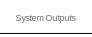
[diagram: root canvas - part 1/17, top right region]
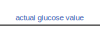
[diagram: root canvas - part 2/17, top center region]
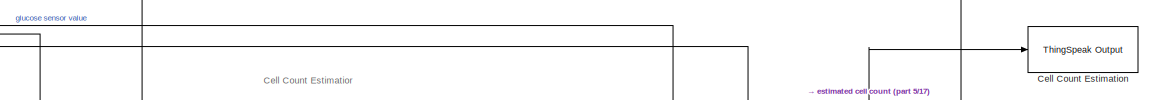
[diagram: root canvas - part 3/17, top right region]
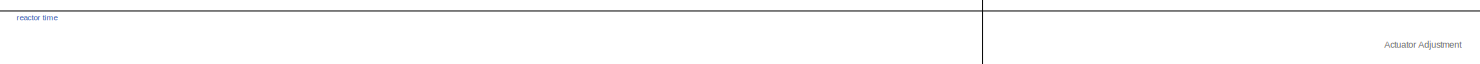
[diagram: root canvas - part 4/17, top center region]
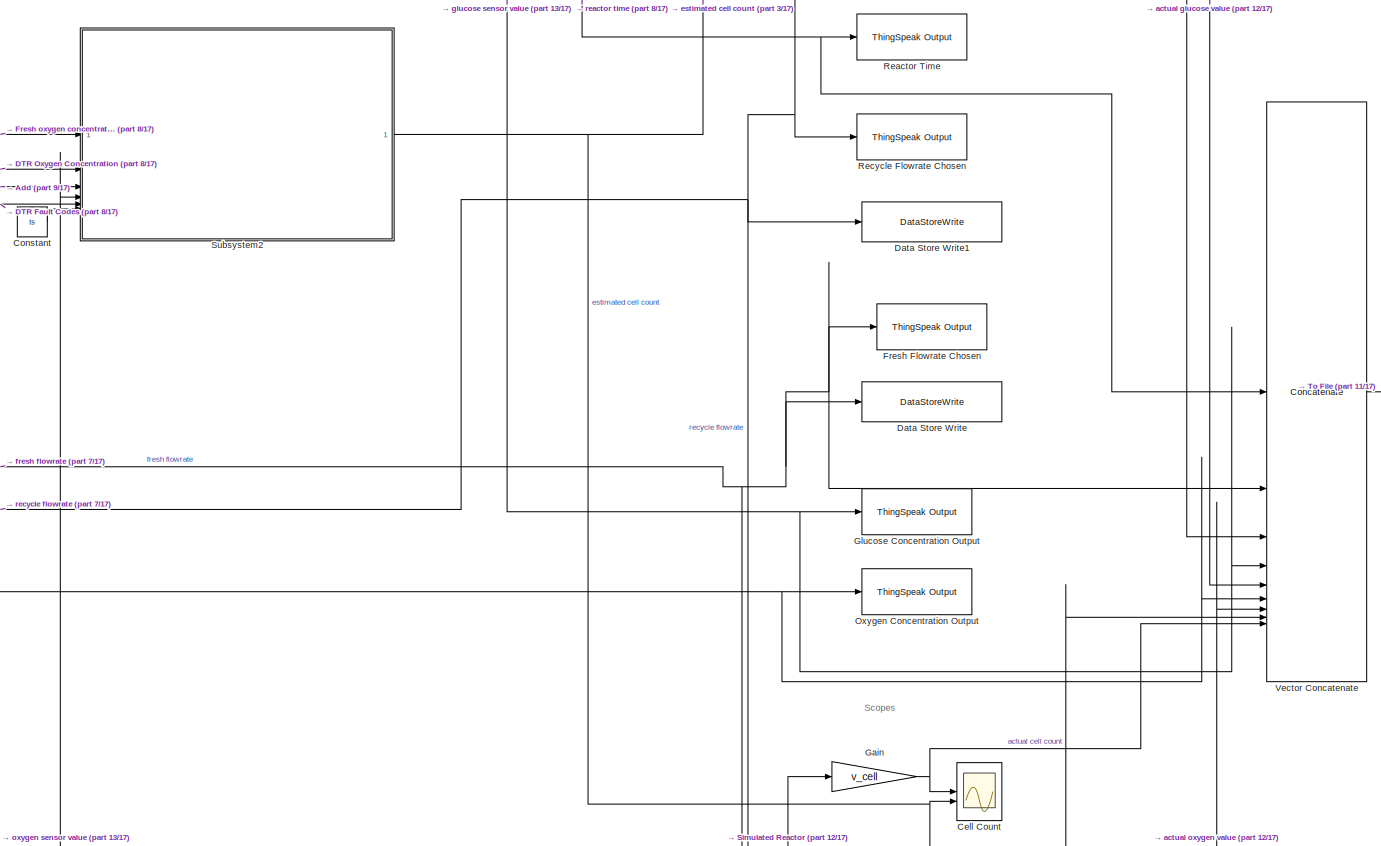
[diagram: root canvas - part 5/17, top right region]
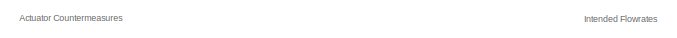
[diagram: root canvas - part 6/17, top left region]
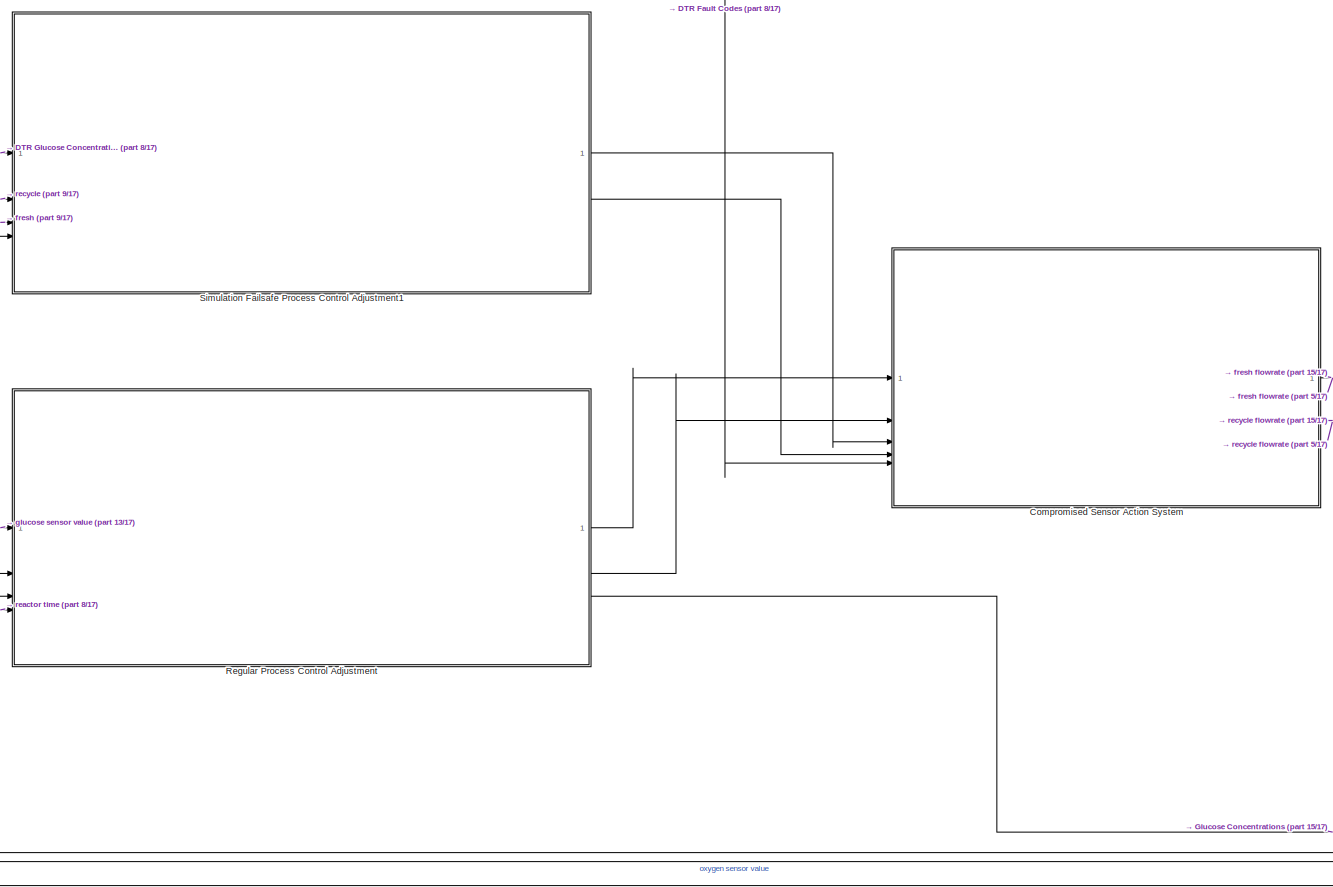
[diagram: root canvas - part 7/17, middle right region]
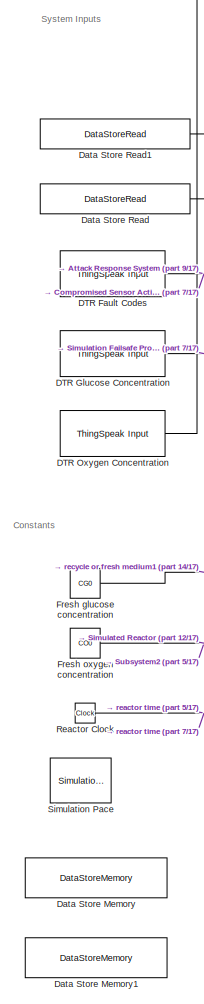
[diagram: root canvas - part 8/17, middle left region]
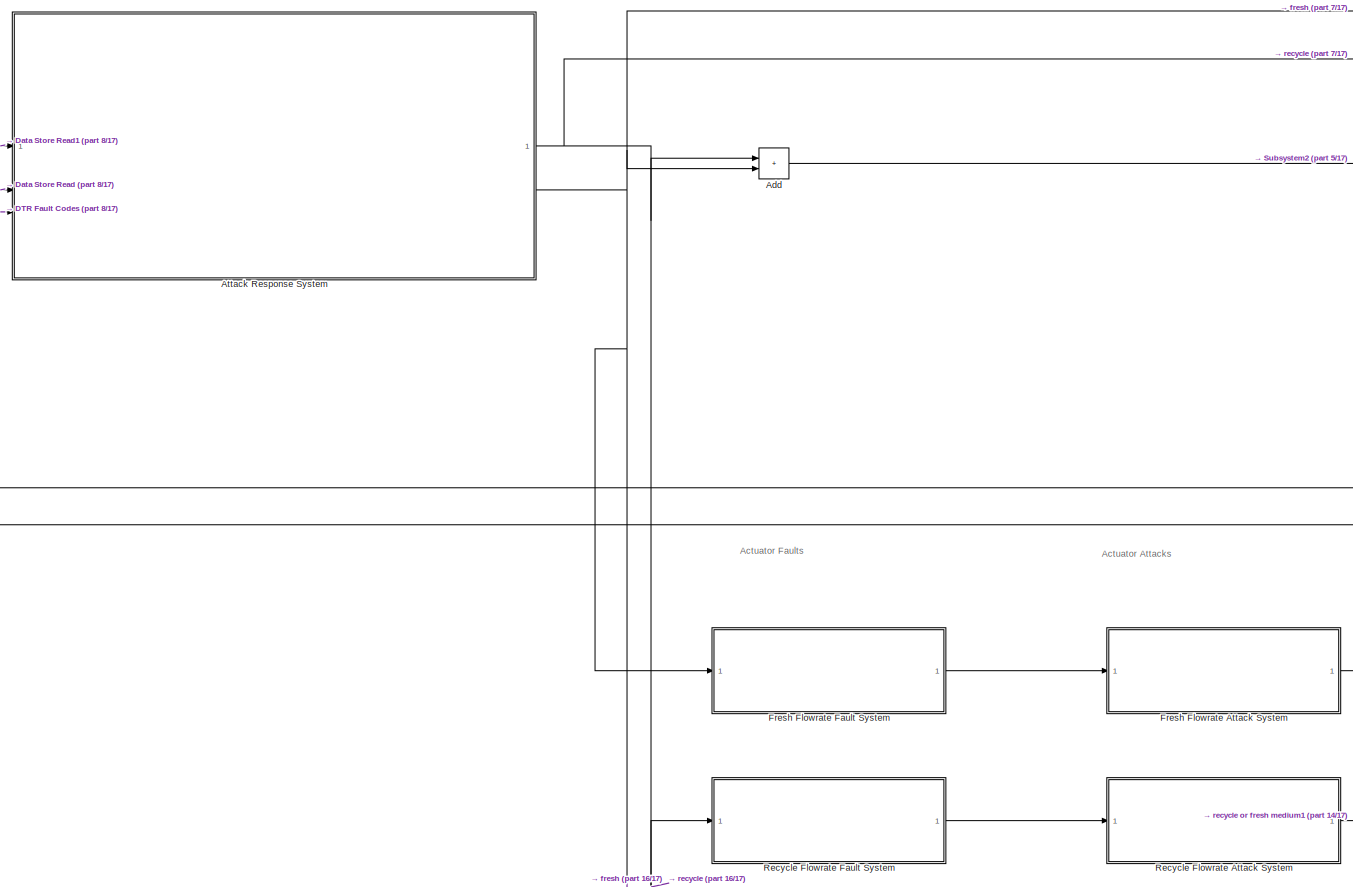
[diagram: root canvas - part 9/17, middle left region]
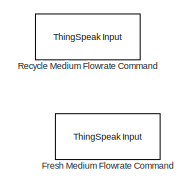
[diagram: root canvas - part 10/17, top left region]
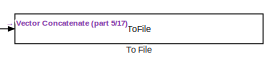
[diagram: root canvas - part 11/17, top right region]
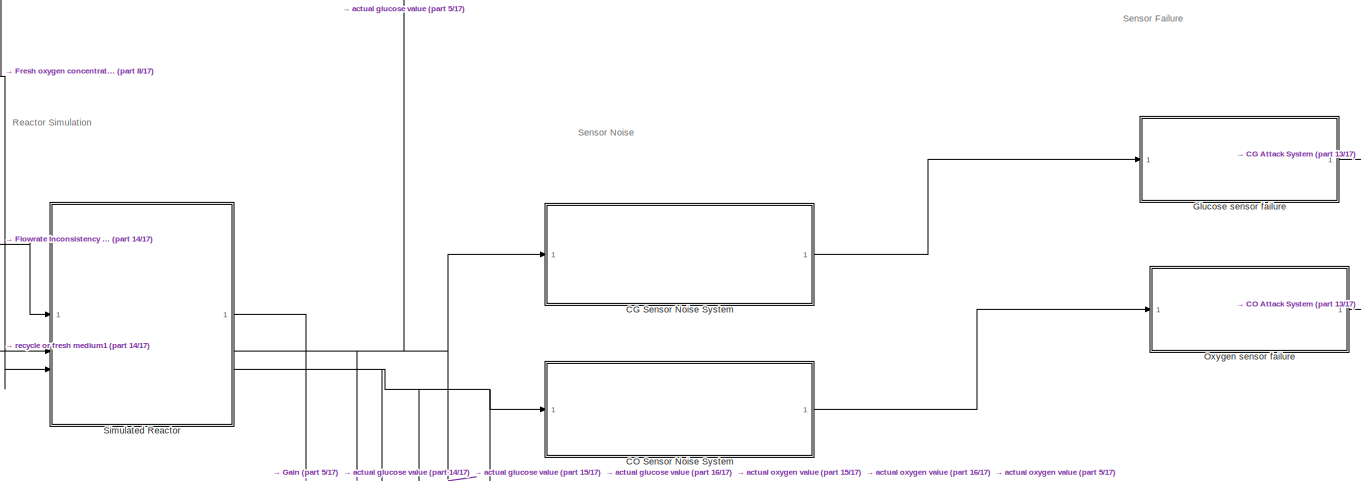
[diagram: root canvas - part 12/17, central region]
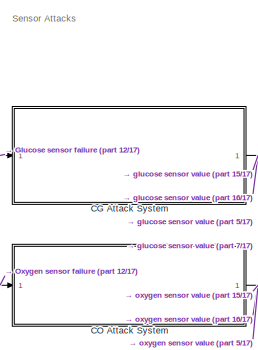
[diagram: root canvas - part 13/17, central region]
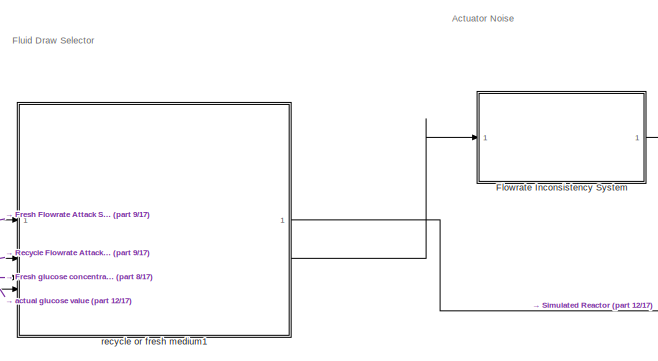
[diagram: root canvas - part 14/17, middle left region]
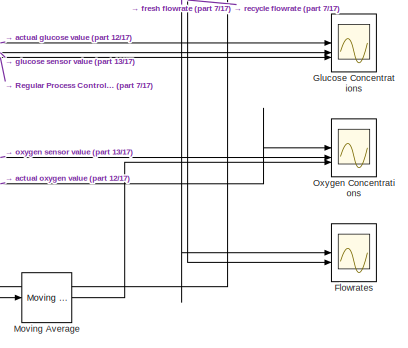
[diagram: root canvas - part 15/17, middle right region]
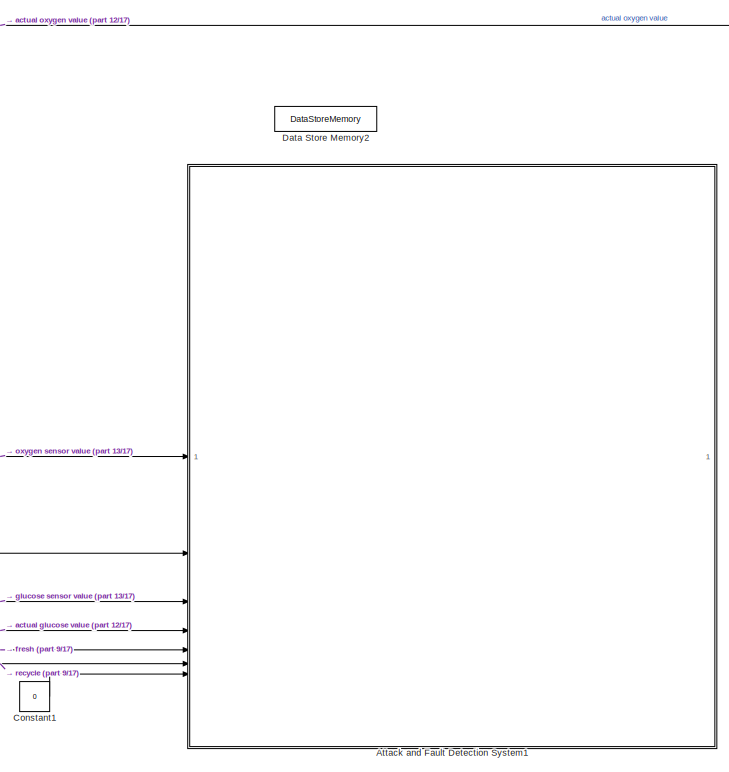
[diagram: root canvas - part 16/17, bottom center region]
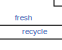
[diagram: root canvas - part 17/17, bottom center region]
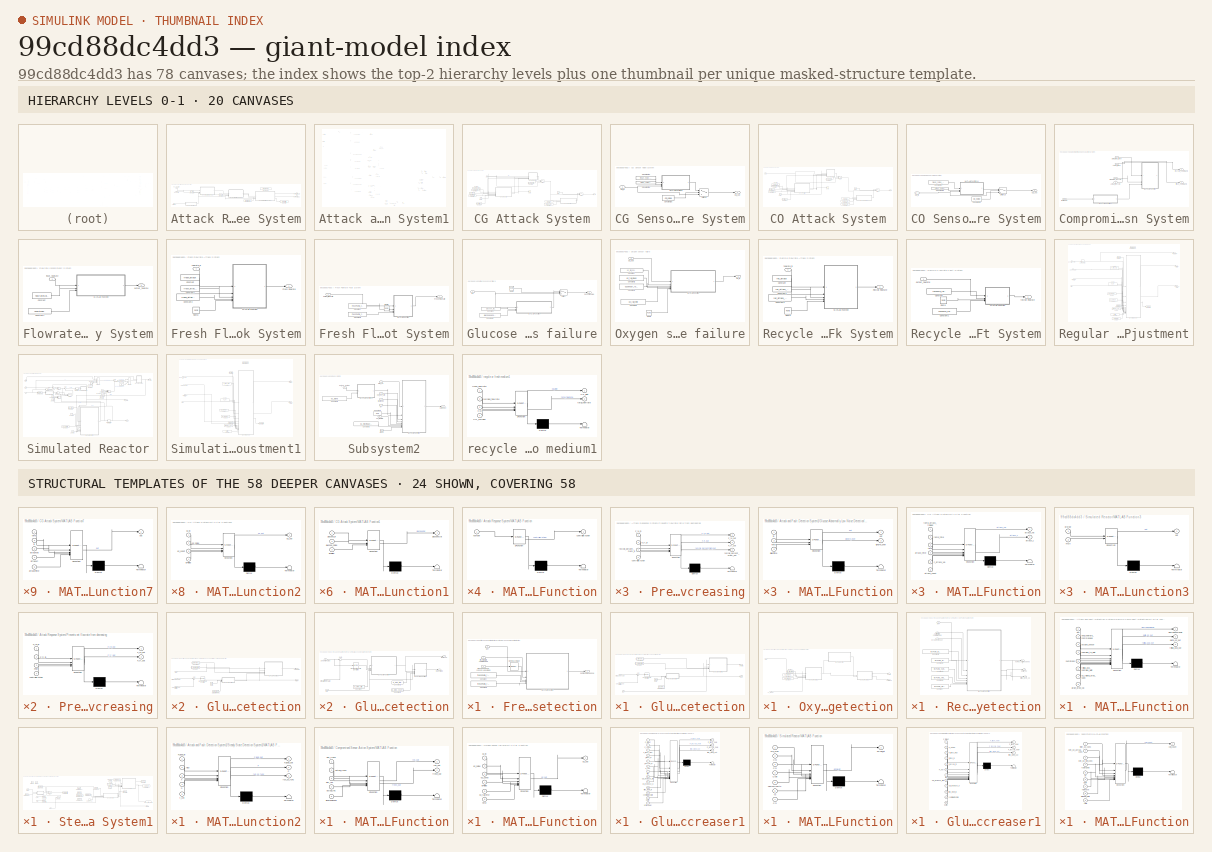
[diagram: thumbnail index - top-2 hierarchy levels (20 canvases) + 24 structural-template representatives of the remaining 58 canvases]
MODEL slx_99cd88dc4dd3
KIND model
CONFIG AbsTol = auto
CONFIG EnableMultiTasking = off
CONFIG FixedStep = ts
CONFIG MaxStep = auto
CONFIG MinStep = auto
CONFIG RelTol = 1e-3
CONFIG SampleTimeConstraint = Unconstrained
CONFIG SolverName = FixedStepAuto
CONFIG StartTime = 0.0
CONFIG StopTime = 500
BLOCK [Sum] Add
  IconShape = rectangular
BLOCK [SubSystem] Attack Response System
BLOCK [Constant] Attack Response System/Constant15
  Value = F_net
BLOCK [Constant] Attack Response System/Constant3
  Value = F_net
BLOCK [DataStoreMemory] Attack Response System/Data Store Memory
  DataStoreName = rec_perc_mem
  InitialValue = 1
  ShowAdditionalParam = off
  WriteAfterWriteMsg = warning
BLOCK [DataStoreRead] Attack Response System/Data Store Read
  DataStoreName = rec_perc_mem
  IndexOptions = Index vector (dialog)
  Indices = 1
  OutputSizes = 1
BLOCK [DataStoreWrite] Attack Response System/Data Store Write
  DataStoreName = rec_perc_mem
  IndexOptions = Index vector (dialog)
  Indices = 1
  OutputSizes = 1
BLOCK [Inport] Attack Response System/Fault Code
  Port = 3
BLOCK [Inport] Attack Response System/Fresh Flowrate
  Port = 2
BLOCK [Outport] Attack Response System/Fresh Flowrate Out
  Port = 2
BLOCK [SubSystem] Attack Response System/MATLAB Function
  ErrorFcn = Stateflow.Translate.translate
  LibrarySourceBlock = simulink/User-Defined\nFunctions/MATLAB Function
  PermitHierarchicalResolution = ExplicitOnly
  SFBlockType = MATLAB Function
  TreatAsAtomicUnit = on
BLOCK [Demux] Attack Response System/MATLAB Function/ Demux 
  Outputs = 1
BLOCK [S-Function] Attack Response System/MATLAB Function/ SFunction 
  EnableBusSupport = on
  FunctionName = sf_sfun
  PortCounts = [1 2]
  SFcnIsStateOwnerBlock = off
  SFunctionDeploymentMode = off
  Tag = Stateflow S-Function 1
BLOCK [Terminator] Attack Response System/MATLAB Function/ Terminator 
BLOCK [Outport] Attack Response System/MATLAB Function/controllerAction
BLOCK [Inport] Attack Response System/MATLAB Function/number
BLOCK [SubSystem] Attack Response System/Prevents flowrate ratio from decreasing
  ErrorFcn = Stateflow.Translate.translate
  PermitHierarchicalResolution = ExplicitOnly
  SFBlockType = MATLAB Function
  TreatAsAtomicUnit = on
BLOCK [Demux] Attack Response System/Prevents flowrate ratio from decreasing/ Demux 
  Outputs = 1
BLOCK [S-Function] Attack Response System/Prevents flowrate ratio from decreasing/ SFunction 
  EnableBusSupport = on
  FunctionName = sf_sfun
  PortCounts = [4 4]
  SFcnIsStateOwnerBlock = off
  SFunctionDeploymentMode = off
  Tag = Stateflow S-Function 12
BLOCK [Terminator] Attack Response System/Prevents flowrate ratio from decreasing/ Terminator 
BLOCK [Inport] Attack Response System/Prevents flowrate ratio from decreasing/F_fr_in
  Port = 2
BLOCK [Outport] Attack Response System/Prevents flowrate ratio from decreasing/F_fr_out
  Port = 2
BLOCK [Inport] Attack Response System/Prevents flowrate ratio from decreasing/F_re_in
BLOCK [Outport] Attack Response System/Prevents flowrate ratio from decreasing/F_re_out
BLOCK [Inport] Attack Response System/Prevents flowrate ratio from decreasing/controllerAction
  Port = 4
BLOCK [Inport] Attack Response System/Prevents flowrate ratio from decreasing/recycle_percent_mem_in
  Port = 3
BLOCK [Outport] Attack Response System/Prevents flowrate ratio from decreasing/recycle_percent_mem_out
  Port = 3
BLOCK [SubSystem] Attack Response System/Prevents net flowrate from decreasing
  ErrorFcn = Stateflow.Translate.translate
  PermitHierarchicalResolution = ExplicitOnly
  SFBlockType = MATLAB Function
  TreatAsAtomicUnit = on
BLOCK [Demux] Attack Response System/Prevents net flowrate from decreasing/ Demux 
  Outputs = 1
BLOCK [S-Function] Attack Response System/Prevents net flowrate from decreasing/ SFunction 
  EnableBusSupport = on
  FunctionName = sf_sfun
  PortCounts = [4 3]
  SFcnIsStateOwnerBlock = off
  SFunctionDeploymentMode = off
  Tag = Stateflow S-Function 9
BLOCK [Terminator] Attack Response System/Prevents net flowrate from decreasing/ Terminator 
BLOCK [Inport] Attack Response System/Prevents net flowrate from decreasing/F_fr_in
  Port = 2
BLOCK [Outport] Attack Response System/Prevents net flowrate from decreasing/F_fr_out
  Port = 2
BLOCK [Inport] Attack Response System/Prevents net flowrate from decreasing/F_re_in
BLOCK [Outport] Attack Response System/Prevents net flowrate from decreasing/F_re_out
BLOCK [Inport] Attack Response System/Prevents net flowrate from decreasing/Fnet
  Port = 3
BLOCK [Inport] Attack Response System/Prevents net flowrate from decreasing/controllerAction
  Port = 4
BLOCK [SubSystem] Attack Response System/Prevents net flowrate from increasing
  ErrorFcn = Stateflow.Translate.translate
  PermitHierarchicalResolution = ExplicitOnly
  SFBlockType = MATLAB Function
  TreatAsAtomicUnit = on
BLOCK [Demux] Attack Response System/Prevents net flowrate from increasing/ Demux 
  Outputs = 1
BLOCK [S-Function] Attack Response System/Prevents net flowrate from increasing/ SFunction 
  EnableBusSupport = on
  FunctionName = sf_sfun
  PortCounts = [4 3]
  SFcnIsStateOwnerBlock = off
  SFunctionDeploymentMode = off
  Tag = Stateflow S-Function 27
BLOCK [Terminator] Attack Response System/Prevents net flowrate from increasing/ Terminator 
BLOCK [Inport] Attack Response System/Prevents net flowrate from increasing/F_fr_in
  Port = 2
BLOCK [Outport] Attack Response System/Prevents net flowrate from increasing/F_fr_out
  Port = 2
BLOCK [Inport] Attack Response System/Prevents net flowrate from increasing/F_re_in
BLOCK [Outport] Attack Response System/Prevents net flowrate from increasing/F_re_out
BLOCK [Inport] Attack Response System/Prevents net flowrate from increasing/Fnet
  Port = 3
BLOCK [Inport] Attack Response System/Prevents net flowrate from increasing/controllerAction
  Port = 4
BLOCK [Inport] Attack Response System/Recycle Flowrate
BLOCK [Outport] Attack Response System/Recycle Flowrate Out
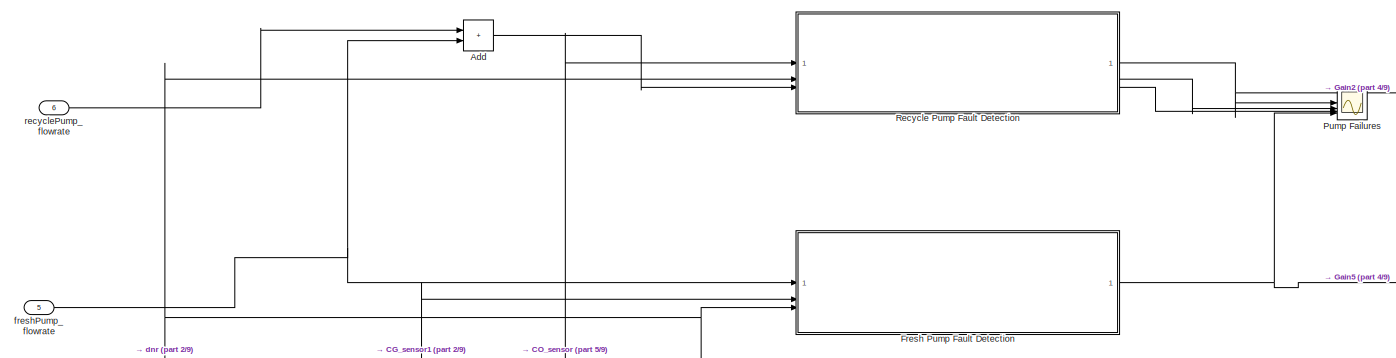
[diagram: Attack and Fault Detection System1 - part 1/9, top left region]
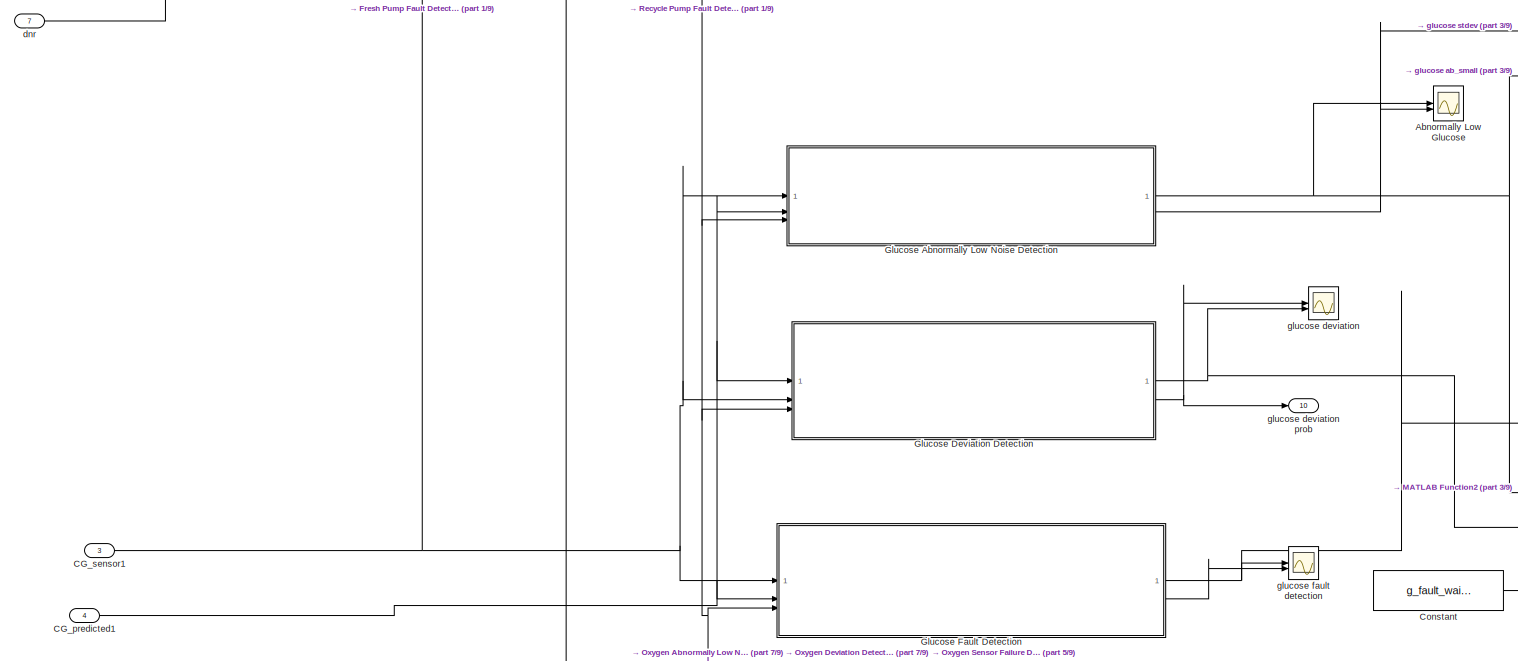
[diagram: Attack and Fault Detection System1 - part 2/9, middle left region]
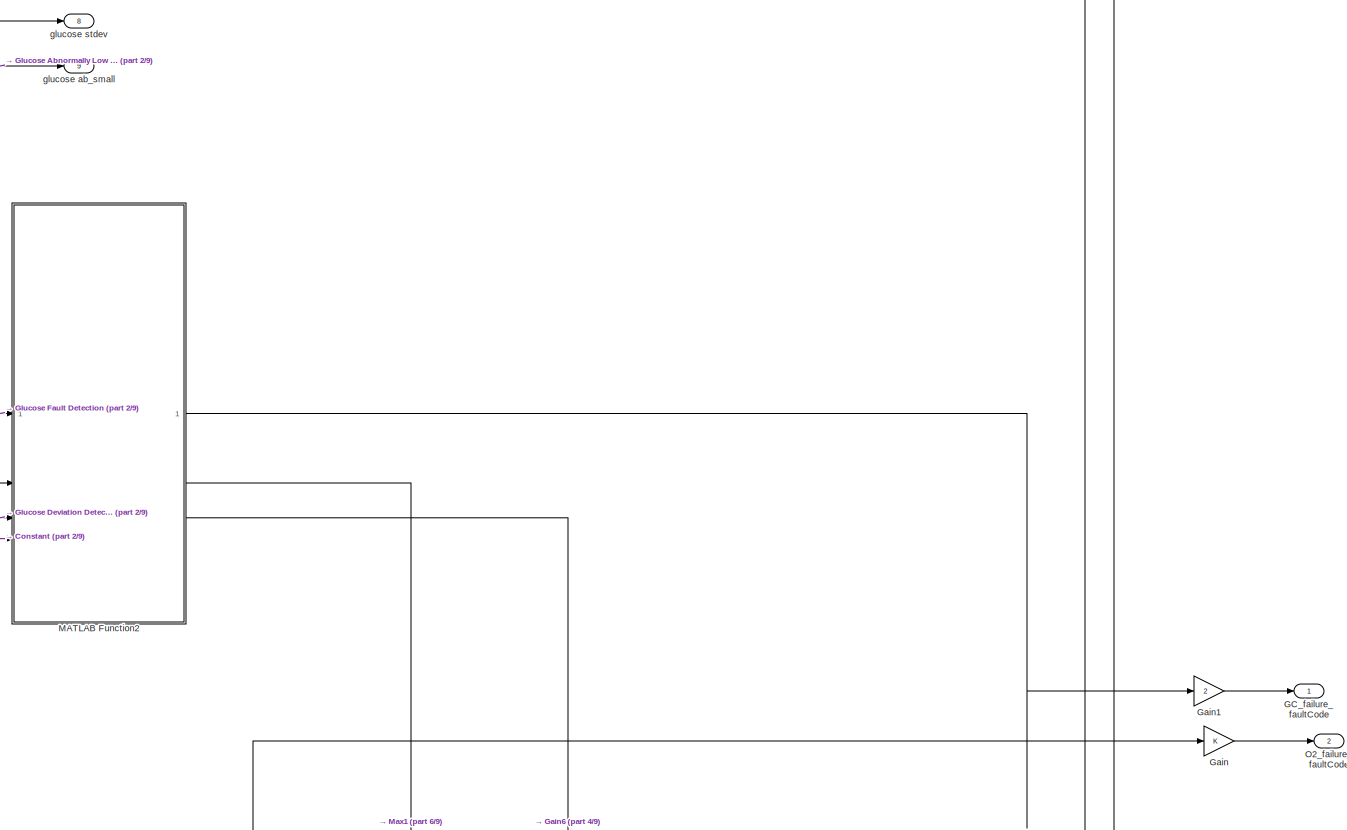
[diagram: Attack and Fault Detection System1 - part 3/9, central region]
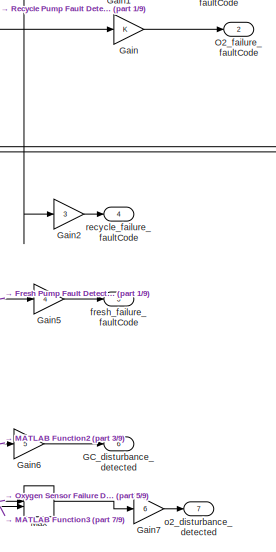
[diagram: Attack and Fault Detection System1 - part 4/9, bottom right region]
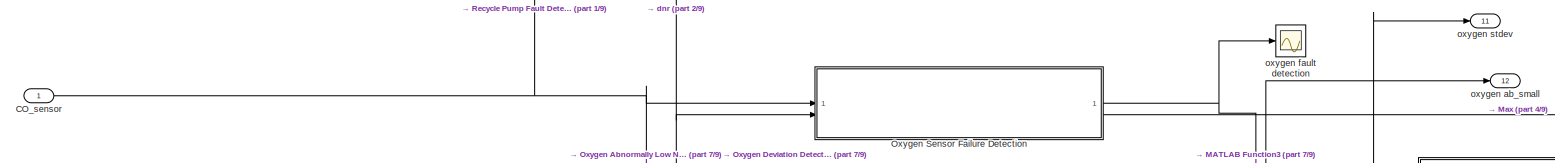
[diagram: Attack and Fault Detection System1 - part 5/9, middle left region]
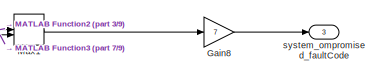
[diagram: Attack and Fault Detection System1 - part 6/9, middle right region]
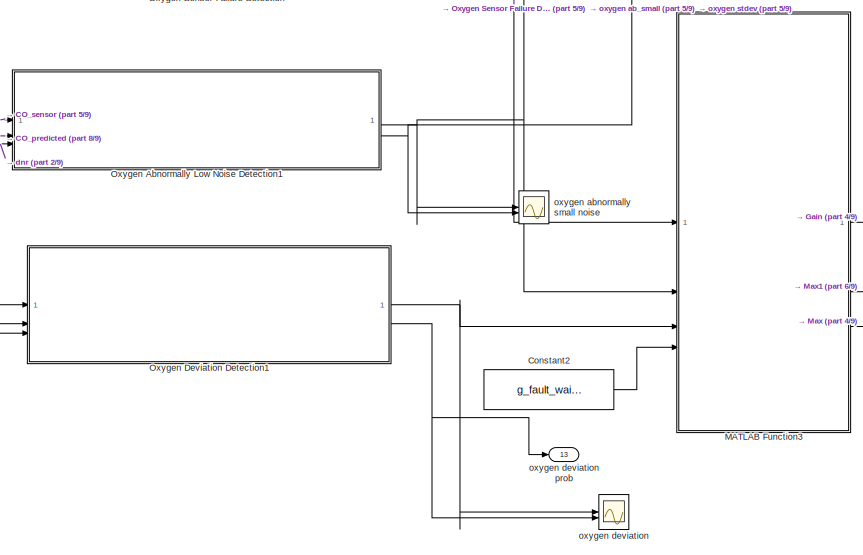
[diagram: Attack and Fault Detection System1 - part 7/9, bottom center region]
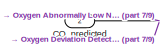
[diagram: Attack and Fault Detection System1 - part 8/9, bottom left region]
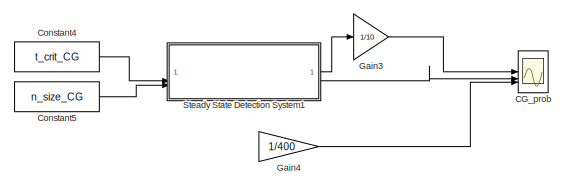
[diagram: Attack and Fault Detection System1 - part 9/9, bottom center region]
BLOCK [SubSystem] Attack and Fault Detection System1
BLOCK [Scope] Attack and Fault Detection System1/Abnormally Low Glucose
  Floating = off
  NumInputPorts = 2
  ScopeSpecificationString = Simulink.scopes.TimeScopeBlockCfg('CurrentConfiguration', extmgr.ConfigurationSet(extmgr.Configuration('Core','General UI',true),extmgr.Configuration('Core','Source UI',true),extmgr.Configuration('Sources','WiredSimulink',true,'DataLoggingVariableName','ScopeData1'),extmgr.Configuration('Visuals','Time Domain',true,'SerializedDisplays',{struct('MinYLimReal','-0.1147','MaxYLimReal','6.68184','YLabe...<+1551ch>
BLOCK [Sum] Attack and Fault Detection System1/Add
  IconShape = rectangular
BLOCK [Inport] Attack and Fault Detection System1/CG_predicted1
  Port = 4
BLOCK [Scope] Attack and Fault Detection System1/CG_prob
  Commented = on
  Floating = off
  NumInputPorts = 3
  ScopeSpecificationString = Simulink.scopes.TimeScopeBlockCfg('CurrentConfiguration', extmgr.ConfigurationSet(extmgr.Configuration('Core','General UI',true),extmgr.Configuration('Core','Source UI',true),extmgr.Configuration('Sources','WiredSimulink',true,'DataLoggingVariableName','ScopeData3'),extmgr.Configuration('Visuals','Time Domain',true,'SerializedDisplays',{struct('MinYLimReal','-0.16191','MaxYLimReal','1.45722','YLab...<+1505ch>
BLOCK [Inport] Attack and Fault Detection System1/CG_sensor1
  Port = 3
BLOCK [Inport] Attack and Fault Detection System1/CO_predicted
  Port = 2
BLOCK [Inport] Attack and Fault Detection System1/CO_sensor
BLOCK [Constant] Attack and Fault Detection System1/Constant
  Value = g_fault_wait_time
BLOCK [Constant] Attack and Fault Detection System1/Constant2
  Value = g_fault_wait_time
BLOCK [Constant] Attack and Fault Detection System1/Constant4
  Commented = on
  Value = t_crit_CG
BLOCK [Constant] Attack and Fault Detection System1/Constant5
  Commented = on
  Value = n_size_CG
BLOCK [SubSystem] Attack and Fault Detection System1/Fresh Pump Fault Detection
BLOCK [Constant] Attack and Fault Detection System1/Fresh Pump Fault Detection/Constant
  Value = freshPump_response_window
BLOCK [Constant] Attack and Fault Detection System1/Fresh Pump Fault Detection/Constant1
  Value = freshPump_response_increases
BLOCK [SubSystem] Attack and Fault Detection System1/Fresh Pump Fault Detection/MATLAB Function
  ErrorFcn = Stateflow.Translate.translate
  LibrarySourceBlock = simulink/User-Defined\nFunctions/MATLAB Function
  PermitHierarchicalResolution = ExplicitOnly
  SFBlockType = MATLAB Function
  TreatAsAtomicUnit = on
BLOCK [Demux] Attack and Fault Detection System1/Fresh Pump Fault Detection/MATLAB Function/ Demux 
  Outputs = 1
BLOCK [S-Function] Attack and Fault Detection System1/Fresh Pump Fault Detection/MATLAB Function/ SFunction 
  EnableBusSupport = on
  FunctionName = sf_sfun
  PortCounts = [5 2]
  SFcnIsStateOwnerBlock = off
  SFunctionDeploymentMode = off
  Tag = Stateflow S-Function 54
BLOCK [Terminator] Attack and Fault Detection System1/Fresh Pump Fault Detection/MATLAB Function/ Terminator 
BLOCK [Inport] Attack and Fault Detection System1/Fresh Pump Fault Detection/MATLAB Function/dnr
BLOCK [Inport] Attack and Fault Detection System1/Fresh Pump Fault Detection/MATLAB Function/flowrate_commanded
  Port = 2
BLOCK [Outport] Attack and Fault Detection System1/Fresh Pump Fault Detection/MATLAB Function/freshPumpFail
BLOCK [Inport] Attack and Fault Detection System1/Fresh Pump Fault Detection/MATLAB Function/glucose_sensor
  Port = 3
BLOCK [Inport] Attack and Fault Detection System1/Fresh Pump Fault Detection/MATLAB Function/samples_increase_in_window
  Port = 5
BLOCK [Inport] Attack and Fault Detection System1/Fresh Pump Fault Detection/MATLAB Function/samples_to_wait
  Port = 4
BLOCK [Reference] Attack and Fault Detection System1/Fresh Pump Fault Detection/Moving Average  REF=dspstat3/Moving
Average
  SourceBlock = dspstat3/Moving\nAverage
  SourceType = dsp.simulink.MovingAverage
BLOCK [Inport] Attack and Fault Detection System1/Fresh Pump Fault Detection/dnr
  Port = 3
BLOCK [Inport] Attack and Fault Detection System1/Fresh Pump Fault Detection/fresh flowrate commanded
BLOCK [Inport] Attack and Fault Detection System1/Fresh Pump Fault Detection/glucose sensor concentration rolling average
  Port = 2
BLOCK [Outport] Attack and Fault Detection System1/Fresh Pump Fault Detection/noFreshResponse
BLOCK [Outport] Attack and Fault Detection System1/GC_disturbance_detected
  Port = 6
BLOCK [Outport] Attack and Fault Detection System1/GC_failure_faultCode
BLOCK [Gain] Attack and Fault Detection System1/Gain
BLOCK [Gain] Attack and Fault Detection System1/Gain1
  Gain = 2
BLOCK [Gain] Attack and Fault Detection System1/Gain2
  Gain = 3
BLOCK [Gain] Attack and Fault Detection System1/Gain3
  Commented = on
  Gain = 1/10
BLOCK [Gain] Attack and Fault Detection System1/Gain4
  Commented = on
  Gain = 1/400
BLOCK [Gain] Attack and Fault Detection System1/Gain5
  Gain = 4
BLOCK [Gain] Attack and Fault Detection System1/Gain6
  Gain = 5
BLOCK [Gain] Attack and Fault Detection System1/Gain7
  Gain = 6
BLOCK [Gain] Attack and Fault Detection System1/Gain8
  Gain = 7
BLOCK [SubSystem] Attack and Fault Detection System1/Glucose Abnormally Low Noise Detection
BLOCK [Constant] Attack and Fault Detection System1/Glucose Abnormally Low Noise Detection/Constant6
  Value = g_lownoise_val
BLOCK [Constant] Attack and Fault Detection System1/Glucose Abnormally Low Noise Detection/Constant7
  Value = g_numpoints_low
BLOCK [DataStoreRead] Attack and Fault Detection System1/Glucose Abnormally Low Noise Detection/Data Store Read
  DataStoreName = aliveTime
  IndexOptions = Index vector (dialog)
  Indices = 1
  OutputSizes = 1
BLOCK [SubSystem] Attack and Fault Detection System1/Glucose Abnormally Low Noise Detection/MATLAB Function
  ErrorFcn = Stateflow.Translate.translate
  LibrarySourceBlock = simulink/User-Defined\nFunctions/MATLAB Function
  PermitHierarchicalResolution = ExplicitOnly
  SFBlockType = MATLAB Function
  TreatAsAtomicUnit = on
BLOCK [Demux] Attack and Fault Detection System1/Glucose Abnormally Low Noise Detection/MATLAB Function/ Demux 
  Outputs = 1
BLOCK [S-Function] Attack and Fault Detection System1/Glucose Abnormally Low Noise Detection/MATLAB Function/ SFunction 
  EnableBusSupport = on
  FunctionName = sf_sfun
  PortCounts = [3 3]
  SFcnIsStateOwnerBlock = off
  SFunctionDeploymentMode = off
  Tag = Stateflow S-Function 55
BLOCK [Terminator] Attack and Fault Detection System1/Glucose Abnormally Low Noise Detection/MATLAB Function/ Terminator 
BLOCK [Inport] Attack and Fault Detection System1/Glucose Abnormally Low Noise Detection/MATLAB Function/aliveTime
  Port = 3
BLOCK [Outport] Attack and Fault Detection System1/Glucose Abnormally Low Noise Detection/MATLAB Function/ignore_over
  Port = 2
BLOCK [Inport] Attack and Fault Detection System1/Glucose Abnormally Low Noise Detection/MATLAB Function/in
BLOCK [Outport] Attack and Fault Detection System1/Glucose Abnormally Low Noise Detection/MATLAB Function/out
BLOCK [Inport] Attack and Fault Detection System1/Glucose Abnormally Low Noise Detection/MATLAB Function/time
  Port = 2
BLOCK [SubSystem] Attack and Fault Detection System1/Glucose Abnormally Low Noise Detection/MATLAB Function3
  ErrorFcn = Stateflow.Translate.translate
  PermitHierarchicalResolution = ExplicitOnly
  SFBlockType = MATLAB Function
  TreatAsAtomicUnit = on
BLOCK [Demux] Attack and Fault Detection System1/Glucose Abnormally Low Noise Detection/MATLAB Function3/ Demux 
  Outputs = 1
BLOCK [S-Function] Attack and Fault Detection System1/Glucose Abnormally Low Noise Detection/MATLAB Function3/ SFunction 
  EnableBusSupport = on
  FunctionName = sf_sfun
  PortCounts = [5 2]
  SFcnIsStateOwnerBlock = off
  SFunctionDeploymentMode = off
  Tag = Stateflow S-Function 56
BLOCK [Terminator] Attack and Fault Detection System1/Glucose Abnormally Low Noise Detection/MATLAB Function3/ Terminator 
BLOCK [Inport] Attack and Fault Detection System1/Glucose Abnormally Low Noise Detection/MATLAB Function3/dnr
BLOCK [Inport] Attack and Fault Detection System1/Glucose Abnormally Low Noise Detection/MATLAB Function3/ignore_over
  Port = 5
BLOCK [Outport] Attack and Fault Detection System1/Glucose Abnormally Low Noise Detection/MATLAB Function3/noiseSmall
BLOCK [Inport] Attack and Fault Detection System1/Glucose Abnormally Low Noise Detection/MATLAB Function3/num_points
  Port = 4
BLOCK [Inport] Attack and Fault Detection System1/Glucose Abnormally Low Noise Detection/MATLAB Function3/stdev_sensor
  Port = 2
BLOCK [Inport] Attack and Fault Detection System1/Glucose Abnormally Low Noise Detection/MATLAB Function3/stdev_tol
  Port = 3
BLOCK [Reference] Attack and Fault Detection System1/Glucose Abnormally Low Noise Detection/Moving Standard Deviation  REF=dspstat3/Moving
Standard
Deviation
  SourceBlock = dspstat3/Moving\nStandard\nDeviation
  SourceType = dsp.simulink.MovingStandardDeviation
BLOCK [Reference] Attack and Fault Detection System1/Glucose Abnormally Low Noise Detection/Ramp  REF=simulink/Sources/Ramp
  SourceBlock = simulink/Sources/Ramp
  SourceType = Ramp
BLOCK [Sum] Attack and Fault Detection System1/Glucose Abnormally Low Noise Detection/Sum
  Inputs = |+-
BLOCK [Inport] Attack and Fault Detection System1/Glucose Abnormally Low Noise Detection/dnr
  Port = 3
BLOCK [Outport] Attack and Fault Detection System1/Glucose Abnormally Low Noise Detection/noiseSmall
BLOCK [Inport] Attack and Fault Detection System1/Glucose Abnormally Low Noise Detection/sensor glucose value
BLOCK [Inport] Attack and Fault Detection System1/Glucose Abnormally Low Noise Detection/sim glucose value
  Port = 2
BLOCK [Outport] Attack and Fault Detection System1/Glucose Abnormally Low Noise Detection/stdev
  Port = 2
BLOCK [SubSystem] Attack and Fault Detection System1/Glucose Deviation Detection
BLOCK [Constant] Attack and Fault Detection System1/Glucose Deviation Detection/Constant
  Value = g_prob_arraylen
BLOCK [Constant] Attack and Fault Detection System1/Glucose Deviation Detection/Constant1
  Value = g_prob_thresh
BLOCK [Constant] Attack and Fault Detection System1/Glucose Deviation Detection/Constant2
  Value = g_prob_count
BLOCK [SubSystem] Attack and Fault Detection System1/Glucose Deviation Detection/MATLAB Function
  ErrorFcn = Stateflow.Translate.translate
  LibrarySourceBlock = simulink/User-Defined\nFunctions/MATLAB Function
  PermitHierarchicalResolution = ExplicitOnly
  SFBlockType = MATLAB Function
  TreatAsAtomicUnit = on
BLOCK [Demux] Attack and Fault Detection System1/Glucose Deviation Detection/MATLAB Function/ Demux 
  Outputs = 1
BLOCK [S-Function] Attack and Fault Detection System1/Glucose Deviation Detection/MATLAB Function/ SFunction 
  EnableBusSupport = on
  FunctionName = sf_sfun
  PortCounts = [4 2]
  SFcnIsStateOwnerBlock = off
  SFunctionDeploymentMode = off
  Tag = Stateflow S-Function 57
BLOCK [Terminator] Attack and Fault Detection System1/Glucose Deviation Detection/MATLAB Function/ Terminator 
BLOCK [Inport] Attack and Fault Detection System1/Glucose Deviation Detection/MATLAB Function/dnr
BLOCK [Inport] Attack and Fault Detection System1/Glucose Deviation Detection/MATLAB Function/g_prob_arraylen
  Port = 4
BLOCK [Outport] Attack and Fault Detection System1/Glucose Deviation Detection/MATLAB Function/likelihood
BLOCK [Inport] Attack and Fault Detection System1/Glucose Deviation Detection/MATLAB Function/new_sens_value
  Port = 2
BLOCK [Inport] Attack and Fault Detection System1/Glucose Deviation Detection/MATLAB Function/std_dev
  Port = 3
BLOCK [SubSystem] Attack and Fault Detection System1/Glucose Deviation Detection/MATLAB Function1
  ErrorFcn = Stateflow.Translate.translate
  LibrarySourceBlock = simulink/User-Defined\nFunctions/MATLAB Function
  PermitHierarchicalResolution = ExplicitOnly
  SFBlockType = MATLAB Function
  TreatAsAtomicUnit = on
BLOCK [Demux] Attack and Fault Detection System1/Glucose Deviation Detection/MATLAB Function1/ Demux 
  Outputs = 1
BLOCK [S-Function] Attack and Fault Detection System1/Glucose Deviation Detection/MATLAB Function1/ SFunction 
  EnableBusSupport = on
  FunctionName = sf_sfun
  PortCounts = [4 2]
  SFcnIsStateOwnerBlock = off
  SFunctionDeploymentMode = off
  Tag = Stateflow S-Function 58
BLOCK [Terminator] Attack and Fault Detection System1/Glucose Deviation Detection/MATLAB Function1/ Terminator 
BLOCK [Inport] Attack and Fault Detection System1/Glucose Deviation Detection/MATLAB Function1/dnr
BLOCK [Outport] Attack and Fault Detection System1/Glucose Deviation Detection/MATLAB Function1/isDeviated
BLOCK [Inport] Attack and Fault Detection System1/Glucose Deviation Detection/MATLAB Function1/prob
  Port = 2
BLOCK [Inport] Attack and Fault Detection System1/Glucose Deviation Detection/MATLAB Function1/thresh
  Port = 3
BLOCK [Inport] Attack and Fault Detection System1/Glucose Deviation Detection/MATLAB Function1/thresh_count
  Port = 4
BLOCK [Reference] Attack and Fault Detection System1/Glucose Deviation Detection/Moving Standard Deviation  REF=dspstat3/Moving
Standard
Deviation
  SourceBlock = dspstat3/Moving\nStandard\nDeviation
  SourceType = dsp.simulink.MovingStandardDeviation
BLOCK [Inport] Attack and Fault Detection System1/Glucose Deviation Detection/Sensor g value
  Port = 2
BLOCK [Inport] Attack and Fault Detection System1/Glucose Deviation Detection/Simulated g value
BLOCK [Sum] Attack and Fault Detection System1/Glucose Deviation Detection/Sum
  Inputs = |+-
BLOCK [Inport] Attack and Fault Detection System1/Glucose Deviation Detection/dnr
  Port = 3
BLOCK [Outport] Attack and Fault Detection System1/Glucose Deviation Detection/isDeviated
BLOCK [Outport] Attack and Fault Detection System1/Glucose Deviation Detection/likelihood
  Port = 2
BLOCK [SubSystem] Attack and Fault Detection System1/Glucose Fault Detection
BLOCK [Constant] Attack and Fault Detection System1/Glucose Fault Detection/Constant6
  Value = g_standev_tol
BLOCK [Constant] Attack and Fault Detection System1/Glucose Fault Detection/Constant7
  Value = g_numpoints_fail
BLOCK [DataStoreRead] Attack and Fault Detection System1/Glucose Fault Detection/Data Store Read
  DataStoreName = aliveTime
  IndexOptions = Index vector (dialog)
  Indices = 1
  OutputSizes = 1
BLOCK [SubSystem] Attack and Fault Detection System1/Glucose Fault Detection/MATLAB Function
  ErrorFcn = Stateflow.Translate.translate
  LibrarySourceBlock = simulink/User-Defined\nFunctions/MATLAB Function
  PermitHierarchicalResolution = ExplicitOnly
  SFBlockType = MATLAB Function
  TreatAsAtomicUnit = on
BLOCK [Demux] Attack and Fault Detection System1/Glucose Fault Detection/MATLAB Function/ Demux 
  Outputs = 1
BLOCK [S-Function] Attack and Fault Detection System1/Glucose Fault Detection/MATLAB Function/ SFunction 
  EnableBusSupport = on
  FunctionName = sf_sfun
  PortCounts = [3 2]
  SFcnIsStateOwnerBlock = off
  SFunctionDeploymentMode = off
  Tag = Stateflow S-Function 59
BLOCK [Terminator] Attack and Fault Detection System1/Glucose Fault Detection/MATLAB Function/ Terminator 
BLOCK [Inport] Attack and Fault Detection System1/Glucose Fault Detection/MATLAB Function/aliveTime
  Port = 3
BLOCK [Inport] Attack and Fault Detection System1/Glucose Fault Detection/MATLAB Function/in
BLOCK [Outport] Attack and Fault Detection System1/Glucose Fault Detection/MATLAB Function/out
BLOCK [Inport] Attack and Fault Detection System1/Glucose Fault Detection/MATLAB Function/time
  Port = 2
BLOCK [SubSystem] Attack and Fault Detection System1/Glucose Fault Detection/MATLAB Function3
  ErrorFcn = Stateflow.Translate.translate
  PermitHierarchicalResolution = ExplicitOnly
  SFBlockType = MATLAB Function
  TreatAsAtomicUnit = on
BLOCK [Demux] Attack and Fault Detection System1/Glucose Fault Detection/MATLAB Function3/ Demux 
  Outputs = 1
BLOCK [S-Function] Attack and Fault Detection System1/Glucose Fault Detection/MATLAB Function3/ SFunction 
  EnableBusSupport = on
  FunctionName = sf_sfun
  PortCounts = [4 2]
  SFcnIsStateOwnerBlock = off
  SFunctionDeploymentMode = off
  Tag = Stateflow S-Function 60
BLOCK [Terminator] Attack and Fault Detection System1/Glucose Fault Detection/MATLAB Function3/ Terminator 
BLOCK [Inport] Attack and Fault Detection System1/Glucose Fault Detection/MATLAB Function3/dnr
BLOCK [Outport] Attack and Fault Detection System1/Glucose Fault Detection/MATLAB Function3/isFailed
BLOCK [Inport] Attack and Fault Detection System1/Glucose Fault Detection/MATLAB Function3/num_points
  Port = 4
BLOCK [Inport] Attack and Fault Detection System1/Glucose Fault Detection/MATLAB Function3/stdev_sensor
  Port = 2
BLOCK [Inport] Attack and Fault Detection System1/Glucose Fault Detection/MATLAB Function3/stdev_tol
  Port = 3
BLOCK [Reference] Attack and Fault Detection System1/Glucose Fault Detection/Moving Standard Deviation  REF=dspstat3/Moving
Standard
Deviation
  SourceBlock = dspstat3/Moving\nStandard\nDeviation
  SourceType = dsp.simulink.MovingStandardDeviation
BLOCK [Reference] Attack and Fault Detection System1/Glucose Fault Detection/Ramp  REF=simulink/Sources/Ramp
  SourceBlock = simulink/Sources/Ramp
  SourceType = Ramp
BLOCK [Sum] Attack and Fault Detection System1/Glucose Fault Detection/Sum
  Inputs = |+-
BLOCK [Inport] Attack and Fault Detection System1/Glucose Fault Detection/dnr
  Port = 3
BLOCK [Outport] Attack and Fault Detection System1/Glucose Fault Detection/isFailed
BLOCK [Inport] Attack and Fault Detection System1/Glucose Fault Detection/sensor glucose value
BLOCK [Inport] Attack and Fault Detection System1/Glucose Fault Detection/sim glucose value
  Port = 2
BLOCK [Outport] Attack and Fault Detection System1/Glucose Fault Detection/stdev
  Port = 2
BLOCK [SubSystem] Attack and Fault Detection System1/MATLAB Function2
  ErrorFcn = Stateflow.Translate.translate
  LibrarySourceBlock = simulink/User-Defined\nFunctions/MATLAB Function
  PermitHierarchicalResolution = ExplicitOnly
  SFBlockType = MATLAB Function
  TreatAsAtomicUnit = on
BLOCK [Demux] Attack and Fault Detection System1/MATLAB Function2/ Demux 
  Outputs = 1
BLOCK [S-Function] Attack and Fault Detection System1/MATLAB Function2/ SFunction 
  EnableBusSupport = on
  FunctionName = sf_sfun
  PortCounts = [4 4]
  SFcnIsStateOwnerBlock = off
  SFunctionDeploymentMode = off
  Tag = Stateflow S-Function 61
BLOCK [Terminator] Attack and Fault Detection System1/MATLAB Function2/ Terminator 
BLOCK [Outport] Attack and Fault Detection System1/MATLAB Function2/glucoseAttacked
  Port = 2
BLOCK [Outport] Attack and Fault Detection System1/MATLAB Function2/glucoseFault
BLOCK [Inport] Attack and Fault Detection System1/MATLAB Function2/isDeviated
  Port = 3
BLOCK [Inport] Attack and Fault Detection System1/MATLAB Function2/isFailed
BLOCK [Inport] Attack and Fault Detection System1/MATLAB Function2/noise_small
  Port = 2
BLOCK [Outport] Attack and Fault Detection System1/MATLAB Function2/potentialFault
  Port = 3
BLOCK [Inport] Attack and Fault Detection System1/MATLAB Function2/waitAfterFirst
  Port = 4
BLOCK [SubSystem] Attack and Fault Detection System1/MATLAB Function3
  ErrorFcn = Stateflow.Translate.translate
  LibrarySourceBlock = simulink/User-Defined\nFunctions/MATLAB Function
  PermitHierarchicalResolution = ExplicitOnly
  SFBlockType = MATLAB Function
  TreatAsAtomicUnit = on
BLOCK [Demux] Attack and Fault Detection System1/MATLAB Function3/ Demux 
  Outputs = 1
BLOCK [S-Function] Attack and Fault Detection System1/MATLAB Function3/ SFunction 
  EnableBusSupport = on
  FunctionName = sf_sfun
  PortCounts = [4 4]
  SFcnIsStateOwnerBlock = off
  SFunctionDeploymentMode = off
  Tag = Stateflow S-Function 62
BLOCK [Terminator] Attack and Fault Detection System1/MATLAB Function3/ Terminator 
BLOCK [Inport] Attack and Fault Detection System1/MATLAB Function3/isDeviated
  Port = 3
BLOCK [Inport] Attack and Fault Detection System1/MATLAB Function3/isFailed
BLOCK [Inport] Attack and Fault Detection System1/MATLAB Function3/noise_small
  Port = 2
BLOCK [Outport] Attack and Fault Detection System1/MATLAB Function3/oxygenAttacked
  Port = 2
BLOCK [Outport] Attack and Fault Detection System1/MATLAB Function3/oxygenFault
BLOCK [Outport] Attack and Fault Detection System1/MATLAB Function3/potentialFault
  Port = 3
BLOCK [Inport] Attack and Fault Detection System1/MATLAB Function3/waitAfterFirst
  Port = 4
BLOCK [MinMax] Attack and Fault Detection System1/Max
  Function = max
  Inputs = 2
BLOCK [MinMax] Attack and Fault Detection System1/Max1
  Function = max
  Inputs = 2
BLOCK [Outport] Attack and Fault Detection System1/O2_failure_faultCode
  Port = 2
BLOCK [SubSystem] Attack and Fault Detection System1/Oxygen Abnormally Low Noise Detection1
BLOCK [Constant] Attack and Fault Detection System1/Oxygen Abnormally Low Noise Detection1/Constant6
  Value = o2_lownoise_val
BLOCK [Constant] Attack and Fault Detection System1/Oxygen Abnormally Low Noise Detection1/Constant7
  Value = o2_numpoints_low
BLOCK [DataStoreRead] Attack and Fault Detection System1/Oxygen Abnormally Low Noise Detection1/Data Store Read
  DataStoreName = aliveTime
  IndexOptions = Index vector (dialog)
  Indices = 1
  OutputSizes = 1
BLOCK [SubSystem] Attack and Fault Detection System1/Oxygen Abnormally Low Noise Detection1/MATLAB Function
  ErrorFcn = Stateflow.Translate.translate
  LibrarySourceBlock = simulink/User-Defined\nFunctions/MATLAB Function
  PermitHierarchicalResolution = ExplicitOnly
  SFBlockType = MATLAB Function
  TreatAsAtomicUnit = on
BLOCK [Demux] Attack and Fault Detection System1/Oxygen Abnormally Low Noise Detection1/MATLAB Function/ Demux 
  Outputs = 1
BLOCK [S-Function] Attack and Fault Detection System1/Oxygen Abnormally Low Noise Detection1/MATLAB Function/ SFunction 
  EnableBusSupport = on
  FunctionName = sf_sfun
  PortCounts = [3 3]
  SFcnIsStateOwnerBlock = off
  SFunctionDeploymentMode = off
  Tag = Stateflow S-Function 63
BLOCK [Terminator] Attack and Fault Detection System1/Oxygen Abnormally Low Noise Detection1/MATLAB Function/ Terminator 
BLOCK [Inport] Attack and Fault Detection System1/Oxygen Abnormally Low Noise Detection1/MATLAB Function/aliveTime
  Port = 3
BLOCK [Outport] Attack and Fault Detection System1/Oxygen Abnormally Low Noise Detection1/MATLAB Function/ignore_over
  Port = 2
BLOCK [Inport] Attack and Fault Detection System1/Oxygen Abnormally Low Noise Detection1/MATLAB Function/in
BLOCK [Outport] Attack and Fault Detection System1/Oxygen Abnormally Low Noise Detection1/MATLAB Function/out
BLOCK [Inport] Attack and Fault Detection System1/Oxygen Abnormally Low Noise Detection1/MATLAB Function/time
  Port = 2
BLOCK [SubSystem] Attack and Fault Detection System1/Oxygen Abnormally Low Noise Detection1/MATLAB Function3
  ErrorFcn = Stateflow.Translate.translate
  PermitHierarchicalResolution = ExplicitOnly
  SFBlockType = MATLAB Function
  TreatAsAtomicUnit = on
BLOCK [Demux] Attack and Fault Detection System1/Oxygen Abnormally Low Noise Detection1/MATLAB Function3/ Demux 
  Outputs = 1
BLOCK [S-Function] Attack and Fault Detection System1/Oxygen Abnormally Low Noise Detection1/MATLAB Function3/ SFunction 
  EnableBusSupport = on
  FunctionName = sf_sfun
  PortCounts = [5 2]
  SFcnIsStateOwnerBlock = off
  SFunctionDeploymentMode = off
  Tag = Stateflow S-Function 64
BLOCK [Terminator] Attack and Fault Detection System1/Oxygen Abnormally Low Noise Detection1/MATLAB Function3/ Terminator 
BLOCK [Inport] Attack and Fault Detection System1/Oxygen Abnormally Low Noise Detection1/MATLAB Function3/dnr
BLOCK [Inport] Attack and Fault Detection System1/Oxygen Abnormally Low Noise Detection1/MATLAB Function3/ignore_over
  Port = 5
BLOCK [Outport] Attack and Fault Detection System1/Oxygen Abnormally Low Noise Detection1/MATLAB Function3/noiseSmall
BLOCK [Inport] Attack and Fault Detection System1/Oxygen Abnormally Low Noise Detection1/MATLAB Function3/num_points
  Port = 4
BLOCK [Inport] Attack and Fault Detection System1/Oxygen Abnormally Low Noise Detection1/MATLAB Function3/stdev_sensor
  Port = 2
BLOCK [Inport] Attack and Fault Detection System1/Oxygen Abnormally Low Noise Detection1/MATLAB Function3/stdev_tol
  Port = 3
BLOCK [Reference] Attack and Fault Detection System1/Oxygen Abnormally Low Noise Detection1/Moving Standard Deviation  REF=dspstat3/Moving
Standard
Deviation
  SourceBlock = dspstat3/Moving\nStandard\nDeviation
  SourceType = dsp.simulink.MovingStandardDeviation
BLOCK [Reference] Attack and Fault Detection System1/Oxygen Abnormally Low Noise Detection1/Ramp  REF=simulink/Sources/Ramp
  SourceBlock = simulink/Sources/Ramp
  SourceType = Ramp
BLOCK [Sum] Attack and Fault Detection System1/Oxygen Abnormally Low Noise Detection1/Sum
  Inputs = |+-
BLOCK [Inport] Attack and Fault Detection System1/Oxygen Abnormally Low Noise Detection1/dnr
  Port = 3
BLOCK [Outport] Attack and Fault Detection System1/Oxygen Abnormally Low Noise Detection1/noiseSmall
BLOCK [Inport] Attack and Fault Detection System1/Oxygen Abnormally Low Noise Detection1/sensor o2 value
BLOCK [Inport] Attack and Fault Detection System1/Oxygen Abnormally Low Noise Detection1/sim o2 value
  Port = 2
BLOCK [Outport] Attack and Fault Detection System1/Oxygen Abnormally Low Noise Detection1/stdev
  Port = 2
BLOCK [SubSystem] Attack and Fault Detection System1/Oxygen Deviation Detection1
BLOCK [Constant] Attack and Fault Detection System1/Oxygen Deviation Detection1/Constant
  Value = o2_prob_arraylen
BLOCK [Constant] Attack and Fault Detection System1/Oxygen Deviation Detection1/Constant1
  Value = o2_prob_thresh
BLOCK [Constant] Attack and Fault Detection System1/Oxygen Deviation Detection1/Constant2
  Value = o2_prob_count
BLOCK [SubSystem] Attack and Fault Detection System1/Oxygen Deviation Detection1/MATLAB Function
  ErrorFcn = Stateflow.Translate.translate
  LibrarySourceBlock = simulink/User-Defined\nFunctions/MATLAB Function
  PermitHierarchicalResolution = ExplicitOnly
  SFBlockType = MATLAB Function
  TreatAsAtomicUnit = on
BLOCK [Demux] Attack and Fault Detection System1/Oxygen Deviation Detection1/MATLAB Function/ Demux 
  Outputs = 1
BLOCK [S-Function] Attack and Fault Detection System1/Oxygen Deviation Detection1/MATLAB Function/ SFunction 
  EnableBusSupport = on
  FunctionName = sf_sfun
  PortCounts = [4 2]
  SFcnIsStateOwnerBlock = off
  SFunctionDeploymentMode = off
  Tag = Stateflow S-Function 65
BLOCK [Terminator] Attack and Fault Detection System1/Oxygen Deviation Detection1/MATLAB Function/ Terminator 
BLOCK [Inport] Attack and Fault Detection System1/Oxygen Deviation Detection1/MATLAB Function/dnr
BLOCK [Outport] Attack and Fault Detection System1/Oxygen Deviation Detection1/MATLAB Function/likelihood
BLOCK [Inport] Attack and Fault Detection System1/Oxygen Deviation Detection1/MATLAB Function/new_sens_value
  Port = 2
BLOCK [Inport] Attack and Fault Detection System1/Oxygen Deviation Detection1/MATLAB Function/o2_prob_arraylen
  Port = 4
BLOCK [Inport] Attack and Fault Detection System1/Oxygen Deviation Detection1/MATLAB Function/std_dev
  Port = 3
BLOCK [SubSystem] Attack and Fault Detection System1/Oxygen Deviation Detection1/MATLAB Function1
  ErrorFcn = Stateflow.Translate.translate
  LibrarySourceBlock = simulink/User-Defined\nFunctions/MATLAB Function
  PermitHierarchicalResolution = ExplicitOnly
  SFBlockType = MATLAB Function
  TreatAsAtomicUnit = on
BLOCK [Demux] Attack and Fault Detection System1/Oxygen Deviation Detection1/MATLAB Function1/ Demux 
  Outputs = 1
BLOCK [S-Function] Attack and Fault Detection System1/Oxygen Deviation Detection1/MATLAB Function1/ SFunction 
  EnableBusSupport = on
  FunctionName = sf_sfun
  PortCounts = [4 2]
  SFcnIsStateOwnerBlock = off
  SFunctionDeploymentMode = off
  Tag = Stateflow S-Function 66
BLOCK [Terminator] Attack and Fault Detection System1/Oxygen Deviation Detection1/MATLAB Function1/ Terminator 
BLOCK [Inport] Attack and Fault Detection System1/Oxygen Deviation Detection1/MATLAB Function1/dnr
BLOCK [Outport] Attack and Fault Detection System1/Oxygen Deviation Detection1/MATLAB Function1/isDeviated
BLOCK [Inport] Attack and Fault Detection System1/Oxygen Deviation Detection1/MATLAB Function1/prob
  Port = 2
BLOCK [Inport] Attack and Fault Detection System1/Oxygen Deviation Detection1/MATLAB Function1/thresh
  Port = 3
BLOCK [Inport] Attack and Fault Detection System1/Oxygen Deviation Detection1/MATLAB Function1/thresh_count
  Port = 4
BLOCK [Reference] Attack and Fault Detection System1/Oxygen Deviation Detection1/Moving Standard Deviation  REF=dspstat3/Moving
Standard
Deviation
  SourceBlock = dspstat3/Moving\nStandard\nDeviation
  SourceType = dsp.simulink.MovingStandardDeviation
BLOCK [Inport] Attack and Fault Detection System1/Oxygen Deviation Detection1/Sensor o2 value
  Port = 2
BLOCK [Inport] Attack and Fault Detection System1/Oxygen Deviation Detection1/Simulated o2 value
BLOCK [Sum] Attack and Fault Detection System1/Oxygen Deviation Detection1/Sum
  Inputs = |+-
BLOCK [Inport] Attack and Fault Detection System1/Oxygen Deviation Detection1/dnr
  Port = 3
BLOCK [Outport] Attack and Fault Detection System1/Oxygen Deviation Detection1/isDeviated
BLOCK [Outport] Attack and Fault Detection System1/Oxygen Deviation Detection1/likelihood
  Port = 2
BLOCK [SubSystem] Attack and Fault Detection System1/Oxygen Sensor Failure Detection
BLOCK [Constant] Attack and Fault Detection System1/Oxygen Sensor Failure Detection/Constant
  Value = o2_fail_mean
BLOCK [Constant] Attack and Fault Detection System1/Oxygen Sensor Failure Detection/Constant2
  Value = o2_fault_halfrange
BLOCK [Constant] Attack and Fault Detection System1/Oxygen Sensor Failure Detection/Constant3
  Value = o2_fault_numpoints
BLOCK [SubSystem] Attack and Fault Detection System1/Oxygen Sensor Failure Detection/MATLAB Function
  ErrorFcn = Stateflow.Translate.translate
  LibrarySourceBlock = simulink/User-Defined\nFunctions/MATLAB Function
  PermitHierarchicalResolution = ExplicitOnly
  SFBlockType = MATLAB Function
  TreatAsAtomicUnit = on
BLOCK [Demux] Attack and Fault Detection System1/Oxygen Sensor Failure Detection/MATLAB Function/ Demux 
  Outputs = 1
BLOCK [S-Function] Attack and Fault Detection System1/Oxygen Sensor Failure Detection/MATLAB Function/ SFunction 
  EnableBusSupport = on
  FunctionName = sf_sfun
  PortCounts = [5 2]
  SFcnIsStateOwnerBlock = off
  SFunctionDeploymentMode = off
  Tag = Stateflow S-Function 67
BLOCK [Terminator] Attack and Fault Detection System1/Oxygen Sensor Failure Detection/MATLAB Function/ Terminator 
BLOCK [Inport] Attack and Fault Detection System1/Oxygen Sensor Failure Detection/MATLAB Function/deviation_accepted
  Port = 4
BLOCK [Inport] Attack and Fault Detection System1/Oxygen Sensor Failure Detection/MATLAB Function/glucose_sensor
BLOCK [Inport] Attack and Fault Detection System1/Oxygen Sensor Failure Detection/MATLAB Function/initial_window_size
  Port = 2
BLOCK [Inport] Attack and Fault Detection System1/Oxygen Sensor Failure Detection/MATLAB Function/isFailed_begin
  Port = 5
BLOCK [Outport] Attack and Fault Detection System1/Oxygen Sensor Failure Detection/MATLAB Function/isFlat
BLOCK [Inport] Attack and Fault Detection System1/Oxygen Sensor Failure Detection/MATLAB Function/window_size
  Port = 3
BLOCK [SubSystem] Attack and Fault Detection System1/Oxygen Sensor Failure Detection/MATLAB Function1
  ErrorFcn = Stateflow.Translate.translate
  LibrarySourceBlock = simulink/User-Defined\nFunctions/MATLAB Function
  PermitHierarchicalResolution = ExplicitOnly
  SFBlockType = MATLAB Function
  TreatAsAtomicUnit = on
BLOCK [Demux] Attack and Fault Detection System1/Oxygen Sensor Failure Detection/MATLAB Function1/ Demux 
  Outputs = 1
BLOCK [S-Function] Attack and Fault Detection System1/Oxygen Sensor Failure Detection/MATLAB Function1/ SFunction 
  EnableBusSupport = on
  FunctionName = sf_sfun
  PortCounts = [3 3]
  SFcnIsStateOwnerBlock = off
  SFunctionDeploymentMode = off
  Tag = Stateflow S-Function 68
BLOCK [Terminator] Attack and Fault Detection System1/Oxygen Sensor Failure Detection/MATLAB Function1/ Terminator 
BLOCK [Inport] Attack and Fault Detection System1/Oxygen Sensor Failure Detection/MATLAB Function1/isFailed
BLOCK [Inport] Attack and Fault Detection System1/Oxygen Sensor Failure Detection/MATLAB Function1/isFlat
  Port = 2
BLOCK [Outport] Attack and Fault Detection System1/Oxygen Sensor Failure Detection/MATLAB Function1/o2_disturb
  Port = 2
BLOCK [Outport] Attack and Fault Detection System1/Oxygen Sensor Failure Detection/MATLAB Function1/o2_fault
BLOCK [Inport] Attack and Fault Detection System1/Oxygen Sensor Failure Detection/MATLAB Function1/wait_time
  Port = 3
BLOCK [SubSystem] Attack and Fault Detection System1/Oxygen Sensor Failure Detection/MATLAB Function2
  ErrorFcn = Stateflow.Translate.translate
  PermitHierarchicalResolution = ExplicitOnly
  SFBlockType = MATLAB Function
  TreatAsAtomicUnit = on
BLOCK [Demux] Attack and Fault Detection System1/Oxygen Sensor Failure Detection/MATLAB Function2/ Demux 
  Outputs = 1
BLOCK [S-Function] Attack and Fault Detection System1/Oxygen Sensor Failure Detection/MATLAB Function2/ SFunction 
  EnableBusSupport = on
  FunctionName = sf_sfun
  PortCounts = [5 2]
  SFcnIsStateOwnerBlock = off
  SFunctionDeploymentMode = off
  Tag = Stateflow S-Function 69
BLOCK [Terminator] Attack and Fault Detection System1/Oxygen Sensor Failure Detection/MATLAB Function2/ Terminator 
BLOCK [Inport] Attack and Fault Detection System1/Oxygen Sensor Failure Detection/MATLAB Function2/dnr
BLOCK [Inport] Attack and Fault Detection System1/Oxygen Sensor Failure Detection/MATLAB Function2/fail_val
  Port = 3
BLOCK [Inport] Attack and Fault Detection System1/Oxygen Sensor Failure Detection/MATLAB Function2/half_range
  Port = 4
BLOCK [Outport] Attack and Fault Detection System1/Oxygen Sensor Failure Detection/MATLAB Function2/isFailed
BLOCK [Inport] Attack and Fault Detection System1/Oxygen Sensor Failure Detection/MATLAB Function2/num_points
  Port = 5
BLOCK [Inport] Attack and Fault Detection System1/Oxygen Sensor Failure Detection/MATLAB Function2/o2_sensor
  Port = 2
BLOCK [Inport] Attack and Fault Detection System1/Oxygen Sensor Failure Detection/dnr
  Port = 2
BLOCK [Outport] Attack and Fault Detection System1/Oxygen Sensor Failure Detection/isFailed
BLOCK [Outport] Attack and Fault Detection System1/Oxygen Sensor Failure Detection/o2Distrubed
  Port = 2
BLOCK [Inport] Attack and Fault Detection System1/Oxygen Sensor Failure Detection/o2_sensor
BLOCK [Scope] Attack and Fault Detection System1/Pump Failures
  Floating = off
  NumInputPorts = 4
  ScopeSpecificationString = Simulink.scopes.TimeScopeBlockCfg('CurrentConfiguration', extmgr.ConfigurationSet(extmgr.Configuration('Core','General UI',true),extmgr.Configuration('Core','Source UI',true),extmgr.Configuration('Sources','WiredSimulink',true,'DataLoggingVariableName','ScopeData5'),extmgr.Configuration('Visuals','Time Domain',true,'SerializedDisplays',{struct('MinYLimReal','-0.125','MaxYLimReal','1.125','YLabelRe...<+1588ch>
BLOCK [SubSystem] Attack and Fault Detection System1/Recycle Pump Fault Detection
BLOCK [Constant] Attack and Fault Detection System1/Recycle Pump Fault Detection/Constant
  Value = recPump_drop_val
BLOCK [Constant] Attack and Fault Detection System1/Recycle Pump Fault Detection/Constant1
  Value = recPump_numDrops_waitTime
BLOCK [Constant] Attack and Fault Detection System1/Recycle Pump Fault Detection/Constant2
  Value = recPump_rollingavg_numDrops
BLOCK [Constant] Attack and Fault Detection System1/Recycle Pump Fault Detection/Constant3
  Value = recPump_rollingavg_samples_buildup
BLOCK [Constant] Attack and Fault Detection System1/Recycle Pump Fault Detection/Constant4
  Value = recPump_smallDrop_size
BLOCK [SubSystem] Attack and Fault Detection System1/Recycle Pump Fault Detection/MATLAB Function
  ErrorFcn = Stateflow.Translate.translate
  LibrarySourceBlock = simulink/User-Defined\nFunctions/MATLAB Function
  PermitHierarchicalResolution = ExplicitOnly
  SFBlockType = MATLAB Function
  TreatAsAtomicUnit = on
BLOCK [Demux] Attack and Fault Detection System1/Recycle Pump Fault Detection/MATLAB Function/ Demux 
  Outputs = 1
BLOCK [S-Function] Attack and Fault Detection System1/Recycle Pump Fault Detection/MATLAB Function/ SFunction 
  EnableBusSupport = on
  FunctionName = sf_sfun
  PortCounts = [8 4]
  SFcnIsStateOwnerBlock = off
  SFunctionDeploymentMode = off
  Tag = Stateflow S-Function 70
BLOCK [Terminator] Attack and Fault Detection System1/Recycle Pump Fault Detection/MATLAB Function/ Terminator 
BLOCK [Outport] Attack and Fault Detection System1/Recycle Pump Fault Detection/MATLAB Function/RecyclePumpFail
BLOCK [Outport] Attack and Fault Detection System1/Recycle Pump Fault Detection/MATLAB Function/delta_o2_out
  Port = 2
BLOCK [Inport] Attack and Fault Detection System1/Recycle Pump Fault Detection/MATLAB Function/dnr
BLOCK [Inport] Attack and Fault Detection System1/Recycle Pump Fault Detection/MATLAB Function/large_drop_val
  Port = 8
BLOCK [Inport] Attack and Fault Detection System1/Recycle Pump Fault Detection/MATLAB Function/new_flowrate_commanded
  Port = 2
BLOCK [Inport] Attack and Fault Detection System1/Recycle Pump Fault Detection/MATLAB Function/numDrops
  Port = 5
BLOCK [Inport] Attack and Fault Detection System1/Recycle Pump Fault Detection/MATLAB Function/o2_rollavg_drop_spec
  Port = 7
BLOCK [Inport] Attack and Fault Detection System1/Recycle Pump Fault Detection/MATLAB Function/oxygen_sensor
  Port = 3
BLOCK [Outport] Attack and Fault Detection System1/Recycle Pump Fault Detection/MATLAB Function/rolling_avg_out
  Port = 3
BLOCK [Inport] Attack and Fault Detection System1/Recycle Pump Fault Detection/MATLAB Function/rolling_avg_samples_wait
  Port = 6
BLOCK [Inport] Attack and Fault Detection System1/Recycle Pump Fault Detection/MATLAB Function/samples_to_wait
  Port = 4
BLOCK [Outport] Attack and Fault Detection System1/Recycle Pump Fault Detection/delta_o2
  Port = 2
BLOCK [Inport] Attack and Fault Detection System1/Recycle Pump Fault Detection/dnr
  Port = 2
BLOCK [Inport] Attack and Fault Detection System1/Recycle Pump Fault Detection/net flowrate commanded
  Port = 3
BLOCK [Outport] Attack and Fault Detection System1/Recycle Pump Fault Detection/noRecycleResponse
BLOCK [Inport] Attack and Fault Detection System1/Recycle Pump Fault Detection/oxygen sensor
BLOCK [Outport] Attack and Fault Detection System1/Recycle Pump Fault Detection/rolling_avg_o2
  Port = 3
BLOCK [SubSystem] Attack and Fault Detection System1/Steady State Detection System1
  Commented = on
BLOCK [Constant] Attack and Fault Detection System1/Steady State Detection System1/Constant1
  Value = count_thresh
BLOCK [Constant] Attack and Fault Detection System1/Steady State Detection System1/Constant5
  Value = p_thresh
BLOCK [DataStoreMemory] Attack and Fault Detection System1/Steady State Detection System1/Data Store Memory
  DataStoreName = Ccell_array
  InitialValue = zeros(1,n_size)
  OutDataTypeStr = double
  ReadBeforeWriteMsg = warning
  ShowAdditionalParam = off
  WriteAfterReadMsg = warning
  WriteAfterWriteMsg = warning
BLOCK [DataStoreMemory] Attack and Fault Detection System1/Steady State Detection System1/Data Store Memory1
  DataStoreName = P_loop
  ReadBeforeWriteMsg = warning
  ShowAdditionalParam = off
  WriteAfterReadMsg = warning
  WriteAfterWriteMsg = warning
BLOCK [DataStoreMemory] Attack and Fault Detection System1/Steady State Detection System1/Data Store Memory2
  DataStoreName = isSteadyState_loop
  ReadBeforeWriteMsg = warning
  ShowAdditionalParam = off
  WriteAfterReadMsg = warning
  WriteAfterWriteMsg = warning
BLOCK [DataStoreMemory] Attack and Fault Detection System1/Steady State Detection System1/Data Store Memory3
  DataStoreName = count
  ReadBeforeWriteMsg = warning
  ShowAdditionalParam = off
  WriteAfterReadMsg = warning
  WriteAfterWriteMsg = warning
BLOCK [DataStoreMemory] Attack and Fault Detection System1/Steady State Detection System1/Data Store Memory4
  DataStoreName = n_size
  ReadBeforeWriteMsg = warning
  ShowAdditionalParam = off
  WriteAfterReadMsg = warning
  WriteAfterWriteMsg = warning
BLOCK [DataStoreMemory] Attack and Fault Detection System1/Steady State Detection System1/Data Store Memory5
  DataStoreName = t_crit
  ReadBeforeWriteMsg = warning
  ShowAdditionalParam = off
  WriteAfterReadMsg = warning
  WriteAfterWriteMsg = warning
BLOCK [DataStoreRead] Attack and Fault Detection System1/Steady State Detection System1/Data Store Read
  DataStoreName = Ccell_array
  IndexOptions = Index vector (dialog)
  Indices = 1
  OutputSizes = 1
BLOCK [DataStoreRead] Attack and Fault Detection System1/Steady State Detection System1/Data Store Read1
  DataStoreName = Ccell_array
  IndexOptions = Index vector (dialog)
  Indices = 1
  OutputSizes = 1
BLOCK [DataStoreRead] Attack and Fault Detection System1/Steady State Detection System1/Data Store Read2
  DataStoreName = P_loop
  IndexOptions = Index vector (dialog)
  Indices = 1
  OutputSizes = 1
BLOCK [DataStoreRead] Attack and Fault Detection System1/Steady State Detection System1/Data Store Read3
  DataStoreName = isSteadyState_loop
  IndexOptions = Index vector (dialog)
  Indices = 1
  OutputSizes = 1
BLOCK [DataStoreRead] Attack and Fault Detection System1/Steady State Detection System1/Data Store Read4
  DataStoreName = count
  IndexOptions = Index vector (dialog)
  Indices = 1
  OutputSizes = 1
BLOCK [DataStoreRead] Attack and Fault Detection System1/Steady State Detection System1/Data Store Read5
  DataStoreName = n_size
  IndexOptions = Index vector (dialog)
  Indices = 1
  OutputSizes = 1
BLOCK [DataStoreRead] Attack and Fault Detection System1/Steady State Detection System1/Data Store Read6
  DataStoreName = t_crit
  IndexOptions = Index vector (dialog)
  Indices = 1
  OutputSizes = 1
BLOCK [DataStoreWrite] Attack and Fault Detection System1/Steady State Detection System1/Data Store Write
  DataStoreName = Ccell_array
  IndexOptions = Index vector (dialog)
  Indices = 1
  OutputSizes = 1
BLOCK [DataStoreWrite] Attack and Fault Detection System1/Steady State Detection System1/Data Store Write1
  DataStoreName = P_loop
  IndexOptions = Index vector (dialog)
  Indices = 1
  OutputSizes = 1
BLOCK [DataStoreWrite] Attack and Fault Detection System1/Steady State Detection System1/Data Store Write2
  DataStoreName = isSteadyState_loop
  IndexOptions = Index vector (dialog)
  Indices = 1
  OutputSizes = 1
BLOCK [DataStoreWrite] Attack and Fault Detection System1/Steady State Detection System1/Data Store Write3
  DataStoreName = count
  IndexOptions = Index vector (dialog)
  Indices = 1
  OutputSizes = 1
BLOCK [DataStoreWrite] Attack and Fault Detection System1/Steady State Detection System1/Data Store Write4
  DataStoreName = t_crit
  IndexOptions = Index vector (dialog)
  Indices = 1
  OutputSizes = 1
BLOCK [DataStoreWrite] Attack and Fault Detection System1/Steady State Detection System1/Data Store Write5
  DataStoreName = n_size
  IndexOptions = Index vector (dialog)
  Indices = 1
  OutputSizes = 1
BLOCK [Inport] Attack and Fault Detection System1/Steady State Detection System1/Input
BLOCK [SubSystem] Attack and Fault Detection System1/Steady State Detection System1/MATLAB Function2
  ErrorFcn = Stateflow.Translate.translate
  PermitHierarchicalResolution = ExplicitOnly
  SFBlockType = MATLAB Function
  TreatAsAtomicUnit = on
BLOCK [Demux] Attack and Fault Detection System1/Steady State Detection System1/MATLAB Function2/ Demux 
  Outputs = 1
BLOCK [S-Function] Attack and Fault Detection System1/Steady State Detection System1/MATLAB Function2/ SFunction 
  EnableBusSupport = on
  FunctionName = sf_sfun
  PortCounts = [5 4]
  SFcnIsStateOwnerBlock = off
  SFunctionDeploymentMode = off
  Tag = Stateflow S-Function 71
BLOCK [Terminator] Attack and Fault Detection System1/Steady State Detection System1/MATLAB Function2/ Terminator 
BLOCK [Inport] Attack and Fault Detection System1/Steady State Detection System1/MATLAB Function2/ABG
  Port = 2
BLOCK [Outport] Attack and Fault Detection System1/Steady State Detection System1/MATLAB Function2/P
  Port = 2
BLOCK [Inport] Attack and Fault Detection System1/Steady State Detection System1/MATLAB Function2/P_loop_in
BLOCK [Outport] Attack and Fault Detection System1/Steady State Detection System1/MATLAB Function2/P_loop_out
BLOCK [Inport] Attack and Fault Detection System1/Steady State Detection System1/MATLAB Function2/n
  Port = 4
BLOCK [Outport] Attack and Fault Detection System1/Steady State Detection System1/MATLAB Function2/run_ss_func
  Port = 3
BLOCK [Inport] Attack and Fault Detection System1/Steady State Detection System1/MATLAB Function2/t_crit
  Port = 5
BLOCK [Inport] Attack and Fault Detection System1/Steady State Detection System1/MATLAB Function2/x
  Port = 3
BLOCK [SubSystem] Attack and Fault Detection System1/Steady State Detection System1/MATLAB Function3
  ErrorFcn = Stateflow.Translate.translate
  PermitHierarchicalResolution = ExplicitOnly
  SFBlockType = MATLAB Function
  TreatAsAtomicUnit = on
BLOCK [Demux] Attack and Fault Detection System1/Steady State Detection System1/MATLAB Function3/ Demux 
  Outputs = 1
BLOCK [S-Function] Attack and Fault Detection System1/Steady State Detection System1/MATLAB Function3/ SFunction 
  EnableBusSupport = on
  FunctionName = sf_sfun
  PortCounts = [6 3]
  SFcnIsStateOwnerBlock = off
  SFunctionDeploymentMode = off
  Tag = Stateflow S-Function 72
BLOCK [Terminator] Attack and Fault Detection System1/Steady State Detection System1/MATLAB Function3/ Terminator 
BLOCK [Inport] Attack and Fault Detection System1/Steady State Detection System1/MATLAB Function3/SS_prev
BLOCK [Inport] Attack and Fault Detection System1/Steady State Detection System1/MATLAB Function3/count
  Port = 2
BLOCK [Inport] Attack and Fault Detection System1/Steady State Detection System1/MATLAB Function3/count_thresh
  Port = 3
BLOCK [Outport] Attack and Fault Detection System1/Steady State Detection System1/MATLAB Function3/isSteadyState
  Port = 2
BLOCK [Outport] Attack and Fault Detection System1/Steady State Detection System1/MATLAB Function3/new_count
BLOCK [Inport] Attack and Fault Detection System1/Steady State Detection System1/MATLAB Function3/p
  Port = 5
BLOCK [Inport] Attack and Fault Detection System1/Steady State Detection System1/MATLAB Function3/p_thresh
  Port = 6
BLOCK [Inport] Attack and Fault Detection System1/Steady State Detection System1/MATLAB Function3/run_func
  Port = 4
BLOCK [SubSystem] Attack and Fault Detection System1/Steady State Detection System1/MATLAB Function4
  ErrorFcn = Stateflow.Translate.translate
  PermitHierarchicalResolution = ExplicitOnly
  SFBlockType = MATLAB Function
  TreatAsAtomicUnit = on
BLOCK [Demux] Attack and Fault Detection System1/Steady State Detection System1/MATLAB Function4/ Demux 
  Outputs = 1
BLOCK [S-Function] Attack and Fault Detection System1/Steady State Detection System1/MATLAB Function4/ SFunction 
  EnableBusSupport = on
  FunctionName = sf_sfun
  PortCounts = [2 2]
  SFcnIsStateOwnerBlock = off
  SFunctionDeploymentMode = off
  Tag = Stateflow S-Function 73
BLOCK [Terminator] Attack and Fault Detection System1/Steady State Detection System1/MATLAB Function4/ Terminator 
BLOCK [Outport] Attack and Fault Detection System1/Steady State Detection System1/MATLAB Function4/ABG
BLOCK [Inport] Attack and Fault Detection System1/Steady State Detection System1/MATLAB Function4/input
BLOCK [Inport] Attack and Fault Detection System1/Steady State Detection System1/MATLAB Function4/n_size
  Port = 2
BLOCK [Outport] Attack and Fault Detection System1/Steady State Detection System1/Probability
  Port = 2
BLOCK [Reference] Attack and Fault Detection System1/Steady State Detection System1/Ramp2  REF=simulink/Sources/Ramp
  SourceBlock = simulink/Sources/Ramp
  SourceType = Ramp
BLOCK [Outport] Attack and Fault Detection System1/Steady State Detection System1/Steady_State_detection
  IconDisplay = Signal name
BLOCK [Switch] Attack and Fault Detection System1/Steady State Detection System1/Switch2
  Criteria = u2 > Threshold
  InputSameDT = off
  SaturateOnIntegerOverflow = off
BLOCK [Reference] Attack and Fault Detection System1/Steady State Detection System1/Tapped Delay  REF=simulink/Discrete/Tapped Delay
  SourceBlock = simulink/Discrete/Tapped Delay
  SourceType = Tapped Delay Line
BLOCK [Inport] Attack and Fault Detection System1/Steady State Detection System1/n_size
  Port = 3
BLOCK [Inport] Attack and Fault Detection System1/Steady State Detection System1/t_crit
  Port = 2
BLOCK [Inport] Attack and Fault Detection System1/dnr
  Port = 7
BLOCK [Inport] Attack and Fault Detection System1/freshPump_flowrate
  Port = 5
BLOCK [Outport] Attack and Fault Detection System1/fresh_failure_faultCode
  Port = 5
BLOCK [Outport] Attack and Fault Detection System1/glucose ab_small
  Port = 9
BLOCK [Scope] Attack and Fault Detection System1/glucose deviation
  Floating = off
  NumInputPorts = 2
  ScopeSpecificationString = Simulink.scopes.TimeScopeBlockCfg('CurrentConfiguration', extmgr.ConfigurationSet(extmgr.Configuration('Core','General UI',true),extmgr.Configuration('Core','Source UI',true),extmgr.Configuration('Sources','WiredSimulink',true,'DataLoggingVariableName','ScopeData1'),extmgr.Configuration('Visuals','Time Domain',true,'SerializedDisplays',{struct('MinYLimReal','-0.125','MaxYLimReal','1.125','YLabelRe...<+1532ch>
BLOCK [Outport] Attack and Fault Detection System1/glucose deviation prob
  Port = 10
BLOCK [Scope] Attack and Fault Detection System1/glucose fault detection
  Floating = off
  NumInputPorts = 2
  ScopeSpecificationString = Simulink.scopes.TimeScopeBlockCfg('CurrentConfiguration', extmgr.ConfigurationSet(extmgr.Configuration('Core','General UI',true),extmgr.Configuration('Core','Source UI',true),extmgr.Configuration('Sources','WiredSimulink',true,'DataLoggingVariableName','ScopeData2'),extmgr.Configuration('Visuals','Time Domain',true,'SerializedDisplays',{struct('MinYLimReal','-0.82957','MaxYLimReal','7.46613','YLab...<+1481ch>
BLOCK [Outport] Attack and Fault Detection System1/glucose stdev
  Port = 8
BLOCK [Outport] Attack and Fault Detection System1/o2_disturbance_detected
  Port = 7
BLOCK [Outport] Attack and Fault Detection System1/oxygen ab_small
  Port = 12
BLOCK [Scope] Attack and Fault Detection System1/oxygen abnormally small noise
  Floating = off
  NumInputPorts = 2
  ScopeSpecificationString = Simulink.scopes.TimeScopeBlockCfg('CurrentConfiguration', extmgr.ConfigurationSet(extmgr.Configuration('Core','General UI',true),extmgr.Configuration('Core','Source UI',true),extmgr.Configuration('Sources','WiredSimulink',true,'DataLoggingVariableName','ScopeData4'),extmgr.Configuration('Visuals','Time Domain',true,'SerializedDisplays',{struct('MinYLimReal','-0.00013','MaxYLimReal','0.0051','YLabe...<+1530ch>
BLOCK [Scope] Attack and Fault Detection System1/oxygen deviation
  Floating = off
  NumInputPorts = 2
  ScopeSpecificationString = Simulink.scopes.TimeScopeBlockCfg('CurrentConfiguration', extmgr.ConfigurationSet(extmgr.Configuration('Core','General UI',true),extmgr.Configuration('Core','Source UI',true),extmgr.Configuration('Sources','WiredSimulink',true,'DataLoggingVariableName','ScopeData2'),extmgr.Configuration('Visuals','Time Domain',true,'SerializedDisplays',{struct('MinYLimReal','-0.05131','MaxYLimReal','0.4618','YLabe...<+1469ch>
BLOCK [Outport] Attack and Fault Detection System1/oxygen deviation prob
  Port = 13
BLOCK [Scope] Attack and Fault Detection System1/oxygen fault detection
  Floating = off
  NumInputPorts = 1
  ScopeSpecificationString = Simulink.scopes.TimeScopeBlockCfg('CurrentConfiguration', extmgr.ConfigurationSet(extmgr.Configuration('Core','General UI',true),extmgr.Configuration('Core','Source UI',true),extmgr.Configuration('Sources','WiredSimulink',true,'DataLoggingVariableName','ScopeData3'),extmgr.Configuration('Visuals','Time Domain',true,'SerializedDisplays',{struct('MinYLimReal','-1.00000','MaxYLimReal','1.00000','YLab...<+1434ch>
BLOCK [Outport] Attack and Fault Detection System1/oxygen stdev
  Port = 11
BLOCK [Inport] Attack and Fault Detection System1/recyclePump_flowrate
  Port = 6
BLOCK [Outport] Attack and Fault Detection System1/recycle_failure_faultCode
  Port = 4
BLOCK [Outport] Attack and Fault Detection System1/system_ompromised_faultCode
  Port = 3
BLOCK [SubSystem] CG Attack System
BLOCK [Inport] CG Attack System/CG_in
BLOCK [Outport] CG Attack System/CG_out
BLOCK [Constant] CG Attack System/Constant
  Value = CG_fake_failure_noise
BLOCK [Constant] CG Attack System/Constant1
  Value = CG_attack_time
BLOCK [Constant] CG Attack System/Constant16
  Value = CG_attack_c
BLOCK [Constant] CG Attack System/Constant2
  Value = CG_ramp_time
BLOCK [Constant] CG Attack System/Constant28
  Value = CG_post_attack
BLOCK [Constant] CG Attack System/Constant3
  Value = CG_ramp_attack
BLOCK [Constant] CG Attack System/Constant4
  Value = CG_fake_failure
BLOCK [Constant] CG Attack System/Constant9
  Value = CG_post_attack_val
BLOCK [SubSystem] CG Attack System/MATLAB Function
  ErrorFcn = Stateflow.Translate.translate
  LibrarySourceBlock = simulink/User-Defined\nFunctions/MATLAB Function
  PermitHierarchicalResolution = ExplicitOnly
  SFBlockType = MATLAB Function
  TreatAsAtomicUnit = on
BLOCK [Demux] CG Attack System/MATLAB Function/ Demux 
  Outputs = 1
BLOCK [S-Function] CG Attack System/MATLAB Function/ SFunction 
  EnableBusSupport = on
  FunctionName = sf_sfun
  PortCounts = [6 3]
  SFcnIsStateOwnerBlock = off
  SFunctionDeploymentMode = off
  Tag = Stateflow S-Function 30
BLOCK [Terminator] CG Attack System/MATLAB Function/ Terminator 
BLOCK [Outport] CG Attack System/MATLAB Function/attack_c
  Port = 2
BLOCK [Inport] CG Attack System/MATLAB Function/attack_const
  Port = 6
BLOCK [Inport] CG Attack System/MATLAB Function/attack_time
  Port = 4
BLOCK [Outport] CG Attack System/MATLAB Function/attack_val
BLOCK [Inport] CG Attack System/MATLAB Function/c_attack_val
  Port = 5
BLOCK [Inport] CG Attack System/MATLAB Function/ramp_attack_trigger
BLOCK [Inport] CG Attack System/MATLAB Function/ramp_time
  Port = 2
BLOCK [Inport] CG Attack System/MATLAB Function/time
  Port = 3
BLOCK [SubSystem] CG Attack System/MATLAB Function1
  ErrorFcn = Stateflow.Translate.translate
  LibrarySourceBlock = simulink/User-Defined\nFunctions/MATLAB Function
  PermitHierarchicalResolution = ExplicitOnly
  SFBlockType = MATLAB Function
  TreatAsAtomicUnit = on
BLOCK [Demux] CG Attack System/MATLAB Function1/ Demux 
  Outputs = 1
BLOCK [S-Function] CG Attack System/MATLAB Function1/ SFunction 
  EnableBusSupport = on
  FunctionName = sf_sfun
  PortCounts = [3 2]
  SFcnIsStateOwnerBlock = off
  SFunctionDeploymentMode = off
  Tag = Stateflow S-Function 31
BLOCK [Terminator] CG Attack System/MATLAB Function1/ Terminator 
BLOCK [Outport] CG Attack System/MATLAB Function1/glucoseOut
BLOCK [Inport] CG Attack System/MATLAB Function1/glucose_in
BLOCK [Inport] CG Attack System/MATLAB Function1/glucose_noise
  Port = 2
BLOCK [Inport] CG Attack System/MATLAB Function1/isFailed
  Port = 3
BLOCK [SubSystem] CG Attack System/MATLAB Function7
  ErrorFcn = Stateflow.Translate.translate
  PermitHierarchicalResolution = ExplicitOnly
  SFBlockType = MATLAB Function
  TreatAsAtomicUnit = on
BLOCK [Demux] CG Attack System/MATLAB Function7/ Demux 
  Outputs = 1
BLOCK [S-Function] CG Attack System/MATLAB Function7/ SFunction 
  EnableBusSupport = on
  FunctionName = sf_sfun
  PortCounts = [5 2]
  SFcnIsStateOwnerBlock = off
  SFunctionDeploymentMode = off
  Tag = Stateflow S-Function 17
BLOCK [Terminator] CG Attack System/MATLAB Function7/ Terminator 
BLOCK [Inport] CG Attack System/MATLAB Function7/attackC
  Port = 4
BLOCK [Inport] CG Attack System/MATLAB Function7/attackTime
  Port = 5
BLOCK [Inport] CG Attack System/MATLAB Function7/attackval
  Port = 3
BLOCK [Inport] CG Attack System/MATLAB Function7/in
  Port = 2
BLOCK [Outport] CG Attack System/MATLAB Function7/out
BLOCK [Inport] CG Attack System/MATLAB Function7/time
BLOCK [Reference] CG Attack System/Ramp  REF=simulink/Sources/Ramp
  SourceBlock = simulink/Sources/Ramp
  SourceType = Ramp
BLOCK [Reference] CG Attack System/Ramp1  REF=simulink/Sources/Ramp
  SourceBlock = simulink/Sources/Ramp
  SourceType = Ramp
BLOCK [Scope] CG Attack System/Scope
  Floating = off
  NumInputPorts = 1
  ScopeSpecificationString = Simulink.scopes.TimeScopeBlockCfg('CurrentConfiguration', extmgr.ConfigurationSet(extmgr.Configuration('Core','General UI',true),extmgr.Configuration('Core','Source UI',true),extmgr.Configuration('Sources','WiredSimulink',true,'DataLoggingVariableName','ScopeData4'),extmgr.Configuration('Visuals','Time Domain',true,'SerializedDisplays',{struct('MinYLimReal','-0.6','MaxYLimReal','-0.4','YLabelReal'...<+1406ch>
BLOCK [Switch] CG Attack System/Switch
  Criteria = u2 > Threshold
  InputSameDT = off
  SaturateOnIntegerOverflow = off
  Threshold = CG_attack_time
BLOCK [Switch] CG Attack System/Switch9
  Criteria = u2 > Threshold
  InputSameDT = off
  SaturateOnIntegerOverflow = off
  Threshold = .5
BLOCK [SubSystem] CG Sensor Noise System
BLOCK [Inport] CG Sensor Noise System/CG_in
BLOCK [Outport] CG Sensor Noise System/CG_out
BLOCK [Constant] CG Sensor Noise System/Constant24
  Value = mean_noise_CG
BLOCK [Constant] CG Sensor Noise System/Constant25
  Value = stdev_noise_CG
BLOCK [Constant] CG Sensor Noise System/Constant26
  Value = CG_noise
BLOCK [SubSystem] CG Sensor Noise System/MATLAB Function6
  ErrorFcn = Stateflow.Translate.translate
  PermitHierarchicalResolution = ExplicitOnly
  SFBlockType = MATLAB Function
  TreatAsAtomicUnit = on
BLOCK [Demux] CG Sensor Noise System/MATLAB Function6/ Demux 
  Outputs = 1
BLOCK [S-Function] CG Sensor Noise System/MATLAB Function6/ SFunction 
  EnableBusSupport = on
  FunctionName = sf_sfun
  PortCounts = [3 2]
  SFcnIsStateOwnerBlock = off
  SFunctionDeploymentMode = off
  Tag = Stateflow S-Function 16
BLOCK [Terminator] CG Sensor Noise System/MATLAB Function6/ Terminator 
BLOCK [Inport] CG Sensor Noise System/MATLAB Function6/C
  Port = 3
BLOCK [Outport] CG Sensor Noise System/MATLAB Function6/C_noisy
BLOCK [Inport] CG Sensor Noise System/MATLAB Function6/mean
BLOCK [Inport] CG Sensor Noise System/MATLAB Function6/std
  Port = 2
BLOCK [Switch] CG Sensor Noise System/Switch8
  Criteria = u2 > Threshold
  InputSameDT = off
  SaturateOnIntegerOverflow = off
BLOCK [SubSystem] CO Attack System
BLOCK [Inport] CO Attack System/CO_in
BLOCK [Outport] CO Attack System/CO_out
BLOCK [Constant] CO Attack System/Constant1
  Value = CO_attack_time
BLOCK [Constant] CO Attack System/Constant16
  Value = C0_attack_c
BLOCK [Constant] CO Attack System/Constant2
  Value = CO_ramp_time
BLOCK [Constant] CO Attack System/Constant28
  Value = C0_post_attack
BLOCK [Constant] CO Attack System/Constant3
  Value = CO_ramp_attack
BLOCK [Constant] CO Attack System/Constant5
  Value = CO_fake_failure_noise
BLOCK [Constant] CO Attack System/Constant6
  Value = CO_fake_failure
BLOCK [Constant] CO Attack System/Constant7
  Value = CO_fake_failure_mean
BLOCK [Constant] CO Attack System/Constant9
  Value = C0_post_attack_val
BLOCK [SubSystem] CO Attack System/MATLAB Function
  ErrorFcn = Stateflow.Translate.translate
  LibrarySourceBlock = simulink/User-Defined\nFunctions/MATLAB Function
  PermitHierarchicalResolution = ExplicitOnly
  SFBlockType = MATLAB Function
  TreatAsAtomicUnit = on
BLOCK [Demux] CO Attack System/MATLAB Function/ Demux 
  Outputs = 1
BLOCK [S-Function] CO Attack System/MATLAB Function/ SFunction 
  EnableBusSupport = on
  FunctionName = sf_sfun
  PortCounts = [6 3]
  SFcnIsStateOwnerBlock = off
  SFunctionDeploymentMode = off
  Tag = Stateflow S-Function 32
BLOCK [Terminator] CO Attack System/MATLAB Function/ Terminator 
BLOCK [Outport] CO Attack System/MATLAB Function/attack_c
  Port = 2
BLOCK [Inport] CO Attack System/MATLAB Function/attack_const
  Port = 6
BLOCK [Inport] CO Attack System/MATLAB Function/attack_time
  Port = 4
BLOCK [Outport] CO Attack System/MATLAB Function/attack_val
BLOCK [Inport] CO Attack System/MATLAB Function/c_attack_val
  Port = 5
BLOCK [Inport] CO Attack System/MATLAB Function/ramp_attack_trigger
BLOCK [Inport] CO Attack System/MATLAB Function/ramp_time
  Port = 2
BLOCK [Inport] CO Attack System/MATLAB Function/time
  Port = 3
BLOCK [SubSystem] CO Attack System/MATLAB Function2
  ErrorFcn = Stateflow.Translate.translate
  LibrarySourceBlock = simulink/User-Defined\nFunctions/MATLAB Function
  PermitHierarchicalResolution = ExplicitOnly
  SFBlockType = MATLAB Function
  TreatAsAtomicUnit = on
BLOCK [Demux] CO Attack System/MATLAB Function2/ Demux 
  Outputs = 1
BLOCK [S-Function] CO Attack System/MATLAB Function2/ SFunction 
  EnableBusSupport = on
  FunctionName = sf_sfun
  PortCounts = [4 2]
  SFcnIsStateOwnerBlock = off
  SFunctionDeploymentMode = off
  Tag = Stateflow S-Function 3
BLOCK [Terminator] CO Attack System/MATLAB Function2/ Terminator 
BLOCK [Inport] CO Attack System/MATLAB Function2/isFailed
  Port = 4
BLOCK [Inport] CO Attack System/MATLAB Function2/o2_const
  Port = 3
BLOCK [Inport] CO Attack System/MATLAB Function2/o2_in
BLOCK [Inport] CO Attack System/MATLAB Function2/o2_noise
  Port = 2
BLOCK [Outport] CO Attack System/MATLAB Function2/o2_out
BLOCK [SubSystem] CO Attack System/MATLAB Function7
  ErrorFcn = Stateflow.Translate.translate
  PermitHierarchicalResolution = ExplicitOnly
  SFBlockType = MATLAB Function
  TreatAsAtomicUnit = on
BLOCK [Demux] CO Attack System/MATLAB Function7/ Demux 
  Outputs = 1
BLOCK [S-Function] CO Attack System/MATLAB Function7/ SFunction 
  EnableBusSupport = on
  FunctionName = sf_sfun
  PortCounts = [5 2]
  SFcnIsStateOwnerBlock = off
  SFunctionDeploymentMode = off
  Tag = Stateflow S-Function 34
BLOCK [Terminator] CO Attack System/MATLAB Function7/ Terminator 
BLOCK [Inport] CO Attack System/MATLAB Function7/attackC
  Port = 4
BLOCK [Inport] CO Attack System/MATLAB Function7/attackTime
  Port = 5
BLOCK [Inport] CO Attack System/MATLAB Function7/attackval
  Port = 3
BLOCK [Inport] CO Attack System/MATLAB Function7/in
  Port = 2
BLOCK [Outport] CO Attack System/MATLAB Function7/out
BLOCK [Inport] CO Attack System/MATLAB Function7/time
BLOCK [Reference] CO Attack System/Ramp  REF=simulink/Sources/Ramp
  SourceBlock = simulink/Sources/Ramp
  SourceType = Ramp
BLOCK [Reference] CO Attack System/Ramp1  REF=simulink/Sources/Ramp
  SourceBlock = simulink/Sources/Ramp
  SourceType = Ramp
BLOCK [Scope] CO Attack System/Scope
  Floating = off
  NumInputPorts = 1
  ScopeSpecificationString = Simulink.scopes.TimeScopeBlockCfg('CurrentConfiguration', extmgr.ConfigurationSet(extmgr.Configuration('Core','General UI',true),extmgr.Configuration('Core','Source UI',true),extmgr.Configuration('Sources','WiredSimulink',true,'DataLoggingVariableName','ScopeData5'),extmgr.Configuration('Visuals','Time Domain',true,'SerializedDisplays',{struct('MinYLimReal','-0.5625','MaxYLimReal','0.0625','YLabel...<+1422ch>
BLOCK [Switch] CO Attack System/Switch
  Criteria = u2 > Threshold
  InputSameDT = off
  SaturateOnIntegerOverflow = off
  Threshold = CO_attack_time
BLOCK [Switch] CO Attack System/Switch9
  Criteria = u2 > Threshold
  InputSameDT = off
  SaturateOnIntegerOverflow = off
  Threshold = .5
BLOCK [SubSystem] CO Sensor Noise System
BLOCK [Inport] CO Sensor Noise System/CO_in
BLOCK [Outport] CO Sensor Noise System/CO_out
BLOCK [Constant] CO Sensor Noise System/Constant37
  Value = mean_noise_C0
BLOCK [Constant] CO Sensor Noise System/Constant38
  Value = stdev_noise_C0
BLOCK [Constant] CO Sensor Noise System/Constant39
  Value = C0_noise
BLOCK [SubSystem] CO Sensor Noise System/MATLAB Function14
  ErrorFcn = Stateflow.Translate.translate
  PermitHierarchicalResolution = ExplicitOnly
  SFBlockType = MATLAB Function
  TreatAsAtomicUnit = on
BLOCK [Demux] CO Sensor Noise System/MATLAB Function14/ Demux 
  Outputs = 1
BLOCK [S-Function] CO Sensor Noise System/MATLAB Function14/ SFunction 
  EnableBusSupport = on
  FunctionName = sf_sfun
  PortCounts = [3 2]
  SFcnIsStateOwnerBlock = off
  SFunctionDeploymentMode = off
  Tag = Stateflow S-Function 24
BLOCK [Terminator] CO Sensor Noise System/MATLAB Function14/ Terminator 
BLOCK [Inport] CO Sensor Noise System/MATLAB Function14/C
  Port = 3
BLOCK [Outport] CO Sensor Noise System/MATLAB Function14/C_noisy
BLOCK [Inport] CO Sensor Noise System/MATLAB Function14/mean
BLOCK [Inport] CO Sensor Noise System/MATLAB Function14/std
  Port = 2
BLOCK [Switch] CO Sensor Noise System/Switch15
  Criteria = u2 > Threshold
  InputSameDT = off
  SaturateOnIntegerOverflow = off
BLOCK [Scope] Cell Count
  Floating = off
  NumInputPorts = 2
  ScopeSpecificationString = Simulink.scopes.TimeScopeBlockCfg('CurrentConfiguration', extmgr.ConfigurationSet(extmgr.Configuration('Core','General UI',true),extmgr.Configuration('Core','Source UI',true),extmgr.Configuration('Sources','WiredSimulink',true,'DataLoggingVariableName','ScopeData1'),extmgr.Configuration('Visuals','Time Domain',true,'SerializedDisplays',{struct('MinYLimReal','-353850829.08356','MaxYLimReal','318465...<+1618ch>
BLOCK [Reference] Cell Count Estimation  REF=sldrtlib/Internet of Things/ThingSpeak Output
  Commented = on
  SourceBlock = sldrtlib/Internet of Things/ThingSpeak Output
  SourceType = Simulink Desktop Real-Time ThingSpeak Output
BLOCK [SubSystem] Compromised Sensor Action System
BLOCK [Inport] Compromised Sensor Action System/Actual_fresh
BLOCK [Inport] Compromised Sensor Action System/Actual_recycle
  Port = 2
BLOCK [SubSystem] Compromised Sensor Action System/MATLAB Function
  ErrorFcn = Stateflow.Translate.translate
  LibrarySourceBlock = simulink/User-Defined\nFunctions/MATLAB Function
  PermitHierarchicalResolution = ExplicitOnly
  SFBlockType = MATLAB Function
  TreatAsAtomicUnit = on
BLOCK [Demux] Compromised Sensor Action System/MATLAB Function/ Demux 
  Outputs = 1
BLOCK [S-Function] Compromised Sensor Action System/MATLAB Function/ SFunction 
  EnableBusSupport = on
  FunctionName = sf_sfun
  PortCounts = [5 3]
  SFcnIsStateOwnerBlock = off
  SFunctionDeploymentMode = off
  Tag = Stateflow S-Function 21
BLOCK [Terminator] Compromised Sensor Action System/MATLAB Function/ Terminator 
BLOCK [Inport] Compromised Sensor Action System/MATLAB Function/actual_fresh
  Port = 2
BLOCK [Inport] Compromised Sensor Action System/MATLAB Function/actual_rec
  Port = 4
BLOCK [Outport] Compromised Sensor Action System/MATLAB Function/fresh_out
  Port = 2
BLOCK [Inport] Compromised Sensor Action System/MATLAB Function/ignoreSensor
  Port = 5
BLOCK [Outport] Compromised Sensor Action System/MATLAB Function/rec_out
BLOCK [Inport] Compromised Sensor Action System/MATLAB Function/sim_fresh
BLOCK [Inport] Compromised Sensor Action System/MATLAB Function/sim_rec
  Port = 3
BLOCK [SubSystem] Compromised Sensor Action System/MATLAB Function1
  ErrorFcn = Stateflow.Translate.translate
  LibrarySourceBlock = simulink/User-Defined\nFunctions/MATLAB Function
  PermitHierarchicalResolution = ExplicitOnly
  SFBlockType = MATLAB Function
  TreatAsAtomicUnit = on
BLOCK [Demux] Compromised Sensor Action System/MATLAB Function1/ Demux 
  Outputs = 1
BLOCK [S-Function] Compromised Sensor Action System/MATLAB Function1/ SFunction 
  EnableBusSupport = on
  FunctionName = sf_sfun
  PortCounts = [1 2]
  SFcnIsStateOwnerBlock = off
  SFunctionDeploymentMode = off
  Tag = Stateflow S-Function 13
BLOCK [Terminator] Compromised Sensor Action System/MATLAB Function1/ Terminator 
BLOCK [Outport] Compromised Sensor Action System/MATLAB Function1/ignoreSensor
BLOCK [Inport] Compromised Sensor Action System/MATLAB Function1/number
BLOCK [Inport] Compromised Sensor Action System/Simulated_fresh
  Port = 3
BLOCK [Inport] Compromised Sensor Action System/Simulated_recycle
  Port = 4
BLOCK [Inport] Compromised Sensor Action System/faultCode
  Port = 5
BLOCK [Outport] Compromised Sensor Action System/fresh_command
BLOCK [Outport] Compromised Sensor Action System/recycle_command
  Port = 2
BLOCK [Constant] Constant
  Value = ts
BLOCK [Constant] Constant1
  Value = 0
BLOCK [Reference] DTR Fault Codes  REF=sldrtlib/Internet of Things/ThingSpeak Input
  Commented = on
  SourceBlock = sldrtlib/Internet of Things/ThingSpeak Input
  SourceType = Simulink Desktop Real-Time ThingSpeak Input
BLOCK [Reference] DTR Glucose Concentration  REF=sldrtlib/Internet of Things/ThingSpeak Input
  Commented = on
  SourceBlock = sldrtlib/Internet of Things/ThingSpeak Input
  SourceType = Simulink Desktop Real-Time ThingSpeak Input
BLOCK [Reference] DTR Oxygen Concentration  REF=sldrtlib/Internet of Things/ThingSpeak Input
  Commented = on
  SourceBlock = sldrtlib/Internet of Things/ThingSpeak Input
  SourceType = Simulink Desktop Real-Time ThingSpeak Input
BLOCK [DataStoreMemory] Data Store Memory
  DataStoreName = recycle_medium_flowrate
  InitialValue = F_recycle_start
  ShowAdditionalParam = off
  WriteAfterWriteMsg = warning
BLOCK [DataStoreMemory] Data Store Memory1
  DataStoreName = fresh_medium_flowrate
  InitialValue = F_fresh_start
  ShowAdditionalParam = off
  WriteAfterWriteMsg = warning
BLOCK [DataStoreMemory] Data Store Memory2
  DataStoreName = aliveTime
  ShowAdditionalParam = off
  WriteAfterWriteMsg = warning
BLOCK [DataStoreRead] Data Store Read
  DataStoreName = fresh_medium_flowrate
  IndexOptions = Index vector (dialog)
  Indices = 1
  OutputSizes = 1
BLOCK [DataStoreRead] Data Store Read1
  DataStoreName = recycle_medium_flowrate
  IndexOptions = Index vector (dialog)
  Indices = 1
  OutputSizes = 1
BLOCK [DataStoreWrite] Data Store Write
  DataStoreName = fresh_medium_flowrate
  IndexOptions = Index vector (dialog)
  Indices = 1
  OutputSizes = 1
BLOCK [DataStoreWrite] Data Store Write1
  DataStoreName = recycle_medium_flowrate
  IndexOptions = Index vector (dialog)
  Indices = 1
  OutputSizes = 1
BLOCK [SubSystem] Flowrate Inconsistency System
BLOCK [Constant] Flowrate Inconsistency System/Constant
  Value = flowrateNoiseVal
BLOCK [Constant] Flowrate Inconsistency System/Constant1
  Value = flowrateNoiseActive
BLOCK [SubSystem] Flowrate Inconsistency System/MATLAB Function
  ErrorFcn = Stateflow.Translate.translate
  LibrarySourceBlock = simulink/User-Defined\nFunctions/MATLAB Function
  PermitHierarchicalResolution = ExplicitOnly
  SFBlockType = MATLAB Function
  TreatAsAtomicUnit = on
BLOCK [Demux] Flowrate Inconsistency System/MATLAB Function/ Demux 
  Outputs = 1
BLOCK [S-Function] Flowrate Inconsistency System/MATLAB Function/ SFunction 
  EnableBusSupport = on
  FunctionName = sf_sfun
  PortCounts = [3 2]
  SFcnIsStateOwnerBlock = off
  SFunctionDeploymentMode = off
  Tag = Stateflow S-Function 10
BLOCK [Terminator] Flowrate Inconsistency System/MATLAB Function/ Terminator 
BLOCK [Inport] Flowrate Inconsistency System/MATLAB Function/input_flowrate
BLOCK [Inport] Flowrate Inconsistency System/MATLAB Function/isActive
  Port = 3
BLOCK [Inport] Flowrate Inconsistency System/MATLAB Function/noise_percentage
  Port = 2
BLOCK [Outport] Flowrate Inconsistency System/MATLAB Function/output_flowrate
BLOCK [Inport] Flowrate Inconsistency System/input_flowrate
BLOCK [Outport] Flowrate Inconsistency System/output_flowrate
BLOCK [Scope] Flowrates
  Floating = off
  NumInputPorts = 2
  ScopeSpecificationString = Simulink.scopes.TimeScopeBlockCfg('CurrentConfiguration', extmgr.ConfigurationSet(extmgr.Configuration('Core','General UI',true),extmgr.Configuration('Core','Source UI',true),extmgr.Configuration('Sources','WiredSimulink',true,'DataLoggingVariableName','ScopeData1'),extmgr.Configuration('Visuals','Time Domain',true,'SerializedDisplays',{struct('MinYLimReal','-35.85','MaxYLimReal','370.65','YLabelR...<+1510ch>
BLOCK [SubSystem] Fresh Flowrate Attack System
BLOCK [Constant] Fresh Flowrate Attack System/Constant
  Value = fresh_attack
BLOCK [Constant] Fresh Flowrate Attack System/Constant1
  Value = fresh_attack_val
BLOCK [Constant] Fresh Flowrate Attack System/Constant2
  Value = fresh_attack_time
BLOCK [Outport] Fresh Flowrate Attack System/Fresh Flowrate
BLOCK [SubSystem] Fresh Flowrate Attack System/MATLAB Function
  ErrorFcn = Stateflow.Translate.translate
  LibrarySourceBlock = simulink/User-Defined\nFunctions/MATLAB Function
  PermitHierarchicalResolution = ExplicitOnly
  SFBlockType = MATLAB Function
  TreatAsAtomicUnit = on
BLOCK [Demux] Fresh Flowrate Attack System/MATLAB Function/ Demux 
  Outputs = 1
BLOCK [S-Function] Fresh Flowrate Attack System/MATLAB Function/ SFunction 
  EnableBusSupport = on
  FunctionName = sf_sfun
  PortCounts = [5 2]
  SFcnIsStateOwnerBlock = off
  SFunctionDeploymentMode = off
  Tag = Stateflow S-Function 52
BLOCK [Terminator] Fresh Flowrate Attack System/MATLAB Function/ Terminator 
BLOCK [Inport] Fresh Flowrate Attack System/MATLAB Function/attack_on
  Port = 2
BLOCK [Inport] Fresh Flowrate Attack System/MATLAB Function/attack_time
  Port = 4
BLOCK [Inport] Fresh Flowrate Attack System/MATLAB Function/attack_val
  Port = 3
BLOCK [Inport] Fresh Flowrate Attack System/MATLAB Function/flow_in
BLOCK [Outport] Fresh Flowrate Attack System/MATLAB Function/flow_out
BLOCK [Inport] Fresh Flowrate Attack System/MATLAB Function/time
  Port = 5
BLOCK [Reference] Fresh Flowrate Attack System/Ramp  REF=simulink/Sources/Ramp
  SourceBlock = simulink/Sources/Ramp
  SourceType = Ramp
BLOCK [Inport] Fresh Flowrate Attack System/flowrate_in
BLOCK [Reference] Fresh Flowrate Chosen  REF=sldrtlib/Internet of Things/ThingSpeak Output
  Commented = on
  SourceBlock = sldrtlib/Internet of Things/ThingSpeak Output
  SourceType = Simulink Desktop Real-Time ThingSpeak Output
BLOCK [SubSystem] Fresh Flowrate Fault System
BLOCK [Constant] Fresh Flowrate Fault System/Constant
  Value = freshPump_failure
BLOCK [Constant] Fresh Flowrate Fault System/Constant1
  Value = freshPump_fail_time
BLOCK [Outport] Fresh Flowrate Fault System/Fresh Flowrate
BLOCK [SubSystem] Fresh Flowrate Fault System/MATLAB Function
  ErrorFcn = Stateflow.Translate.translate
  LibrarySourceBlock = simulink/User-Defined\nFunctions/MATLAB Function
  PermitHierarchicalResolution = ExplicitOnly
  SFBlockType = MATLAB Function
  TreatAsAtomicUnit = on
BLOCK [Demux] Fresh Flowrate Fault System/MATLAB Function/ Demux 
  Outputs = 1
BLOCK [S-Function] Fresh Flowrate Fault System/MATLAB Function/ SFunction 
  EnableBusSupport = on
  FunctionName = sf_sfun
  PortCounts = [4 2]
  SFcnIsStateOwnerBlock = off
  SFunctionDeploymentMode = off
  Tag = Stateflow S-Function 4
BLOCK [Terminator] Fresh Flowrate Fault System/MATLAB Function/ Terminator 
BLOCK [Inport] Fresh Flowrate Fault System/MATLAB Function/fault_on
  Port = 2
BLOCK [Inport] Fresh Flowrate Fault System/MATLAB Function/fault_time
  Port = 4
BLOCK [Inport] Fresh Flowrate Fault System/MATLAB Function/in_flow
BLOCK [Outport] Fresh Flowrate Fault System/MATLAB Function/out_flow
BLOCK [Inport] Fresh Flowrate Fault System/MATLAB Function/time
  Port = 3
BLOCK [Reference] Fresh Flowrate Fault System/Ramp  REF=simulink/Sources/Ramp
  SourceBlock = simulink/Sources/Ramp
  SourceType = Ramp
BLOCK [Inport] Fresh Flowrate Fault System/output_flowrate
BLOCK [Reference] Fresh Medium Flowrate Command  REF=sldrtlib/Internet of Things/ThingSpeak Input
  Commented = on
  SourceBlock = sldrtlib/Internet of Things/ThingSpeak Input
  SourceType = Simulink Desktop Real-Time ThingSpeak Input
BLOCK [Constant] Fresh glucose concentration
  Value = CG0
BLOCK [Constant] Fresh oxygen concentration
  Value = CO0
BLOCK [Gain] Gain
  Gain = v_cell
BLOCK [Reference] Glucose Concentration Output  REF=sldrtlib/Internet of Things/ThingSpeak Output
  Commented = on
  SourceBlock = sldrtlib/Internet of Things/ThingSpeak Output
  SourceType = Simulink Desktop Real-Time ThingSpeak Output
BLOCK [Scope] Glucose Concentrations
  Floating = off
  NumInputPorts = 3
  ScopeSpecificationString = Simulink.scopes.TimeScopeBlockCfg('CurrentConfiguration', extmgr.ConfigurationSet(extmgr.Configuration('Core','General UI',true),extmgr.Configuration('Core','Source UI',true),extmgr.Configuration('Sources','WiredSimulink',true,'DataLoggingVariableName','ScopeData2'),extmgr.Configuration('Visuals','Time Domain',true,'SerializedDisplays',{struct('MinYLimReal','18.68818','MaxYLimReal','300.53962','YL...<+1675ch>
BLOCK [SubSystem] Glucose sensor failure
BLOCK [Constant] Glucose sensor failure/Constant
  Value = glucose_fail_noise
BLOCK [Constant] Glucose sensor failure/Constant1
  Value = glucosesensor_failure
BLOCK [Inport] Glucose sensor failure/In1
BLOCK [SubSystem] Glucose sensor failure/MATLAB Function
  ErrorFcn = Stateflow.Translate.translate
  LibrarySourceBlock = simulink/User-Defined\nFunctions/MATLAB Function
  PermitHierarchicalResolution = ExplicitOnly
  SFBlockType = MATLAB Function
  TreatAsAtomicUnit = on
BLOCK [Demux] Glucose sensor failure/MATLAB Function/ Demux 
  Outputs = 1
BLOCK [S-Function] Glucose sensor failure/MATLAB Function/ SFunction 
  EnableBusSupport = on
  FunctionName = sf_sfun
  PortCounts = [3 2]
  SFcnIsStateOwnerBlock = off
  SFunctionDeploymentMode = off
  Tag = Stateflow S-Function 6
BLOCK [Terminator] Glucose sensor failure/MATLAB Function/ Terminator 
BLOCK [Outport] Glucose sensor failure/MATLAB Function/glucoseOut
BLOCK [Inport] Glucose sensor failure/MATLAB Function/glucose_in
BLOCK [Inport] Glucose sensor failure/MATLAB Function/glucose_noise
  Port = 2
BLOCK [Inport] Glucose sensor failure/MATLAB Function/isFailed
  Port = 3
BLOCK [Reference] Glucose sensor failure/Ramp  REF=simulink/Sources/Ramp
  SourceBlock = simulink/Sources/Ramp
  SourceType = Ramp
BLOCK [Outport] Glucose sensor failure/Sensor g value
BLOCK [Switch] Glucose sensor failure/Switch
  Criteria = u2 > Threshold
  InputSameDT = off
  SaturateOnIntegerOverflow = off
  Threshold = g_failure_start_t
BLOCK [Reference] Moving Average  REF=dspstat3/Moving
Average
  SourceBlock = dspstat3/Moving\nAverage
  SourceType = dsp.simulink.MovingAverage
BLOCK [Reference] Oxygen Concentration Output  REF=sldrtlib/Internet of Things/ThingSpeak Output
  Commented = on
  SourceBlock = sldrtlib/Internet of Things/ThingSpeak Output
  SourceType = Simulink Desktop Real-Time ThingSpeak Output
BLOCK [Scope] Oxygen Concentrations
  Floating = off
  NumInputPorts = 3
  ScopeSpecificationString = Simulink.scopes.TimeScopeBlockCfg('CurrentConfiguration', extmgr.ConfigurationSet(extmgr.Configuration('Core','General UI',true),extmgr.Configuration('Core','Source UI',true),extmgr.Configuration('Sources','WiredSimulink',true,'DataLoggingVariableName','ScopeData3'),extmgr.Configuration('Visuals','Time Domain',true,'SerializedDisplays',{struct('MinYLimReal','-0.03146','MaxYLimReal','0.28311','YLab...<+1490ch>
BLOCK [SubSystem] Oxygen sensor failure
BLOCK [Outport] Oxygen sensor failure/CO_in
BLOCK [Inport] Oxygen sensor failure/CO_out
BLOCK [Constant] Oxygen sensor failure/Constant
  Value = o2_fail_noise
BLOCK [Constant] Oxygen sensor failure/Constant1
  Value = o2sensor_failure
BLOCK [Constant] Oxygen sensor failure/Constant2
  Value = o2_fail_mean
BLOCK [Constant] Oxygen sensor failure/Constant3
  Value = o2_fail_time
BLOCK [SubSystem] Oxygen sensor failure/MATLAB Function
  ErrorFcn = Stateflow.Translate.translate
  LibrarySourceBlock = simulink/User-Defined\nFunctions/MATLAB Function
  PermitHierarchicalResolution = ExplicitOnly
  SFBlockType = MATLAB Function
  TreatAsAtomicUnit = on
BLOCK [Demux] Oxygen sensor failure/MATLAB Function/ Demux 
  Outputs = 1
BLOCK [S-Function] Oxygen sensor failure/MATLAB Function/ SFunction 
  EnableBusSupport = on
  FunctionName = sf_sfun
  PortCounts = [6 2]
  SFcnIsStateOwnerBlock = off
  SFunctionDeploymentMode = off
  Tag = Stateflow S-Function 8
BLOCK [Terminator] Oxygen sensor failure/MATLAB Function/ Terminator 
BLOCK [Inport] Oxygen sensor failure/MATLAB Function/isFailed
  Port = 4
BLOCK [Inport] Oxygen sensor failure/MATLAB Function/o2_const
  Port = 3
BLOCK [Inport] Oxygen sensor failure/MATLAB Function/o2_fail_time
  Port = 5
BLOCK [Inport] Oxygen sensor failure/MATLAB Function/o2_in
BLOCK [Inport] Oxygen sensor failure/MATLAB Function/o2_noise
  Port = 2
BLOCK [Outport] Oxygen sensor failure/MATLAB Function/o2_out
BLOCK [Inport] Oxygen sensor failure/MATLAB Function/time
  Port = 6
BLOCK [Reference] Oxygen sensor failure/Ramp  REF=simulink/Sources/Ramp
  SourceBlock = simulink/Sources/Ramp
  SourceType = Ramp
BLOCK [Clock] Reactor Clock
BLOCK [Reference] Reactor Time  REF=sldrtlib/Internet of Things/ThingSpeak Output
  Commented = on
  SourceBlock = sldrtlib/Internet of Things/ThingSpeak Output
  SourceType = Simulink Desktop Real-Time ThingSpeak Output
BLOCK [SubSystem] Recycle Flowrate Attack System
BLOCK [Constant] Recycle Flowrate Attack System/Constant
  Value = rec_attack
BLOCK [Constant] Recycle Flowrate Attack System/Constant1
  Value = rec_attack_val
BLOCK [Constant] Recycle Flowrate Attack System/Constant2
  Value = rec_attack_time
BLOCK [SubSystem] Recycle Flowrate Attack System/MATLAB Function
  ErrorFcn = Stateflow.Translate.translate
  LibrarySourceBlock = simulink/User-Defined\nFunctions/MATLAB Function
  PermitHierarchicalResolution = ExplicitOnly
  SFBlockType = MATLAB Function
  TreatAsAtomicUnit = on
BLOCK [Demux] Recycle Flowrate Attack System/MATLAB Function/ Demux 
  Outputs = 1
BLOCK [S-Function] Recycle Flowrate Attack System/MATLAB Function/ SFunction 
  EnableBusSupport = on
  FunctionName = sf_sfun
  PortCounts = [5 2]
  SFcnIsStateOwnerBlock = off
  SFunctionDeploymentMode = off
  Tag = Stateflow S-Function 53
BLOCK [Terminator] Recycle Flowrate Attack System/MATLAB Function/ Terminator 
BLOCK [Inport] Recycle Flowrate Attack System/MATLAB Function/attack_on
  Port = 2
BLOCK [Inport] Recycle Flowrate Attack System/MATLAB Function/attack_time
  Port = 4
BLOCK [Inport] Recycle Flowrate Attack System/MATLAB Function/attack_val
  Port = 3
BLOCK [Inport] Recycle Flowrate Attack System/MATLAB Function/flow_in
BLOCK [Outport] Recycle Flowrate Attack System/MATLAB Function/flow_out
BLOCK [Inport] Recycle Flowrate Attack System/MATLAB Function/time
  Port = 5
BLOCK [Reference] Recycle Flowrate Attack System/Ramp  REF=simulink/Sources/Ramp
  SourceBlock = simulink/Sources/Ramp
  SourceType = Ramp
BLOCK [Outport] Recycle Flowrate Attack System/Recycle Flowrate
BLOCK [Inport] Recycle Flowrate Attack System/flowrate_in
BLOCK [Reference] Recycle Flowrate Chosen  REF=sldrtlib/Internet of Things/ThingSpeak Output
  Commented = on
  SourceBlock = sldrtlib/Internet of Things/ThingSpeak Output
  SourceType = Simulink Desktop Real-Time ThingSpeak Output
BLOCK [SubSystem] Recycle Flowrate Fault System
BLOCK [Constant] Recycle Flowrate Fault System/Constant
  Value = recPump_failure
BLOCK [Constant] Recycle Flowrate Fault System/Constant1
  Value = recPump_fail_time
BLOCK [SubSystem] Recycle Flowrate Fault System/MATLAB Function
  ErrorFcn = Stateflow.Translate.translate
  LibrarySourceBlock = simulink/User-Defined\nFunctions/MATLAB Function
  PermitHierarchicalResolution = ExplicitOnly
  SFBlockType = MATLAB Function
  TreatAsAtomicUnit = on
BLOCK [Demux] Recycle Flowrate Fault System/MATLAB Function/ Demux 
  Outputs = 1
BLOCK [S-Function] Recycle Flowrate Fault System/MATLAB Function/ SFunction 
  EnableBusSupport = on
  FunctionName = sf_sfun
  PortCounts = [4 2]
  SFcnIsStateOwnerBlock = off
  SFunctionDeploymentMode = off
  Tag = Stateflow S-Function 5
BLOCK [Terminator] Recycle Flowrate Fault System/MATLAB Function/ Terminator 
BLOCK [Inport] Recycle Flowrate Fault System/MATLAB Function/fault_on
  Port = 2
BLOCK [Inport] Recycle Flowrate Fault System/MATLAB Function/fault_time
  Port = 4
BLOCK [Inport] Recycle Flowrate Fault System/MATLAB Function/in_flow
BLOCK [Outport] Recycle Flowrate Fault System/MATLAB Function/out_flow
BLOCK [Inport] Recycle Flowrate Fault System/MATLAB Function/time
  Port = 3
BLOCK [Reference] Recycle Flowrate Fault System/Ramp  REF=simulink/Sources/Ramp
  SourceBlock = simulink/Sources/Ramp
  SourceType = Ramp
BLOCK [Inport] Recycle Flowrate Fault System/output_flowrate
BLOCK [Outport] Recycle Flowrate Fault System/recycle Flowrate
BLOCK [Reference] Recycle Medium Flowrate Command  REF=sldrtlib/Internet of Things/ThingSpeak Input
  Commented = on
  SourceBlock = sldrtlib/Internet of Things/ThingSpeak Input
  SourceType = Simulink Desktop Real-Time ThingSpeak Input
BLOCK [SubSystem] Regular Process Control Adjustment
BLOCK [Constant] Regular Process Control Adjustment/Constant1
  Value = F_net
BLOCK [Constant] Regular Process Control Adjustment/Constant10
  Value = CG_target
BLOCK [Constant] Regular Process Control Adjustment/Constant2
  Value = lowConc_controller_onState
BLOCK [Constant] Regular Process Control Adjustment/Constant3
  Value = buffer
BLOCK [Constant] Regular Process Control Adjustment/Constant4
  Value = CG_increase_rate
BLOCK [Constant] Regular Process Control Adjustment/Constant5
  Value = CG_increase_b
BLOCK [Constant] Regular Process Control Adjustment/Constant6
  Value = F_fresh_max
BLOCK [Constant] Regular Process Control Adjustment/Constant7
  Value = actionDelay
BLOCK [DataStoreMemory] Regular Process Control Adjustment/Data Store Memory2
  DataStoreName = time_mem
  ShowAdditionalParam = off
  WriteAfterWriteMsg = warning
BLOCK [DataStoreRead] Regular Process Control Adjustment/Data Store Read2
  DataStoreName = time_mem
  IndexOptions = Index vector (dialog)
  Indices = 1
  OutputSizes = 1
BLOCK [DataStoreWrite] Regular Process Control Adjustment/Data Store Write2
  DataStoreName = time_mem
  IndexOptions = Index vector (dialog)
  Indices = 1
  OutputSizes = 1
BLOCK [Inport] Regular Process Control Adjustment/Glucose Concentration
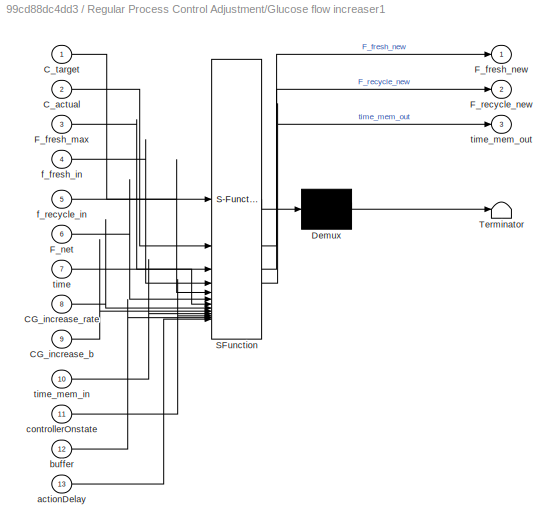
BLOCK [SubSystem] Regular Process Control Adjustment/Glucose flow increaser1
  ErrorFcn = Stateflow.Translate.translate
  PermitHierarchicalResolution = ExplicitOnly
  SFBlockType = MATLAB Function
  TreatAsAtomicUnit = on
BLOCK [Demux] Regular Process Control Adjustment/Glucose flow increaser1/ Demux 
  Outputs = 1
BLOCK [S-Function] Regular Process Control Adjustment/Glucose flow increaser1/ SFunction 
  EnableBusSupport = on
  FunctionName = sf_sfun
  PortCounts = [13 4]
  SFcnIsStateOwnerBlock = off
  SFunctionDeploymentMode = off
  Tag = Stateflow S-Function 14
BLOCK [Terminator] Regular Process Control Adjustment/Glucose flow increaser1/ Terminator 
BLOCK [Inport] Regular Process Control Adjustment/Glucose flow increaser1/CG_increase_b
  Port = 9
BLOCK [Inport] Regular Process Control Adjustment/Glucose flow increaser1/CG_increase_rate
  Port = 8
BLOCK [Inport] Regular Process Control Adjustment/Glucose flow increaser1/C_actual
  Port = 2
BLOCK [Inport] Regular Process Control Adjustment/Glucose flow increaser1/C_target
BLOCK [Inport] Regular Process Control Adjustment/Glucose flow increaser1/F_fresh_max
  Port = 3
BLOCK [Outport] Regular Process Control Adjustment/Glucose flow increaser1/F_fresh_new
BLOCK [Inport] Regular Process Control Adjustment/Glucose flow increaser1/F_net
  Port = 6
BLOCK [Outport] Regular Process Control Adjustment/Glucose flow increaser1/F_recycle_new
  Port = 2
BLOCK [Inport] Regular Process Control Adjustment/Glucose flow increaser1/actionDelay
  Port = 13
BLOCK [Inport] Regular Process Control Adjustment/Glucose flow increaser1/buffer
  Port = 12
BLOCK [Inport] Regular Process Control Adjustment/Glucose flow increaser1/controllerOnstate
  Port = 11
BLOCK [Inport] Regular Process Control Adjustment/Glucose flow increaser1/f_fresh_in
  Port = 4
BLOCK [Inport] Regular Process Control Adjustment/Glucose flow increaser1/f_recycle_in
  Port = 5
BLOCK [Inport] Regular Process Control Adjustment/Glucose flow increaser1/time
  Port = 7
BLOCK [Inport] Regular Process Control Adjustment/Glucose flow increaser1/time_mem_in
  Port = 10
BLOCK [Outport] Regular Process Control Adjustment/Glucose flow increaser1/time_mem_out
  Port = 3
BLOCK [Reference] Regular Process Control Adjustment/Moving Average  REF=dspstat3/Moving
Average
  SourceBlock = dspstat3/Moving\nAverage
  SourceType = dsp.simulink.MovingAverage
BLOCK [Outport] Regular Process Control Adjustment/New Fresh Flowrate
BLOCK [Outport] Regular Process Control Adjustment/New Recycle Flowrate
  Port = 2
BLOCK [Inport] Regular Process Control Adjustment/Old Fresh FLowrate
  Port = 3
BLOCK [Inport] Regular Process Control Adjustment/Old Recycle Flowrate
  Port = 2
BLOCK [Inport] Regular Process Control Adjustment/Time
  Port = 4
BLOCK [Outport] Regular Process Control Adjustment/rolling average glucose
  Port = 3
BLOCK [SubSystem] Simulated Reactor
BLOCK [Sum] Simulated Reactor/Add
  IconShape = rectangular
BLOCK [Outport] Simulated Reactor/CCell
BLOCK [Inport] Simulated Reactor/CG0
  Port = 2
BLOCK [Outport] Simulated Reactor/CG_outlet
  Port = 2
BLOCK [Inport] Simulated Reactor/CO0
  Port = 3
BLOCK [Outport] Simulated Reactor/CO_outlet
  Port = 3
BLOCK [Constant] Simulated Reactor/Constant
  Value = ts
BLOCK [Constant] Simulated Reactor/Constant1
  Value = YGC
BLOCK [Constant] Simulated Reactor/Constant10
  Value = 1000
BLOCK [Constant] Simulated Reactor/Constant11
  Value = ts
BLOCK [Constant] Simulated Reactor/Constant16
  Value = OCR
BLOCK [Constant] Simulated Reactor/Constant2
  Value = mu_max
BLOCK [Constant] Simulated Reactor/Constant3
  Value = 1/ts
BLOCK [Constant] Simulated Reactor/Constant4
  Value = ts
BLOCK [Constant] Simulated Reactor/Constant5
  Value = CM
BLOCK [Constant] Simulated Reactor/Constant6
  Value = cg_noGrowth
BLOCK [Constant] Simulated Reactor/Constant7
  Value = ts
BLOCK [Constant] Simulated Reactor/Constant8
  Value = 1/1000
BLOCK [Constant] Simulated Reactor/Constant9
  Value = v_cell
BLOCK [Reference] Simulated Reactor/Detect Change  REF=simulink/Logic and Bit
Operations/Detect
Change
  SourceBlock = simulink/Logic and Bit\nOperations/Detect\nChange
  SourceType = Detect Change
BLOCK [DiscreteIntegrator] Simulated Reactor/Discrete-Time Integrator
  ICPrevOutput = DiscIntNeverNeededParam
  ICPrevScaledInput = DiscIntNeverNeededParam
  InitialCondition = CG0
  InitialConditionSetting = Auto
  SampleTime = ts
BLOCK [DiscreteIntegrator] Simulated Reactor/Discrete-Time Integrator5
  ICPrevOutput = DiscIntNeverNeededParam
  ICPrevScaledInput = DiscIntNeverNeededParam
  InitialCondition = Ccell0
  InitialConditionSetting = Auto
  IntegratorMethod = Accumulation: Forward Euler
  SampleTime = ts
BLOCK [Inport] Simulated Reactor/F
BLOCK [Gain] Simulated Reactor/Gain
  Gain = (1/V)
BLOCK [SubSystem] Simulated Reactor/MATLAB Function
  ErrorFcn = Stateflow.Translate.translate
  PermitHierarchicalResolution = ExplicitOnly
  SFBlockType = MATLAB Function
  TreatAsAtomicUnit = on
BLOCK [Demux] Simulated Reactor/MATLAB Function/ Demux 
  Outputs = 1
BLOCK [S-Function] Simulated Reactor/MATLAB Function/ SFunction 
  EnableBusSupport = on
  FunctionName = sf_sfun
  PortCounts = [7 2]
  SFcnIsStateOwnerBlock = off
  SFunctionDeploymentMode = off
  Tag = Stateflow S-Function 2
BLOCK [Terminator] Simulated Reactor/MATLAB Function/ Terminator 
BLOCK [Inport] Simulated Reactor/MATLAB Function/CG
  Port = 3
BLOCK [Inport] Simulated Reactor/MATLAB Function/CM
  Port = 2
BLOCK [Inport] Simulated Reactor/MATLAB Function/CO
  Port = 7
BLOCK [Inport] Simulated Reactor/MATLAB Function/Ccell
  Port = 4
BLOCK [Inport] Simulated Reactor/MATLAB Function/cgNoGrowth
  Port = 5
BLOCK [Outport] Simulated Reactor/MATLAB Function/dCcell_dt
BLOCK [Inport] Simulated Reactor/MATLAB Function/mu_max
BLOCK [Inport] Simulated Reactor/MATLAB Function/ts
  Port = 6
BLOCK [SubSystem] Simulated Reactor/MATLAB Function1
  ErrorFcn = Stateflow.Translate.translate
  LibrarySourceBlock = simulink/User-Defined\nFunctions/MATLAB Function
  PermitHierarchicalResolution = ExplicitOnly
  SFBlockType = MATLAB Function
  TreatAsAtomicUnit = on
BLOCK [Demux] Simulated Reactor/MATLAB Function1/ Demux 
  Outputs = 1
BLOCK [S-Function] Simulated Reactor/MATLAB Function1/ SFunction 
  EnableBusSupport = on
  FunctionName = sf_sfun
  PortCounts = [1 2]
  SFcnIsStateOwnerBlock = off
  SFunctionDeploymentMode = off
  Tag = Stateflow S-Function 18
BLOCK [Terminator] Simulated Reactor/MATLAB Function1/ Terminator 
BLOCK [Inport] Simulated Reactor/MATLAB Function1/in
BLOCK [Outport] Simulated Reactor/MATLAB Function1/out
BLOCK [SubSystem] Simulated Reactor/MATLAB Function2
  ErrorFcn = Stateflow.Translate.translate
  PermitHierarchicalResolution = ExplicitOnly
  SFBlockType = MATLAB Function
  TreatAsAtomicUnit = on
BLOCK [Demux] Simulated Reactor/MATLAB Function2/ Demux 
  Outputs = 1
BLOCK [S-Function] Simulated Reactor/MATLAB Function2/ SFunction 
  EnableBusSupport = on
  FunctionName = sf_sfun
  PortCounts = [1 2]
  SFcnIsStateOwnerBlock = off
  SFunctionDeploymentMode = off
  Tag = Stateflow S-Function 22
BLOCK [Terminator] Simulated Reactor/MATLAB Function2/ Terminator 
BLOCK [Outport] Simulated Reactor/MATLAB Function2/num
BLOCK [Inport] Simulated Reactor/MATLAB Function2/statement
BLOCK [SubSystem] Simulated Reactor/MATLAB Function3
  ErrorFcn = Stateflow.Translate.translate
  LibrarySourceBlock = simulink/User-Defined\nFunctions/MATLAB Function
  PermitHierarchicalResolution = ExplicitOnly
  SFBlockType = MATLAB Function
  TreatAsAtomicUnit = on
BLOCK [Demux] Simulated Reactor/MATLAB Function3/ Demux 
  Outputs = 1
BLOCK [S-Function] Simulated Reactor/MATLAB Function3/ SFunction 
  EnableBusSupport = on
  FunctionName = sf_sfun
  PortCounts = [2 2]
  SFcnIsStateOwnerBlock = off
  SFunctionDeploymentMode = off
  Tag = Stateflow S-Function 51
BLOCK [Terminator] Simulated Reactor/MATLAB Function3/ Terminator 
BLOCK [Inport] Simulated Reactor/MATLAB Function3/divide
BLOCK [Inport] Simulated Reactor/MATLAB Function3/mult
  Port = 2
BLOCK [Outport] Simulated Reactor/MATLAB Function3/out
BLOCK [Product] Simulated Reactor/Product
BLOCK [Product] Simulated Reactor/Product1
  Inputs = 3
BLOCK [Product] Simulated Reactor/Product2
  Inputs = 4
BLOCK [Product] Simulated Reactor/Product3
  Inputs = 4
BLOCK [Product] Simulated Reactor/Product4
  Inputs = 3
BLOCK [Sum] Simulated Reactor/Sum
  Inputs = -+|
BLOCK [Sum] Simulated Reactor/Sum1
  Inputs = |+-
BLOCK [Sum] Simulated Reactor/Sum3
  Inputs = |+-
BLOCK [Switch] Simulated Reactor/Switch
  Criteria = u2 > Threshold
  InputSameDT = off
  SaturateOnIntegerOverflow = off
BLOCK [SubSystem] Simulation Failsafe Process Control Adjustment1
BLOCK [Constant] Simulation Failsafe Process Control Adjustment1/Constant1
  Value = F_net
BLOCK [Constant] Simulation Failsafe Process Control Adjustment1/Constant10
  Value = CG_target
BLOCK [Constant] Simulation Failsafe Process Control Adjustment1/Constant2
  Value = lowConc_controller_onState
BLOCK [Constant] Simulation Failsafe Process Control Adjustment1/Constant3
  Value = buffer
BLOCK [Constant] Simulation Failsafe Process Control Adjustment1/Constant4
  Value = CG_increase_rate
BLOCK [Constant] Simulation Failsafe Process Control Adjustment1/Constant5
  Value = CG_increase_b
BLOCK [Constant] Simulation Failsafe Process Control Adjustment1/Constant6
  Value = F_fresh_max
BLOCK [DataStoreMemory] Simulation Failsafe Process Control Adjustment1/Data Store Memory2
  DataStoreName = time_mem_sim
  ShowAdditionalParam = off
  WriteAfterWriteMsg = warning
BLOCK [DataStoreRead] Simulation Failsafe Process Control Adjustment1/Data Store Read2
  DataStoreName = time_mem_sim
  IndexOptions = Index vector (dialog)
  Indices = 1
  OutputSizes = 1
BLOCK [DataStoreWrite] Simulation Failsafe Process Control Adjustment1/Data Store Write2
  DataStoreName = time_mem_sim
  IndexOptions = Index vector (dialog)
  Indices = 1
  OutputSizes = 1
BLOCK [Inport] Simulation Failsafe Process Control Adjustment1/Glucose Concentration
BLOCK [SubSystem] Simulation Failsafe Process Control Adjustment1/Glucose flow increaser1
  ErrorFcn = Stateflow.Translate.translate
  PermitHierarchicalResolution = ExplicitOnly
  SFBlockType = MATLAB Function
  TreatAsAtomicUnit = on
BLOCK [Demux] Simulation Failsafe Process Control Adjustment1/Glucose flow increaser1/ Demux 
  Outputs = 1
BLOCK [S-Function] Simulation Failsafe Process Control Adjustment1/Glucose flow increaser1/ SFunction 
  EnableBusSupport = on
  FunctionName = sf_sfun
  PortCounts = [12 4]
  SFcnIsStateOwnerBlock = off
  SFunctionDeploymentMode = off
  Tag = Stateflow S-Function 11
BLOCK [Terminator] Simulation Failsafe Process Control Adjustment1/Glucose flow increaser1/ Terminator 
BLOCK [Inport] Simulation Failsafe Process Control Adjustment1/Glucose flow increaser1/CG_increase_b
  Port = 9
BLOCK [Inport] Simulation Failsafe Process Control Adjustment1/Glucose flow increaser1/CG_increase_rate
  Port = 8
BLOCK [Inport] Simulation Failsafe Process Control Adjustment1/Glucose flow increaser1/C_actual
  Port = 2
BLOCK [Inport] Simulation Failsafe Process Control Adjustment1/Glucose flow increaser1/C_target
BLOCK [Inport] Simulation Failsafe Process Control Adjustment1/Glucose flow increaser1/F_fresh_max
  Port = 3
BLOCK [Outport] Simulation Failsafe Process Control Adjustment1/Glucose flow increaser1/F_fresh_new
BLOCK [Inport] Simulation Failsafe Process Control Adjustment1/Glucose flow increaser1/F_net
  Port = 6
BLOCK [Outport] Simulation Failsafe Process Control Adjustment1/Glucose flow increaser1/F_recycle_new
  Port = 2
BLOCK [Inport] Simulation Failsafe Process Control Adjustment1/Glucose flow increaser1/buffer
  Port = 12
BLOCK [Inport] Simulation Failsafe Process Control Adjustment1/Glucose flow increaser1/controllerOnstate
  Port = 11
BLOCK [Inport] Simulation Failsafe Process Control Adjustment1/Glucose flow increaser1/f_fresh_in
  Port = 4
BLOCK [Inport] Simulation Failsafe Process Control Adjustment1/Glucose flow increaser1/f_recycle_in
  Port = 5
BLOCK [Inport] Simulation Failsafe Process Control Adjustment1/Glucose flow increaser1/time
  Port = 7
BLOCK [Inport] Simulation Failsafe Process Control Adjustment1/Glucose flow increaser1/time_mem_in
  Port = 10
BLOCK [Outport] Simulation Failsafe Process Control Adjustment1/Glucose flow increaser1/time_mem_out
  Port = 3
BLOCK [Outport] Simulation Failsafe Process Control Adjustment1/New Fresh Flowrate
BLOCK [Outport] Simulation Failsafe Process Control Adjustment1/New Recycle Flowrate
  Port = 2
BLOCK [Inport] Simulation Failsafe Process Control Adjustment1/Old Fresh FLowrate
  Port = 3
BLOCK [Inport] Simulation Failsafe Process Control Adjustment1/Old Recycle Flowrate
  Port = 2
BLOCK [Inport] Simulation Failsafe Process Control Adjustment1/Time
  Port = 4
BLOCK [Reference] Simulation Pace  REF=aerolibanimutils/Simulation Pace
  AttributesFormatString = %<SleepMode>\n%<SimulationPace> sec/sec
  SourceBlock = aerolibanimutils/Simulation Pace
  SourceType = Simulation Pace
BLOCK [SubSystem] Subsystem2
BLOCK [Outport] Subsystem2/Cell count
BLOCK [Clock] Subsystem2/Clock
BLOCK [Constant] Subsystem2/Constant1
  Value = OCR
BLOCK [Constant] Subsystem2/Constant2
  Value = o2_movingaverage_window
BLOCK [Constant] Subsystem2/Constant3
  Value = o2_alpha
BLOCK [Inport] Subsystem2/Inlet_o2
BLOCK [SubSystem] Subsystem2/MATLAB Function
  ErrorFcn = Stateflow.Translate.translate
  LibrarySourceBlock = simulink/User-Defined\nFunctions/MATLAB Function
  PermitHierarchicalResolution = ExplicitOnly
  SFBlockType = MATLAB Function
  TreatAsAtomicUnit = on
BLOCK [Demux] Subsystem2/MATLAB Function/ Demux 
  Outputs = 1
BLOCK [S-Function] Subsystem2/MATLAB Function/ SFunction 
  EnableBusSupport = on
  FunctionName = sf_sfun
  PortCounts = [9 2]
  SFcnIsStateOwnerBlock = off
  SFunctionDeploymentMode = off
  Tag = Stateflow S-Function 23
BLOCK [Terminator] Subsystem2/MATLAB Function/ Terminator 
BLOCK [Inport] Subsystem2/MATLAB Function/OCR
  Port = 6
BLOCK [Outport] Subsystem2/MATLAB Function/cell_count
BLOCK [Inport] Subsystem2/MATLAB Function/dt
  Port = 5
BLOCK [Inport] Subsystem2/MATLAB Function/exit_o2_actual_conc
  Port = 2
BLOCK [Inport] Subsystem2/MATLAB Function/exit_o2_sim_conc
  Port = 3
BLOCK [Inport] Subsystem2/MATLAB Function/faultCode
  Port = 4
BLOCK [Inport] Subsystem2/MATLAB Function/flowrate
  Port = 7
BLOCK [Inport] Subsystem2/MATLAB Function/inlet_o2_conc
BLOCK [Inport] Subsystem2/MATLAB Function/time
  Port = 9
BLOCK [Inport] Subsystem2/MATLAB Function/window_wait
  Port = 8
BLOCK [SubSystem] Subsystem2/MATLAB Function1
  ErrorFcn = Stateflow.Translate.translate
  LibrarySourceBlock = simulink/User-Defined\nFunctions/MATLAB Function
  PermitHierarchicalResolution = ExplicitOnly
  SFBlockType = MATLAB Function
  TreatAsAtomicUnit = on
BLOCK [Demux] Subsystem2/MATLAB Function1/ Demux 
  Outputs = 1
BLOCK [S-Function] Subsystem2/MATLAB Function1/ SFunction 
  EnableBusSupport = on
  FunctionName = sf_sfun
  PortCounts = [2 2]
  SFcnIsStateOwnerBlock = off
  SFunctionDeploymentMode = off
  Tag = Stateflow S-Function 15
BLOCK [Terminator] Subsystem2/MATLAB Function1/ Terminator 
BLOCK [Inport] Subsystem2/MATLAB Function1/alpha
  Port = 2
BLOCK [Inport] Subsystem2/MATLAB Function1/u
BLOCK [Outport] Subsystem2/MATLAB Function1/y
BLOCK [Inport] Subsystem2/dt
  Port = 6
BLOCK [Inport] Subsystem2/exit_o2_actual
  Port = 4
BLOCK [Inport] Subsystem2/exit_o2_sim
  Port = 2
BLOCK [Inport] Subsystem2/faultCode
  Port = 5
BLOCK [Inport] Subsystem2/net_flowrate
  Port = 3
BLOCK [ToFile] To File
  Commented = on
  Filename = SPR_basicControl_run2.mat
  SampleTime = ts
BLOCK [Concatenate] Vector Concatenate
  NumInputs = 9
BLOCK [SubSystem] recycle or fresh medium1
  ErrorFcn = Stateflow.Translate.translate
  LibrarySourceBlock = simulink/User-Defined\nFunctions/MATLAB Function
  PermitHierarchicalResolution = ExplicitOnly
  SFBlockType = MATLAB Function
  TreatAsAtomicUnit = on
BLOCK [Demux] recycle or fresh medium1/ Demux 
  Outputs = 1
BLOCK [S-Function] recycle or fresh medium1/ SFunction 
  EnableBusSupport = on
  FunctionName = sf_sfun
  PortCounts = [4 3]
  SFcnIsStateOwnerBlock = off
  SFunctionDeploymentMode = off
  Tag = Stateflow S-Function 7
BLOCK [Terminator] recycle or fresh medium1/ Terminator 
BLOCK [Inport] recycle or fresh medium1/CG0
  Port = 3
BLOCK [Outport] recycle or fresh medium1/CG_inlet
BLOCK [Inport] recycle or fresh medium1/CG_recycled
  Port = 4
BLOCK [Inport] recycle or fresh medium1/fresh_flowrate
BLOCK [Inport] recycle or fresh medium1/recycled_flowrate
  Port = 2
BLOCK [Outport] recycle or fresh medium1/total_flowrate
  Port = 2
ANNOTATION (root): System Inputs
ANNOTATION (root): System Outputs
ANNOTATION (root): Actuator Faults
ANNOTATION (root): Cell Count Estimatior
ANNOTATION (root): Constants
ANNOTATION (root): Fluid Draw Selector
ANNOTATION (root): Intended Flowrates
ANNOTATION (root): Reactor Simulation
ANNOTATION (root): Scopes
ANNOTATION (root): Sensor Attacks
ANNOTATION (root): Sensor Failure
ANNOTATION (root): Actuator Attacks
ANNOTATION (root): Actuator Countermeasures
ANNOTATION (root): Actuator Noise
ANNOTATION (root): Sensor Noise
ANNOTATION (root): Actuator Adjustment
LINE Add:1 -> Subsystem2:3
LINE Attack Response System/Constant15:1 -> Attack Response System/Prevents net flowrate from increasing:3
LINE Attack Response System/Constant3:1 -> Attack Response System/Prevents net flowrate from decreasing:3
LINE Attack Response System/Data Store Read:1 -> Attack Response System/Prevents flowrate ratio from decreasing:3
LINE Attack Response System/Fault Code:1 -> Attack Response System/MATLAB Function:1
LINE Attack Response System/Fresh Flowrate:1 -> Attack Response System/Prevents net flowrate from increasing:2
NET Attack Response System/MATLAB Function:1 -> Attack Response System/Prevents flowrate ratio from decreasing:4, Attack Response System/Prevents net flowrate from decreasing:4, Attack Response System/Prevents net flowrate from increasing:4
LINE Attack Response System/Prevents flowrate ratio from decreasing:1 -> Attack Response System/Recycle Flowrate Out:1
LINE Attack Response System/Prevents flowrate ratio from decreasing:2 -> Attack Response System/Fresh Flowrate Out:1
LINE Attack Response System/Prevents flowrate ratio from decreasing:3 -> Attack Response System/Data Store Write:1
LINE Attack Response System/Prevents net flowrate from decreasing:1 -> Attack Response System/Prevents flowrate ratio from decreasing:1
LINE Attack Response System/Prevents net flowrate from decreasing:2 -> Attack Response System/Prevents flowrate ratio from decreasing:2
LINE Attack Response System/Prevents net flowrate from increasing:1 -> Attack Response System/Prevents net flowrate from decreasing:1
LINE Attack Response System/Prevents net flowrate from increasing:2 -> Attack Response System/Prevents net flowrate from decreasing:2
LINE Attack Response System/Recycle Flowrate:1 -> Attack Response System/Prevents net flowrate from increasing:1
NET Attack Response System:1 -> Add:1, Attack and Fault Detection System1:6, Recycle Flowrate Fault System:1, Regular Process Control Adjustment:2, Simulation Failsafe Process Control Adjustment1:2
NET Attack Response System:2 -> Add:2, Attack and Fault Detection System1:5, Fresh Flowrate Fault System:1, Regular Process Control Adjustment:3, Simulation Failsafe Process Control Adjustment1:3
LINE Attack and Fault Detection System1/Add:1 -> Attack and Fault Detection System1/Recycle Pump Fault Detection:3
NET Attack and Fault Detection System1/CG_predicted1:1 -> Attack and Fault Detection System1/Glucose Abnormally Low Noise Detection:2, Attack and Fault Detection System1/Glucose Deviation Detection:1, Attack and Fault Detection System1/Glucose Fault Detection:2
NET Attack and Fault Detection System1/CG_sensor1:1 -> Attack and Fault Detection System1/Fresh Pump Fault Detection:2, Attack and Fault Detection System1/Glucose Abnormally Low Noise Detection:1, Attack and Fault Detection System1/Glucose Deviation Detection:2, Attack and Fault Detection System1/Glucose Fault Detection:1
NET Attack and Fault Detection System1/CO_predicted:1 -> Attack and Fault Detection System1/Oxygen Abnormally Low Noise Detection1:2, Attack and Fault Detection System1/Oxygen Deviation Detection1:1
NET Attack and Fault Detection System1/CO_sensor:1 -> Attack and Fault Detection System1/Oxygen Abnormally Low Noise Detection1:1, Attack and Fault Detection System1/Oxygen Deviation Detection1:2, Attack and Fault Detection System1/Oxygen Sensor Failure Detection:1, Attack and Fault Detection System1/Recycle Pump Fault Detection:1
LINE Attack and Fault Detection System1/Constant2:1 -> Attack and Fault Detection System1/MATLAB Function3:4
LINE Attack and Fault Detection System1/Constant4:1 -> Attack and Fault Detection System1/Steady State Detection System1:2
LINE Attack and Fault Detection System1/Constant5:1 -> Attack and Fault Detection System1/Steady State Detection System1:3
LINE Attack and Fault Detection System1/Constant:1 -> Attack and Fault Detection System1/MATLAB Function2:4
LINE Attack and Fault Detection System1/Fresh Pump Fault Detection/Constant1:1 -> Attack and Fault Detection System1/Fresh Pump Fault Detection/MATLAB Function:5
LINE Attack and Fault Detection System1/Fresh Pump Fault Detection/Constant:1 -> Attack and Fault Detection System1/Fresh Pump Fault Detection/MATLAB Function:4
LINE Attack and Fault Detection System1/Fresh Pump Fault Detection/MATLAB Function:1 -> Attack and Fault Detection System1/Fresh Pump Fault Detection/noFreshResponse:1
LINE Attack and Fault Detection System1/Fresh Pump Fault Detection/Moving Average:1 -> Attack and Fault Detection System1/Fresh Pump Fault Detection/MATLAB Function:3
LINE Attack and Fault Detection System1/Fresh Pump Fault Detection/dnr:1 -> Attack and Fault Detection System1/Fresh Pump Fault Detection/MATLAB Function:1
LINE Attack and Fault Detection System1/Fresh Pump Fault Detection/fresh flowrate commanded:1 -> Attack and Fault Detection System1/Fresh Pump Fault Detection/MATLAB Function:2
LINE Attack and Fault Detection System1/Fresh Pump Fault Detection/glucose sensor concentration rolling average:1 -> Attack and Fault Detection System1/Fresh Pump Fault Detection/Moving Average:1
NET Attack and Fault Detection System1/Fresh Pump Fault Detection:1 -> Attack and Fault Detection System1/Gain5:1, Attack and Fault Detection System1/Pump Failures:4
LINE Attack and Fault Detection System1/Gain1:1 -> Attack and Fault Detection System1/GC_failure_faultCode:1
LINE Attack and Fault Detection System1/Gain2:1 -> Attack and Fault Detection System1/recycle_failure_faultCode:1
LINE Attack and Fault Detection System1/Gain3:1 -> Attack and Fault Detection System1/CG_prob:1
LINE Attack and Fault Detection System1/Gain4:1 -> Attack and Fault Detection System1/CG_prob:3
LINE Attack and Fault Detection System1/Gain5:1 -> Attack and Fault Detection System1/fresh_failure_faultCode:1
LINE Attack and Fault Detection System1/Gain6:1 -> Attack and Fault Detection System1/GC_disturbance_detected:1
LINE Attack and Fault Detection System1/Gain7:1 -> Attack and Fault Detection System1/o2_disturbance_detected:1
LINE Attack and Fault Detection System1/Gain8:1 -> Attack and Fault Detection System1/system_ompromised_faultCode:1
LINE Attack and Fault Detection System1/Gain:1 -> Attack and Fault Detection System1/O2_failure_faultCode:1
LINE Attack and Fault Detection System1/Glucose Abnormally Low Noise Detection/Constant6:1 -> Attack and Fault Detection System1/Glucose Abnormally Low Noise Detection/MATLAB Function3:3
LINE Attack and Fault Detection System1/Glucose Abnormally Low Noise Detection/Constant7:1 -> Attack and Fault Detection System1/Glucose Abnormally Low Noise Detection/MATLAB Function3:4
LINE Attack and Fault Detection System1/Glucose Abnormally Low Noise Detection/Data Store Read:1 -> Attack and Fault Detection System1/Glucose Abnormally Low Noise Detection/MATLAB Function:3
LINE Attack and Fault Detection System1/Glucose Abnormally Low Noise Detection/MATLAB Function3:1 -> Attack and Fault Detection System1/Glucose Abnormally Low Noise Detection/noiseSmall:1
NET Attack and Fault Detection System1/Glucose Abnormally Low Noise Detection/MATLAB Function:1 -> Attack and Fault Detection System1/Glucose Abnormally Low Noise Detection/MATLAB Function3:2, Attack and Fault Detection System1/Glucose Abnormally Low Noise Detection/stdev:1
LINE Attack and Fault Detection System1/Glucose Abnormally Low Noise Detection/MATLAB Function:2 -> Attack and Fault Detection System1/Glucose Abnormally Low Noise Detection/MATLAB Function3:5
LINE Attack and Fault Detection System1/Glucose Abnormally Low Noise Detection/Moving Standard Deviation:1 -> Attack and Fault Detection System1/Glucose Abnormally Low Noise Detection/MATLAB Function:1
LINE Attack and Fault Detection System1/Glucose Abnormally Low Noise Detection/Ramp:1 -> Attack and Fault Detection System1/Glucose Abnormally Low Noise Detection/MATLAB Function:2
LINE Attack and Fault Detection System1/Glucose Abnormally Low Noise Detection/Sum:1 -> Attack and Fault Detection System1/Glucose Abnormally Low Noise Detection/Moving Standard Deviation:1
LINE Attack and Fault Detection System1/Glucose Abnormally Low Noise Detection/dnr:1 -> Attack and Fault Detection System1/Glucose Abnormally Low Noise Detection/MATLAB Function3:1
LINE Attack and Fault Detection System1/Glucose Abnormally Low Noise Detection/sensor glucose value:1 -> Attack and Fault Detection System1/Glucose Abnormally Low Noise Detection/Sum:2
LINE Attack and Fault Detection System1/Glucose Abnormally Low Noise Detection/sim glucose value:1 -> Attack and Fault Detection System1/Glucose Abnormally Low Noise Detection/Sum:1
NET Attack and Fault Detection System1/Glucose Abnormally Low Noise Detection:1 -> Attack and Fault Detection System1/Abnormally Low Glucose:1, Attack and Fault Detection System1/MATLAB Function2:2, Attack and Fault Detection System1/glucose ab_small:1
NET Attack and Fault Detection System1/Glucose Abnormally Low Noise Detection:2 -> Attack and Fault Detection System1/Abnormally Low Glucose:2, Attack and Fault Detection System1/glucose stdev:1
LINE Attack and Fault Detection System1/Glucose Deviation Detection/Constant1:1 -> Attack and Fault Detection System1/Glucose Deviation Detection/MATLAB Function1:3
LINE Attack and Fault Detection System1/Glucose Deviation Detection/Constant2:1 -> Attack and Fault Detection System1/Glucose Deviation Detection/MATLAB Function1:4
LINE Attack and Fault Detection System1/Glucose Deviation Detection/Constant:1 -> Attack and Fault Detection System1/Glucose Deviation Detection/MATLAB Function:4
LINE Attack and Fault Detection System1/Glucose Deviation Detection/MATLAB Function1:1 -> Attack and Fault Detection System1/Glucose Deviation Detection/isDeviated:1
NET Attack and Fault Detection System1/Glucose Deviation Detection/MATLAB Function:1 -> Attack and Fault Detection System1/Glucose Deviation Detection/MATLAB Function1:2, Attack and Fault Detection System1/Glucose Deviation Detection/likelihood:1
LINE Attack and Fault Detection System1/Glucose Deviation Detection/Moving Standard Deviation:1 -> Attack and Fault Detection System1/Glucose Deviation Detection/MATLAB Function:3
NET Attack and Fault Detection System1/Glucose Deviation Detection/Sensor g value:1 -> Attack and Fault Detection System1/Glucose Deviation Detection/Moving Standard Deviation:1, Attack and Fault Detection System1/Glucose Deviation Detection/Sum:1
LINE Attack and Fault Detection System1/Glucose Deviation Detection/Simulated g value:1 -> Attack and Fault Detection System1/Glucose Deviation Detection/Sum:2
LINE Attack and Fault Detection System1/Glucose Deviation Detection/Sum:1 -> Attack and Fault Detection System1/Glucose Deviation Detection/MATLAB Function:2
NET Attack and Fault Detection System1/Glucose Deviation Detection/dnr:1 -> Attack and Fault Detection System1/Glucose Deviation Detection/MATLAB Function1:1, Attack and Fault Detection System1/Glucose Deviation Detection/MATLAB Function:1
NET Attack and Fault Detection System1/Glucose Deviation Detection:1 -> Attack and Fault Detection System1/MATLAB Function2:3, Attack and Fault Detection System1/glucose deviation:2
NET Attack and Fault Detection System1/Glucose Deviation Detection:2 -> Attack and Fault Detection System1/glucose deviation prob:1, Attack and Fault Detection System1/glucose deviation:1
LINE Attack and Fault Detection System1/Glucose Fault Detection/Constant6:1 -> Attack and Fault Detection System1/Glucose Fault Detection/MATLAB Function3:3
LINE Attack and Fault Detection System1/Glucose Fault Detection/Constant7:1 -> Attack and Fault Detection System1/Glucose Fault Detection/MATLAB Function3:4
LINE Attack and Fault Detection System1/Glucose Fault Detection/Data Store Read:1 -> Attack and Fault Detection System1/Glucose Fault Detection/MATLAB Function:3
LINE Attack and Fault Detection System1/Glucose Fault Detection/MATLAB Function3:1 -> Attack and Fault Detection System1/Glucose Fault Detection/isFailed:1
NET Attack and Fault Detection System1/Glucose Fault Detection/MATLAB Function:1 -> Attack and Fault Detection System1/Glucose Fault Detection/MATLAB Function3:2, Attack and Fault Detection System1/Glucose Fault Detection/stdev:1
LINE Attack and Fault Detection System1/Glucose Fault Detection/Moving Standard Deviation:1 -> Attack and Fault Detection System1/Glucose Fault Detection/MATLAB Function:1
LINE Attack and Fault Detection System1/Glucose Fault Detection/Ramp:1 -> Attack and Fault Detection System1/Glucose Fault Detection/MATLAB Function:2
LINE Attack and Fault Detection System1/Glucose Fault Detection/Sum:1 -> Attack and Fault Detection System1/Glucose Fault Detection/Moving Standard Deviation:1
LINE Attack and Fault Detection System1/Glucose Fault Detection/dnr:1 -> Attack and Fault Detection System1/Glucose Fault Detection/MATLAB Function3:1
LINE Attack and Fault Detection System1/Glucose Fault Detection/sensor glucose value:1 -> Attack and Fault Detection System1/Glucose Fault Detection/Sum:2
LINE Attack and Fault Detection System1/Glucose Fault Detection/sim glucose value:1 -> Attack and Fault Detection System1/Glucose Fault Detection/Sum:1
NET Attack and Fault Detection System1/Glucose Fault Detection:1 -> Attack and Fault Detection System1/MATLAB Function2:1, Attack and Fault Detection System1/glucose fault detection:1
LINE Attack and Fault Detection System1/Glucose Fault Detection:2 -> Attack and Fault Detection System1/glucose fault detection:2
LINE Attack and Fault Detection System1/MATLAB Function2:1 -> Attack and Fault Detection System1/Gain1:1
LINE Attack and Fault Detection System1/MATLAB Function2:2 -> Attack and Fault Detection System1/Max1:1
LINE Attack and Fault Detection System1/MATLAB Function2:3 -> Attack and Fault Detection System1/Gain6:1
LINE Attack and Fault Detection System1/MATLAB Function3:1 -> Attack and Fault Detection System1/Gain:1
LINE Attack and Fault Detection System1/MATLAB Function3:2 -> Attack and Fault Detection System1/Max1:2
LINE Attack and Fault Detection System1/MATLAB Function3:3 -> Attack and Fault Detection System1/Max:2
LINE Attack and Fault Detection System1/Max1:1 -> Attack and Fault Detection System1/Gain8:1
LINE Attack and Fault Detection System1/Max:1 -> Attack and Fault Detection System1/Gain7:1
LINE Attack and Fault Detection System1/Oxygen Abnormally Low Noise Detection1/Constant6:1 -> Attack and Fault Detection System1/Oxygen Abnormally Low Noise Detection1/MATLAB Function3:3
LINE Attack and Fault Detection System1/Oxygen Abnormally Low Noise Detection1/Constant7:1 -> Attack and Fault Detection System1/Oxygen Abnormally Low Noise Detection1/MATLAB Function3:4
LINE Attack and Fault Detection System1/Oxygen Abnormally Low Noise Detection1/Data Store Read:1 -> Attack and Fault Detection System1/Oxygen Abnormally Low Noise Detection1/MATLAB Function:3
LINE Attack and Fault Detection System1/Oxygen Abnormally Low Noise Detection1/MATLAB Function3:1 -> Attack and Fault Detection System1/Oxygen Abnormally Low Noise Detection1/noiseSmall:1
NET Attack and Fault Detection System1/Oxygen Abnormally Low Noise Detection1/MATLAB Function:1 -> Attack and Fault Detection System1/Oxygen Abnormally Low Noise Detection1/MATLAB Function3:2, Attack and Fault Detection System1/Oxygen Abnormally Low Noise Detection1/stdev:1
LINE Attack and Fault Detection System1/Oxygen Abnormally Low Noise Detection1/MATLAB Function:2 -> Attack and Fault Detection System1/Oxygen Abnormally Low Noise Detection1/MATLAB Function3:5
LINE Attack and Fault Detection System1/Oxygen Abnormally Low Noise Detection1/Moving Standard Deviation:1 -> Attack and Fault Detection System1/Oxygen Abnormally Low Noise Detection1/MATLAB Function:1
LINE Attack and Fault Detection System1/Oxygen Abnormally Low Noise Detection1/Ramp:1 -> Attack and Fault Detection System1/Oxygen Abnormally Low Noise Detection1/MATLAB Function:2
LINE Attack and Fault Detection System1/Oxygen Abnormally Low Noise Detection1/Sum:1 -> Attack and Fault Detection System1/Oxygen Abnormally Low Noise Detection1/Moving Standard Deviation:1
LINE Attack and Fault Detection System1/Oxygen Abnormally Low Noise Detection1/dnr:1 -> Attack and Fault Detection System1/Oxygen Abnormally Low Noise Detection1/MATLAB Function3:1
LINE Attack and Fault Detection System1/Oxygen Abnormally Low Noise Detection1/sensor o2 value:1 -> Attack and Fault Detection System1/Oxygen Abnormally Low Noise Detection1/Sum:2
LINE Attack and Fault Detection System1/Oxygen Abnormally Low Noise Detection1/sim o2 value:1 -> Attack and Fault Detection System1/Oxygen Abnormally Low Noise Detection1/Sum:1
NET Attack and Fault Detection System1/Oxygen Abnormally Low Noise Detection1:1 -> Attack and Fault Detection System1/MATLAB Function3:2, Attack and Fault Detection System1/oxygen ab_small:1, Attack and Fault Detection System1/oxygen abnormally small noise:1
NET Attack and Fault Detection System1/Oxygen Abnormally Low Noise Detection1:2 -> Attack and Fault Detection System1/oxygen abnormally small noise:2, Attack and Fault Detection System1/oxygen stdev:1
LINE Attack and Fault Detection System1/Oxygen Deviation Detection1/Constant1:1 -> Attack and Fault Detection System1/Oxygen Deviation Detection1/MATLAB Function1:3
LINE Attack and Fault Detection System1/Oxygen Deviation Detection1/Constant2:1 -> Attack and Fault Detection System1/Oxygen Deviation Detection1/MATLAB Function1:4
LINE Attack and Fault Detection System1/Oxygen Deviation Detection1/Constant:1 -> Attack and Fault Detection System1/Oxygen Deviation Detection1/MATLAB Function:4
LINE Attack and Fault Detection System1/Oxygen Deviation Detection1/MATLAB Function1:1 -> Attack and Fault Detection System1/Oxygen Deviation Detection1/isDeviated:1
NET Attack and Fault Detection System1/Oxygen Deviation Detection1/MATLAB Function:1 -> Attack and Fault Detection System1/Oxygen Deviation Detection1/MATLAB Function1:2, Attack and Fault Detection System1/Oxygen Deviation Detection1/likelihood:1
LINE Attack and Fault Detection System1/Oxygen Deviation Detection1/Moving Standard Deviation:1 -> Attack and Fault Detection System1/Oxygen Deviation Detection1/MATLAB Function:3
NET Attack and Fault Detection System1/Oxygen Deviation Detection1/Sensor o2 value:1 -> Attack and Fault Detection System1/Oxygen Deviation Detection1/Moving Standard Deviation:1, Attack and Fault Detection System1/Oxygen Deviation Detection1/Sum:1
LINE Attack and Fault Detection System1/Oxygen Deviation Detection1/Simulated o2 value:1 -> Attack and Fault Detection System1/Oxygen Deviation Detection1/Sum:2
LINE Attack and Fault Detection System1/Oxygen Deviation Detection1/Sum:1 -> Attack and Fault Detection System1/Oxygen Deviation Detection1/MATLAB Function:2
NET Attack and Fault Detection System1/Oxygen Deviation Detection1/dnr:1 -> Attack and Fault Detection System1/Oxygen Deviation Detection1/MATLAB Function1:1, Attack and Fault Detection System1/Oxygen Deviation Detection1/MATLAB Function:1
NET Attack and Fault Detection System1/Oxygen Deviation Detection1:1 -> Attack and Fault Detection System1/MATLAB Function3:3, Attack and Fault Detection System1/oxygen deviation:1
NET Attack and Fault Detection System1/Oxygen Deviation Detection1:2 -> Attack and Fault Detection System1/oxygen deviation prob:1, Attack and Fault Detection System1/oxygen deviation:2
LINE Attack and Fault Detection System1/Oxygen Sensor Failure Detection/Constant2:1 -> Attack and Fault Detection System1/Oxygen Sensor Failure Detection/MATLAB Function2:4
LINE Attack and Fault Detection System1/Oxygen Sensor Failure Detection/Constant3:1 -> Attack and Fault Detection System1/Oxygen Sensor Failure Detection/MATLAB Function2:5
LINE Attack and Fault Detection System1/Oxygen Sensor Failure Detection/Constant:1 -> Attack and Fault Detection System1/Oxygen Sensor Failure Detection/MATLAB Function2:3
LINE Attack and Fault Detection System1/Oxygen Sensor Failure Detection/MATLAB Function1:1 -> Attack and Fault Detection System1/Oxygen Sensor Failure Detection/isFailed:1
LINE Attack and Fault Detection System1/Oxygen Sensor Failure Detection/MATLAB Function1:2 -> Attack and Fault Detection System1/Oxygen Sensor Failure Detection/o2Distrubed:1
NET Attack and Fault Detection System1/Oxygen Sensor Failure Detection/MATLAB Function2:1 -> Attack and Fault Detection System1/Oxygen Sensor Failure Detection/MATLAB Function1:1, Attack and Fault Detection System1/Oxygen Sensor Failure Detection/MATLAB Function:5
LINE Attack and Fault Detection System1/Oxygen Sensor Failure Detection/MATLAB Function:1 -> Attack and Fault Detection System1/Oxygen Sensor Failure Detection/MATLAB Function1:2
LINE Attack and Fault Detection System1/Oxygen Sensor Failure Detection/dnr:1 -> Attack and Fault Detection System1/Oxygen Sensor Failure Detection/MATLAB Function2:1
LINE Attack and Fault Detection System1/Oxygen Sensor Failure Detection/o2_sensor:1 -> Attack and Fault Detection System1/Oxygen Sensor Failure Detection/MATLAB Function2:2
NET Attack and Fault Detection System1/Oxygen Sensor Failure Detection:1 -> Attack and Fault Detection System1/MATLAB Function3:1, Attack and Fault Detection System1/oxygen fault detection:1
LINE Attack and Fault Detection System1/Oxygen Sensor Failure Detection:2 -> Attack and Fault Detection System1/Max:1
LINE Attack and Fault Detection System1/Recycle Pump Fault Detection/Constant1:1 -> Attack and Fault Detection System1/Recycle Pump Fault Detection/MATLAB Function:6
LINE Attack and Fault Detection System1/Recycle Pump Fault Detection/Constant2:1 -> Attack and Fault Detection System1/Recycle Pump Fault Detection/MATLAB Function:5
LINE Attack and Fault Detection System1/Recycle Pump Fault Detection/Constant3:1 -> Attack and Fault Detection System1/Recycle Pump Fault Detection/MATLAB Function:4
LINE Attack and Fault Detection System1/Recycle Pump Fault Detection/Constant4:1 -> Attack and Fault Detection System1/Recycle Pump Fault Detection/MATLAB Function:7
LINE Attack and Fault Detection System1/Recycle Pump Fault Detection/Constant:1 -> Attack and Fault Detection System1/Recycle Pump Fault Detection/MATLAB Function:8
LINE Attack and Fault Detection System1/Recycle Pump Fault Detection/MATLAB Function:1 -> Attack and Fault Detection System1/Recycle Pump Fault Detection/noRecycleResponse:1
LINE Attack and Fault Detection System1/Recycle Pump Fault Detection/MATLAB Function:2 -> Attack and Fault Detection System1/Recycle Pump Fault Detection/delta_o2:1
LINE Attack and Fault Detection System1/Recycle Pump Fault Detection/MATLAB Function:3 -> Attack and Fault Detection System1/Recycle Pump Fault Detection/rolling_avg_o2:1
LINE Attack and Fault Detection System1/Recycle Pump Fault Detection/dnr:1 -> Attack and Fault Detection System1/Recycle Pump Fault Detection/MATLAB Function:1
LINE Attack and Fault Detection System1/Recycle Pump Fault Detection/net flowrate commanded:1 -> Attack and Fault Detection System1/Recycle Pump Fault Detection/MATLAB Function:2
LINE Attack and Fault Detection System1/Recycle Pump Fault Detection/oxygen sensor:1 -> Attack and Fault Detection System1/Recycle Pump Fault Detection/MATLAB Function:3
NET Attack and Fault Detection System1/Recycle Pump Fault Detection:1 -> Attack and Fault Detection System1/Gain2:1, Attack and Fault Detection System1/Pump Failures:1
LINE Attack and Fault Detection System1/Recycle Pump Fault Detection:2 -> Attack and Fault Detection System1/Pump Failures:2
LINE Attack and Fault Detection System1/Recycle Pump Fault Detection:3 -> Attack and Fault Detection System1/Pump Failures:3
LINE Attack and Fault Detection System1/Steady State Detection System1/Constant1:1 -> Attack and Fault Detection System1/Steady State Detection System1/MATLAB Function3:3
LINE Attack and Fault Detection System1/Steady State Detection System1/Constant5:1 -> Attack and Fault Detection System1/Steady State Detection System1/MATLAB Function3:6
LINE Attack and Fault Detection System1/Steady State Detection System1/Data Store Read1:1 -> Attack and Fault Detection System1/Steady State Detection System1/Switch2:1
LINE Attack and Fault Detection System1/Steady State Detection System1/Data Store Read2:1 -> Attack and Fault Detection System1/Steady State Detection System1/MATLAB Function2:1
LINE Attack and Fault Detection System1/Steady State Detection System1/Data Store Read3:1 -> Attack and Fault Detection System1/Steady State Detection System1/MATLAB Function3:1
LINE Attack and Fault Detection System1/Steady State Detection System1/Data Store Read4:1 -> Attack and Fault Detection System1/Steady State Detection System1/MATLAB Function3:2
NET Attack and Fault Detection System1/Steady State Detection System1/Data Store Read5:1 -> Attack and Fault Detection System1/Steady State Detection System1/MATLAB Function2:4, Attack and Fault Detection System1/Steady State Detection System1/MATLAB Function4:2
LINE Attack and Fault Detection System1/Steady State Detection System1/Data Store Read6:1 -> Attack and Fault Detection System1/Steady State Detection System1/MATLAB Function2:5
LINE Attack and Fault Detection System1/Steady State Detection System1/Data Store Read:1 -> Attack and Fault Detection System1/Steady State Detection System1/MATLAB Function2:3
LINE Attack and Fault Detection System1/Steady State Detection System1/Input:1 -> Attack and Fault Detection System1/Steady State Detection System1/Tapped Delay:1
LINE Attack and Fault Detection System1/Steady State Detection System1/MATLAB Function2:1 -> Attack and Fault Detection System1/Steady State Detection System1/Data Store Write1:1
NET Attack and Fault Detection System1/Steady State Detection System1/MATLAB Function2:2 -> Attack and Fault Detection System1/Steady State Detection System1/MATLAB Function3:5, Attack and Fault Detection System1/Steady State Detection System1/Probability:1
LINE Attack and Fault Detection System1/Steady State Detection System1/MATLAB Function2:3 -> Attack and Fault Detection System1/Steady State Detection System1/MATLAB Function3:4
LINE Attack and Fault Detection System1/Steady State Detection System1/MATLAB Function3:1 -> Attack and Fault Detection System1/Steady State Detection System1/Data Store Write3:1
NET Attack and Fault Detection System1/Steady State Detection System1/MATLAB Function3:2 -> Attack and Fault Detection System1/Steady State Detection System1/Data Store Write2:1, Attack and Fault Detection System1/Steady State Detection System1/Steady_State_detection:1
NET Attack and Fault Detection System1/Steady State Detection System1/MATLAB Function4:1 -> Attack and Fault Detection System1/Steady State Detection System1/MATLAB Function2:2, Attack and Fault Detection System1/Steady State Detection System1/Switch2:2
LINE Attack and Fault Detection System1/Steady State Detection System1/Ramp2:1 -> Attack and Fault Detection System1/Steady State Detection System1/MATLAB Function4:1
LINE Attack and Fault Detection System1/Steady State Detection System1/Switch2:1 -> Attack and Fault Detection System1/Steady State Detection System1/Data Store Write:1
LINE Attack and Fault Detection System1/Steady State Detection System1/Tapped Delay:1 -> Attack and Fault Detection System1/Steady State Detection System1/Switch2:3
LINE Attack and Fault Detection System1/Steady State Detection System1/n_size:1 -> Attack and Fault Detection System1/Steady State Detection System1/Data Store Write5:1
LINE Attack and Fault Detection System1/Steady State Detection System1/t_crit:1 -> Attack and Fault Detection System1/Steady State Detection System1/Data Store Write4:1
LINE Attack and Fault Detection System1/Steady State Detection System1:1 -> Attack and Fault Detection System1/Gain3:1
LINE Attack and Fault Detection System1/Steady State Detection System1:2 -> Attack and Fault Detection System1/CG_prob:2
NET Attack and Fault Detection System1/dnr:1 -> Attack and Fault Detection System1/Fresh Pump Fault Detection:3, Attack and Fault Detection System1/Glucose Abnormally Low Noise Detection:3, Attack and Fault Detection System1/Glucose Deviation Detection:3, Attack and Fault Detection System1/Glucose Fault Detection:3, Attack and Fault Detection System1/Oxygen Abnormally Low Noise Detection1:3, Attack and Fault Detection System1/Oxygen Deviation Detection1:3, Attack and Fault Detection System1/Oxygen Sensor Failure Detection:2, Attack and Fault Detection System1/Recycle Pump Fault Detection:2
NET Attack and Fault Detection System1/freshPump_flowrate:1 -> Attack and Fault Detection System1/Add:2, Attack and Fault Detection System1/Fresh Pump Fault Detection:1
LINE Attack and Fault Detection System1/recyclePump_flowrate:1 -> Attack and Fault Detection System1/Add:1
NET CG Attack System/CG_in:1 -> CG Attack System/MATLAB Function7:2, CG Attack System/Switch9:3
LINE CG Attack System/Constant16:1 -> CG Attack System/MATLAB Function:6
NET CG Attack System/Constant1:1 -> CG Attack System/MATLAB Function7:5, CG Attack System/MATLAB Function:4
LINE CG Attack System/Constant28:1 -> CG Attack System/Switch9:2
LINE CG Attack System/Constant2:1 -> CG Attack System/MATLAB Function:2
LINE CG Attack System/Constant3:1 -> CG Attack System/MATLAB Function:1
LINE CG Attack System/Constant4:1 -> CG Attack System/MATLAB Function1:3
LINE CG Attack System/Constant9:1 -> CG Attack System/MATLAB Function:5
LINE CG Attack System/Constant:1 -> CG Attack System/MATLAB Function1:2
LINE CG Attack System/MATLAB Function1:1 -> CG Attack System/Switch:1
LINE CG Attack System/MATLAB Function7:1 -> CG Attack System/Switch9:1
NET CG Attack System/MATLAB Function:1 -> CG Attack System/MATLAB Function7:3, CG Attack System/Scope:1
LINE CG Attack System/MATLAB Function:2 -> CG Attack System/MATLAB Function7:4
NET CG Attack System/Ramp1:1 -> CG Attack System/MATLAB Function7:1, CG Attack System/MATLAB Function:3
LINE CG Attack System/Ramp:1 -> CG Attack System/Switch:2
NET CG Attack System/Switch9:1 -> CG Attack System/MATLAB Function1:1, CG Attack System/Switch:3
LINE CG Attack System/Switch:1 -> CG Attack System/CG_out:1
NET CG Attack System:1 -> Attack and Fault Detection System1:3, Glucose Concentration Output:1, Glucose Concentrations:2, Regular Process Control Adjustment:1, Vector Concatenate:4
NET CG Sensor Noise System/CG_in:1 -> CG Sensor Noise System/MATLAB Function6:3, CG Sensor Noise System/Switch8:3
LINE CG Sensor Noise System/Constant24:1 -> CG Sensor Noise System/MATLAB Function6:1
LINE CG Sensor Noise System/Constant25:1 -> CG Sensor Noise System/MATLAB Function6:2
LINE CG Sensor Noise System/Constant26:1 -> CG Sensor Noise System/Switch8:2
LINE CG Sensor Noise System/MATLAB Function6:1 -> CG Sensor Noise System/Switch8:1
LINE CG Sensor Noise System/Switch8:1 -> CG Sensor Noise System/CG_out:1
LINE CG Sensor Noise System:1 -> Glucose sensor failure:1
NET CO Attack System/CO_in:1 -> CO Attack System/MATLAB Function7:2, CO Attack System/Switch9:3
LINE CO Attack System/Constant16:1 -> CO Attack System/MATLAB Function:6
NET CO Attack System/Constant1:1 -> CO Attack System/MATLAB Function7:5, CO Attack System/MATLAB Function:4
LINE CO Attack System/Constant28:1 -> CO Attack System/Switch9:2
LINE CO Attack System/Constant2:1 -> CO Attack System/MATLAB Function:2
LINE CO Attack System/Constant3:1 -> CO Attack System/MATLAB Function:1
LINE CO Attack System/Constant5:1 -> CO Attack System/MATLAB Function2:2
LINE CO Attack System/Constant6:1 -> CO Attack System/MATLAB Function2:4
LINE CO Attack System/Constant7:1 -> CO Attack System/MATLAB Function2:3
LINE CO Attack System/Constant9:1 -> CO Attack System/MATLAB Function:5
LINE CO Attack System/MATLAB Function2:1 -> CO Attack System/Switch:1
LINE CO Attack System/MATLAB Function7:1 -> CO Attack System/Switch9:1
NET CO Attack System/MATLAB Function:1 -> CO Attack System/MATLAB Function7:3, CO Attack System/Scope:1
LINE CO Attack System/MATLAB Function:2 -> CO Attack System/MATLAB Function7:4
NET CO Attack System/Ramp1:1 -> CO Attack System/MATLAB Function7:1, CO Attack System/MATLAB Function:3
LINE CO Attack System/Ramp:1 -> CO Attack System/Switch:2
NET CO Attack System/Switch9:1 -> CO Attack System/MATLAB Function2:1, CO Attack System/Switch:3
LINE CO Attack System/Switch:1 -> CO Attack System/CO_out:1
NET CO Attack System:1 -> Attack and Fault Detection System1:1, Moving Average:1, Oxygen Concentration Output:1, Oxygen Concentrations:2, Subsystem2:4, Vector Concatenate:6
NET CO Sensor Noise System/CO_in:1 -> CO Sensor Noise System/MATLAB Function14:3, CO Sensor Noise System/Switch15:3
LINE CO Sensor Noise System/Constant37:1 -> CO Sensor Noise System/MATLAB Function14:1
LINE CO Sensor Noise System/Constant38:1 -> CO Sensor Noise System/MATLAB Function14:2
LINE CO Sensor Noise System/Constant39:1 -> CO Sensor Noise System/Switch15:2
LINE CO Sensor Noise System/MATLAB Function14:1 -> CO Sensor Noise System/Switch15:1
LINE CO Sensor Noise System/Switch15:1 -> CO Sensor Noise System/CO_out:1
LINE CO Sensor Noise System:1 -> Oxygen sensor failure:1
LINE Compromised Sensor Action System/Actual_fresh:1 -> Compromised Sensor Action System/fresh_command:1
LINE Compromised Sensor Action System/Actual_recycle:1 -> Compromised Sensor Action System/recycle_command:1
LINE Compromised Sensor Action System/MATLAB Function1:1 -> Compromised Sensor Action System/MATLAB Function:5
LINE Compromised Sensor Action System/Simulated_fresh:1 -> Compromised Sensor Action System/MATLAB Function:1
LINE Compromised Sensor Action System/Simulated_recycle:1 -> Compromised Sensor Action System/MATLAB Function:3
LINE Compromised Sensor Action System/faultCode:1 -> Compromised Sensor Action System/MATLAB Function1:1
NET Compromised Sensor Action System:1 -> Data Store Write:1, Flowrates:1, Fresh Flowrate Chosen:1, Vector Concatenate:2
NET Compromised Sensor Action System:2 -> Data Store Write1:1, Flowrates:2, Recycle Flowrate Chosen:1, Vector Concatenate:3
LINE Constant1:1 -> Attack and Fault Detection System1:7
LINE Constant:1 -> Subsystem2:6
NET DTR Fault Codes:1 -> Attack Response System:3, Compromised Sensor Action System:5, Subsystem2:5
LINE DTR Glucose Concentration:1 -> Simulation Failsafe Process Control Adjustment1:1
LINE DTR Oxygen Concentration:1 -> Subsystem2:2
LINE Data Store Read1:1 -> Attack Response System:1
LINE Data Store Read:1 -> Attack Response System:2
LINE Flowrate Inconsistency System/Constant1:1 -> Flowrate Inconsistency System/MATLAB Function:3
LINE Flowrate Inconsistency System/Constant:1 -> Flowrate Inconsistency System/MATLAB Function:2
LINE Flowrate Inconsistency System/MATLAB Function:1 -> Flowrate Inconsistency System/output_flowrate:1
LINE Flowrate Inconsistency System/input_flowrate:1 -> Flowrate Inconsistency System/MATLAB Function:1
LINE Flowrate Inconsistency System:1 -> Simulated Reactor:1
LINE Fresh Flowrate Attack System/Constant1:1 -> Fresh Flowrate Attack System/MATLAB Function:3
LINE Fresh Flowrate Attack System/Constant2:1 -> Fresh Flowrate Attack System/MATLAB Function:4
LINE Fresh Flowrate Attack System/Constant:1 -> Fresh Flowrate Attack System/MATLAB Function:2
LINE Fresh Flowrate Attack System/MATLAB Function:1 -> Fresh Flowrate Attack System/Fresh Flowrate:1
LINE Fresh Flowrate Attack System/Ramp:1 -> Fresh Flowrate Attack System/MATLAB Function:5
LINE Fresh Flowrate Attack System/flowrate_in:1 -> Fresh Flowrate Attack System/MATLAB Function:1
LINE Fresh Flowrate Attack System:1 -> recycle or fresh medium1:1
LINE Fresh Flowrate Fault System/Constant1:1 -> Fresh Flowrate Fault System/MATLAB Function:4
LINE Fresh Flowrate Fault System/Constant:1 -> Fresh Flowrate Fault System/MATLAB Function:2
LINE Fresh Flowrate Fault System/MATLAB Function:1 -> Fresh Flowrate Fault System/Fresh Flowrate:1
LINE Fresh Flowrate Fault System/Ramp:1 -> Fresh Flowrate Fault System/MATLAB Function:3
LINE Fresh Flowrate Fault System/output_flowrate:1 -> Fresh Flowrate Fault System/MATLAB Function:1
LINE Fresh Flowrate Fault System:1 -> Fresh Flowrate Attack System:1
LINE Fresh glucose concentration:1 -> recycle or fresh medium1:3
NET Fresh oxygen concentration:1 -> Simulated Reactor:3, Subsystem2:1
NET Gain:1 -> Cell Count:1, Vector Concatenate:9
LINE Glucose sensor failure/Constant1:1 -> Glucose sensor failure/MATLAB Function:3
LINE Glucose sensor failure/Constant:1 -> Glucose sensor failure/MATLAB Function:2
NET Glucose sensor failure/In1:1 -> Glucose sensor failure/MATLAB Function:1, Glucose sensor failure/Switch:3
LINE Glucose sensor failure/MATLAB Function:1 -> Glucose sensor failure/Switch:1
LINE Glucose sensor failure/Ramp:1 -> Glucose sensor failure/Switch:2
LINE Glucose sensor failure/Switch:1 -> Glucose sensor failure/Sensor g value:1
LINE Glucose sensor failure:1 -> CG Attack System:1
LINE Moving Average:1 -> Oxygen Concentrations:3
LINE Oxygen sensor failure/CO_out:1 -> Oxygen sensor failure/MATLAB Function:1
LINE Oxygen sensor failure/Constant1:1 -> Oxygen sensor failure/MATLAB Function:4
LINE Oxygen sensor failure/Constant2:1 -> Oxygen sensor failure/MATLAB Function:3
LINE Oxygen sensor failure/Constant3:1 -> Oxygen sensor failure/MATLAB Function:5
LINE Oxygen sensor failure/Constant:1 -> Oxygen sensor failure/MATLAB Function:2
LINE Oxygen sensor failure/MATLAB Function:1 -> Oxygen sensor failure/CO_in:1
LINE Oxygen sensor failure/Ramp:1 -> Oxygen sensor failure/MATLAB Function:6
LINE Oxygen sensor failure:1 -> CO Attack System:1
NET Reactor Clock:1 -> Reactor Time:1, Regular Process Control Adjustment:4, Simulation Failsafe Process Control Adjustment1:4, Vector Concatenate:1
LINE Recycle Flowrate Attack System/Constant1:1 -> Recycle Flowrate Attack System/MATLAB Function:3
LINE Recycle Flowrate Attack System/Constant2:1 -> Recycle Flowrate Attack System/MATLAB Function:4
LINE Recycle Flowrate Attack System/Constant:1 -> Recycle Flowrate Attack System/MATLAB Function:2
LINE Recycle Flowrate Attack System/MATLAB Function:1 -> Recycle Flowrate Attack System/Recycle Flowrate:1
LINE Recycle Flowrate Attack System/Ramp:1 -> Recycle Flowrate Attack System/MATLAB Function:5
LINE Recycle Flowrate Attack System/flowrate_in:1 -> Recycle Flowrate Attack System/MATLAB Function:1
LINE Recycle Flowrate Attack System:1 -> recycle or fresh medium1:2
LINE Recycle Flowrate Fault System/Constant1:1 -> Recycle Flowrate Fault System/MATLAB Function:4
LINE Recycle Flowrate Fault System/Constant:1 -> Recycle Flowrate Fault System/MATLAB Function:2
LINE Recycle Flowrate Fault System/MATLAB Function:1 -> Recycle Flowrate Fault System/recycle Flowrate:1
LINE Recycle Flowrate Fault System/Ramp:1 -> Recycle Flowrate Fault System/MATLAB Function:3
LINE Recycle Flowrate Fault System/output_flowrate:1 -> Recycle Flowrate Fault System/MATLAB Function:1
LINE Recycle Flowrate Fault System:1 -> Recycle Flowrate Attack System:1
LINE Regular Process Control Adjustment/Constant10:1 -> Regular Process Control Adjustment/Glucose flow increaser1:1
LINE Regular Process Control Adjustment/Constant1:1 -> Regular Process Control Adjustment/Glucose flow increaser1:6
LINE Regular Process Control Adjustment/Constant2:1 -> Regular Process Control Adjustment/Glucose flow increaser1:11
LINE Regular Process Control Adjustment/Constant3:1 -> Regular Process Control Adjustment/Glucose flow increaser1:12
LINE Regular Process Control Adjustment/Constant4:1 -> Regular Process Control Adjustment/Glucose flow increaser1:8
LINE Regular Process Control Adjustment/Constant5:1 -> Regular Process Control Adjustment/Glucose flow increaser1:9
LINE Regular Process Control Adjustment/Constant6:1 -> Regular Process Control Adjustment/Glucose flow increaser1:3
LINE Regular Process Control Adjustment/Constant7:1 -> Regular Process Control Adjustment/Glucose flow increaser1:13
LINE Regular Process Control Adjustment/Data Store Read2:1 -> Regular Process Control Adjustment/Glucose flow increaser1:10
LINE Regular Process Control Adjustment/Glucose Concentration:1 -> Regular Process Control Adjustment/Moving Average:1
LINE Regular Process Control Adjustment/Glucose flow increaser1:1 -> Regular Process Control Adjustment/New Fresh Flowrate:1
LINE Regular Process Control Adjustment/Glucose flow increaser1:2 -> Regular Process Control Adjustment/New Recycle Flowrate:1
LINE Regular Process Control Adjustment/Glucose flow increaser1:3 -> Regular Process Control Adjustment/Data Store Write2:1
NET Regular Process Control Adjustment/Moving Average:1 -> Regular Process Control Adjustment/Glucose flow increaser1:2, Regular Process Control Adjustment/rolling average glucose:1
LINE Regular Process Control Adjustment/Old Fresh FLowrate:1 -> Regular Process Control Adjustment/Glucose flow increaser1:4
LINE Regular Process Control Adjustment/Old Recycle Flowrate:1 -> Regular Process Control Adjustment/Glucose flow increaser1:5
LINE Regular Process Control Adjustment/Time:1 -> Regular Process Control Adjustment/Glucose flow increaser1:7
LINE Regular Process Control Adjustment:1 -> Compromised Sensor Action System:1
LINE Regular Process Control Adjustment:2 -> Compromised Sensor Action System:2
LINE Regular Process Control Adjustment:3 -> Glucose Concentrations:3
LINE Simulated Reactor/Add:1 -> Simulated Reactor/Switch:2
LINE Simulated Reactor/CG0:1 -> Simulated Reactor/Sum:2
LINE Simulated Reactor/CO0:1 -> Simulated Reactor/Product2:1
LINE Simulated Reactor/Constant10:1 -> Simulated Reactor/Product4:2
LINE Simulated Reactor/Constant11:1 -> Simulated Reactor/Product4:3
LINE Simulated Reactor/Constant16:1 -> Simulated Reactor/Product3:1
LINE Simulated Reactor/Constant1:1 -> Simulated Reactor/Product1:1
LINE Simulated Reactor/Constant2:1 -> Simulated Reactor/MATLAB Function:1
LINE Simulated Reactor/Constant3:1 -> Simulated Reactor/Product1:3
LINE Simulated Reactor/Constant4:1 -> Simulated Reactor/Product3:3
LINE Simulated Reactor/Constant5:1 -> Simulated Reactor/MATLAB Function:2
LINE Simulated Reactor/Constant6:1 -> Simulated Reactor/MATLAB Function:5
LINE Simulated Reactor/Constant7:1 -> Simulated Reactor/Product2:3
LINE Simulated Reactor/Constant8:1 -> Simulated Reactor/Product2:4
LINE Simulated Reactor/Constant9:1 -> Simulated Reactor/Product3:4
LINE Simulated Reactor/Constant:1 -> Simulated Reactor/MATLAB Function:6
LINE Simulated Reactor/Detect Change:1 -> Simulated Reactor/MATLAB Function2:1
NET Simulated Reactor/Discrete-Time Integrator5:1 -> Simulated Reactor/CCell:1, Simulated Reactor/MATLAB Function:4, Simulated Reactor/Product3:2
LINE Simulated Reactor/Discrete-Time Integrator:1 -> Simulated Reactor/MATLAB Function1:1
NET Simulated Reactor/F:1 -> Simulated Reactor/Detect Change:1, Simulated Reactor/Gain:1, Simulated Reactor/MATLAB Function3:1, Simulated Reactor/Product2:2
LINE Simulated Reactor/Gain:1 -> Simulated Reactor/Product:2
NET Simulated Reactor/MATLAB Function1:1 -> Simulated Reactor/CG_outlet:1, Simulated Reactor/MATLAB Function:3, Simulated Reactor/Sum:1
LINE Simulated Reactor/MATLAB Function2:1 -> Simulated Reactor/Add:1
NET Simulated Reactor/MATLAB Function3:1 -> Simulated Reactor/CO_outlet:1, Simulated Reactor/MATLAB Function:7
NET Simulated Reactor/MATLAB Function:1 -> Simulated Reactor/Add:2, Simulated Reactor/Discrete-Time Integrator5:1, Simulated Reactor/Product1:2
LINE Simulated Reactor/Product1:1 -> Simulated Reactor/Switch:1
LINE Simulated Reactor/Product2:1 -> Simulated Reactor/Sum3:1
LINE Simulated Reactor/Product3:1 -> Simulated Reactor/Sum3:2
LINE Simulated Reactor/Product4:1 -> Simulated Reactor/MATLAB Function3:2
NET Simulated Reactor/Product:1 -> Simulated Reactor/Sum1:1, Simulated Reactor/Switch:3
LINE Simulated Reactor/Sum1:1 -> Simulated Reactor/Discrete-Time Integrator:1
LINE Simulated Reactor/Sum3:1 -> Simulated Reactor/Product4:1
LINE Simulated Reactor/Sum:1 -> Simulated Reactor/Product:1
LINE Simulated Reactor/Switch:1 -> Simulated Reactor/Sum1:2
LINE Simulated Reactor:1 -> Gain:1
NET Simulated Reactor:2 -> Attack and Fault Detection System1:4, CG Sensor Noise System:1, Glucose Concentrations:1, Vector Concatenate:5, recycle or fresh medium1:4
NET Simulated Reactor:3 -> Attack and Fault Detection System1:2, CO Sensor Noise System:1, Oxygen Concentrations:1, Vector Concatenate:7
LINE Simulation Failsafe Process Control Adjustment1/Constant10:1 -> Simulation Failsafe Process Control Adjustment1/Glucose flow increaser1:1
LINE Simulation Failsafe Process Control Adjustment1/Constant1:1 -> Simulation Failsafe Process Control Adjustment1/Glucose flow increaser1:6
LINE Simulation Failsafe Process Control Adjustment1/Constant2:1 -> Simulation Failsafe Process Control Adjustment1/Glucose flow increaser1:11
LINE Simulation Failsafe Process Control Adjustment1/Constant3:1 -> Simulation Failsafe Process Control Adjustment1/Glucose flow increaser1:12
LINE Simulation Failsafe Process Control Adjustment1/Constant4:1 -> Simulation Failsafe Process Control Adjustment1/Glucose flow increaser1:8
LINE Simulation Failsafe Process Control Adjustment1/Constant5:1 -> Simulation Failsafe Process Control Adjustment1/Glucose flow increaser1:9
LINE Simulation Failsafe Process Control Adjustment1/Constant6:1 -> Simulation Failsafe Process Control Adjustment1/Glucose flow increaser1:3
LINE Simulation Failsafe Process Control Adjustment1/Data Store Read2:1 -> Simulation Failsafe Process Control Adjustment1/Glucose flow increaser1:10
LINE Simulation Failsafe Process Control Adjustment1/Glucose Concentration:1 -> Simulation Failsafe Process Control Adjustment1/Glucose flow increaser1:2
LINE Simulation Failsafe Process Control Adjustment1/Glucose flow increaser1:1 -> Simulation Failsafe Process Control Adjustment1/New Fresh Flowrate:1
LINE Simulation Failsafe Process Control Adjustment1/Glucose flow increaser1:2 -> Simulation Failsafe Process Control Adjustment1/New Recycle Flowrate:1
LINE Simulation Failsafe Process Control Adjustment1/Glucose flow increaser1:3 -> Simulation Failsafe Process Control Adjustment1/Data Store Write2:1
LINE Simulation Failsafe Process Control Adjustment1/Old Fresh FLowrate:1 -> Simulation Failsafe Process Control Adjustment1/Glucose flow increaser1:4
LINE Simulation Failsafe Process Control Adjustment1/Old Recycle Flowrate:1 -> Simulation Failsafe Process Control Adjustment1/Glucose flow increaser1:5
LINE Simulation Failsafe Process Control Adjustment1/Time:1 -> Simulation Failsafe Process Control Adjustment1/Glucose flow increaser1:7
LINE Simulation Failsafe Process Control Adjustment1:1 -> Compromised Sensor Action System:3
LINE Simulation Failsafe Process Control Adjustment1:2 -> Compromised Sensor Action System:4
LINE Subsystem2/Clock:1 -> Subsystem2/MATLAB Function:9
LINE Subsystem2/Constant1:1 -> Subsystem2/MATLAB Function:6
LINE Subsystem2/Constant2:1 -> Subsystem2/MATLAB Function:8
LINE Subsystem2/Constant3:1 -> Subsystem2/MATLAB Function1:2
LINE Subsystem2/Inlet_o2:1 -> Subsystem2/MATLAB Function:1
LINE Subsystem2/MATLAB Function1:1 -> Subsystem2/MATLAB Function:2
LINE Subsystem2/MATLAB Function:1 -> Subsystem2/Cell count:1
LINE Subsystem2/dt:1 -> Subsystem2/MATLAB Function:5
LINE Subsystem2/exit_o2_actual:1 -> Subsystem2/MATLAB Function1:1
LINE Subsystem2/exit_o2_sim:1 -> Subsystem2/MATLAB Function:3
LINE Subsystem2/faultCode:1 -> Subsystem2/MATLAB Function:4
LINE Subsystem2/net_flowrate:1 -> Subsystem2/MATLAB Function:7
NET Subsystem2:1 -> Cell Count Estimation:1, Cell Count:2, Vector Concatenate:8
LINE Vector Concatenate:1 -> To File:1
LINE recycle or fresh medium1:1 -> Simulated Reactor:2
LINE recycle or fresh medium1:2 -> Flowrate Inconsistency System:1
note: NET lines group one-source signal fan-out (src -> all destinations, sorted); 1:1 wires keep LINE
CHART Oxygen sensor failure/MATLAB Function states=1 transitions=1
  STATE_LABEL 'eML_blk_kernel()'
  STATE_LABEL 'SCRIPT:\nfunction o2_out = o2_failure(o2_in, o2_noise, o2_const, isFailed, o2_fail_time,time)\n\nif (isFailed == 1 && time>o2_fail_time)\n    o2_out = normrnd(o2_const,o2_noise);\nelse\n    o2_out = o2_in;\nend\n'
CHART Attack Response System/Prevents net flowrate from decreasing states=1 transitions=1
  STATE_LABEL 'eML_blk_kernel()'
  STATE_LABEL 'SCRIPT:\nfunction [F_re_out, F_fr_out] = minRate(F_re_in, F_fr_in, Fnet, controllerAction)\n\n%total flowrate\nFin_total = F_re_in + F_fr_in;\n\n%compute flowrate ratio (as recycle percentage of total flowrate)\nrecycle_percentage = F_re_in / Fin_total; \n\n%if controller is on and Fnet is exceeded, allow control actions but\n%preserve ratio\nif (Fin_total<Fnet && controllerAction==1)\n    F_re_out = recycle_...<+108ch>'
CHART Flowrate Inconsistency System/MATLAB Function states=1 transitions=1
  STATE_LABEL 'eML_blk_kernel()'
  STATE_LABEL 'SCRIPT:\nfunction output_flowrate = flowrateNoise(input_flowrate, noise_percentage, isActive)\n\nif isActive==false\n    noise = 0;\nelse %isActive is true\n    noise = normrnd(0, input_flowrate) * noise_percentage;\nend\n\noutput_flowrate = input_flowrate + noise;\n'
CHART Simulation Failsafe Process Control Adjustment1/Glucose flow increaser1 states=1 transitions=1
  STATE_LABEL 'eML_blk_kernel()'
  STATE_LABEL 'SCRIPT:\nfunction [F_fresh_new, F_recycle_new, time_mem_out]  = FlowIncrease(C_target, C_actual,F_fresh_max, f_fresh_in, f_recycle_in, F_net, time,CG_increase_rate,CG_increase_b, time_mem_in, controllerOnstate, buffer)\n\ntotal_flowin = f_recycle_in+f_fresh_in;\n\n%only run if sensor should be considered and target is low\nif ((C_actual < C_target) && controllerOnstate==1 && ((time+5)>time_mem_in) && (t...<+363ch>'
CHART Attack Response System/Prevents flowrate ratio from decreasing states=1 transitions=1
  STATE_LABEL 'eML_blk_kernel()'
  STATE_LABEL 'SCRIPT:\nfunction [F_re_out, F_fr_out, recycle_percent_mem_out] = ratioIncreaser(F_re_in, F_fr_in, recycle_percent_mem_in, controllerAction)\n\n\n%total flowrate\nFin_total = F_re_in + F_fr_in;\n\n%compute flowrate ratio (as recycle percentage of total flowrate)\nin_recycle_percentage = F_re_in / Fin_total; \n\nlower_perc = min(in_recycle_percentage, recycle_percent_mem_in);\n\n%if controller is on, prevent p...<+293ch>'
CHART Compromised Sensor Action System/MATLAB Function1 states=1 transitions=1
  STATE_LABEL 'eML_blk_kernel()'
  STATE_LABEL "SCRIPT:\nfunction ignoreSensor = containsTwoOrSix(number)\n\n% Convert number to string for easier manipulation\nnum_str = sprintf('%d', int64(number));\n\n% Check if real glucose sensor should be ignored\nif contains(num_str, '2') || contains(num_str, '6')\n    ignoreSensor = 1;\nelse\n    ignoreSensor = 0;\nend"
CHART Regular Process Control Adjustment/Glucose flow increaser1 states=1 transitions=1
  STATE_LABEL 'eML_blk_kernel()'
  STATE_LABEL 'SCRIPT:\nfunction [F_fresh_new, F_recycle_new, time_mem_out]  = FlowIncrease(C_target, C_actual,F_fresh_max, f_fresh_in, f_recycle_in, F_net, time,CG_increase_rate,CG_increase_b, time_mem_in, controllerOnstate, buffer, actionDelay)\n\ntotal_flowin = f_recycle_in+f_fresh_in;\n\n%only run if sensor should be considered and target is low\nif ((C_actual < C_target) && controllerOnstate==1 && ((time-actionDe...<+386ch>'
CHART Subsystem2/MATLAB Function1 states=1 transitions=1
  STATE_LABEL 'eML_blk_kernel()'
  STATE_LABEL 'SCRIPT:\nfunction y = ewma(u, alpha)\n    persistent prev_ewma;\n    if isempty(prev_ewma)\n        prev_ewma = u;\n    end\n    \n    % Calculate exponentially weighted moving average\n    ewma = alpha * u + (1 - alpha) * prev_ewma;\n    \n    % Update the previous EWMA for the next iteration\n    prev_ewma = ewma;\n    \n    y = ewma;\nend'
CHART CG Sensor Noise System/MATLAB Function6 states=1 transitions=1
  STATE_LABEL 'eML_blk_kernel()'
  STATE_LABEL 'SCRIPT:\nfunction C_noisy = fcn(mean, std, C)\n\nr = normrnd(mean,std);\n\nC_noisy = C + r;\n'
CHART CG Attack System/MATLAB Function7 states=1 transitions=1
  STATE_LABEL 'eML_blk_kernel()'
  STATE_LABEL 'SCRIPT:\nfunction out = addAttack(time, in,attackval, attackC, attackTime)\n\nif time > attackTime\n    out = attackval*in + attackC + in;\nelse\n    out = in;\nend'
CHART Simulated Reactor/MATLAB Function1 states=1 transitions=1
  STATE_LABEL 'eML_blk_kernel()'
  STATE_LABEL 'SCRIPT:\nfunction out = notZero(in)\n\nif in>0\n    out=in;\nelse % in<0\n    out = 0;\nend'
CHART Compromised Sensor Action System/MATLAB Function states=1 transitions=1
  STATE_LABEL 'eML_blk_kernel()'
  STATE_LABEL 'SCRIPT:\nfunction [rec_out, fresh_out] = chooseGreater(sim_fresh, actual_fresh, sim_rec, actual_rec, ignoreSensor)\n\n\nif ignoreSensor==1\n    fresh_out = sim_fresh;\n    rec_out = sim_rec;\nelse %sim_fresh<=actual_fresh\n    fresh_out = actual_fresh;\n    rec_out = actual_rec;\nend\n'
CHART Simulated Reactor/MATLAB Function2 states=1 transitions=1
  STATE_LABEL 'eML_blk_kernel()'
  STATE_LABEL 'SCRIPT:\nfunction num = tf_num(statement)\n\nif statement==true\n    num = 1;\nelse\n    num = 0;\nend\n'
CHART Subsystem2/MATLAB Function states=1 transitions=1
  STATE_LABEL 'eML_blk_kernel()'
  STATE_LABEL "SCRIPT:\nfunction cell_count = fcn(inlet_o2_conc, exit_o2_actual_conc, exit_o2_sim_conc, faultCode, dt, OCR, flowrate, window_wait, time)\n\n% Convert number to string for easier manipulation\nnum_str = sprintf('%d', int64(faultCode));\n\n% Check if '1' or '5' is present in the number\nif contains(num_str, '1') || contains(num_str, '5')\n    sensorFault = 1;\nelse\n    sensorFault = 0;\nend\n\n\nif sensorFault=...<+635ch>"
CHART CO Sensor Noise System/MATLAB Function14 states=1 transitions=1
  STATE_LABEL 'eML_blk_kernel()'
  STATE_LABEL 'SCRIPT:\nfunction C_noisy = fcn(mean, std, C)\n\nr = normrnd(mean,std);\n\nC_noisy = C + r;\n'
CHART Attack Response System/Prevents net flowrate from increasing states=1 transitions=1
  STATE_LABEL 'eML_blk_kernel()'
  STATE_LABEL 'SCRIPT:\nfunction [F_re_out, F_fr_out] = maxRate(F_re_in, F_fr_in, Fnet, controllerAction)\n\n%total flowrate\nFin_total = F_re_in + F_fr_in;\n\n%compute flowrate ratio (as recycle percentage of total flowrate)\nrecycle_percentage = F_re_in / Fin_total; \n\n%if controller is on and Fnet is exceeded, allow control actions but\n%preserve ratio\nif (Fin_total>Fnet && controllerAction==1)\n    F_re_out = recycle_...<+108ch>'
CHART CG Attack System/MATLAB Function states=1 transitions=1
  STATE_LABEL 'eML_blk_kernel()'
  STATE_LABEL 'SCRIPT:\nfunction [attack_val, attack_c] = fcn(ramp_attack_trigger, ramp_time, time, attack_time, c_attack_val, attack_const)\n\nif (ramp_attack_trigger==0 || time<attack_time)\n    attack_val = c_attack_val;\n    attack_c = attack_const;\nelse %ramp attack is triggered AND time>attack_time\n    attack_val = ((time-attack_time)/ramp_time) * c_attack_val;\n    attack_c = ((time-attack_time)/ramp_time) * at...<+135ch>'
CHART CG Attack System/MATLAB Function1 states=1 transitions=1
  STATE_LABEL 'eML_blk_kernel()'
  STATE_LABEL 'SCRIPT:\nfunction glucoseOut = glucose_failure(glucose_in, glucose_noise, isFailed)\n\nif isFailed == 0\n    glucoseOut = glucose_in;\nelse\n    r = normrnd(0,glucose_noise);\n    glucoseOut = glucose_in + r;\nend\n'
CHART CO Attack System/MATLAB Function states=1 transitions=1
  STATE_LABEL 'eML_blk_kernel()'
  STATE_LABEL 'SCRIPT:\nfunction [attack_val, attack_c] = fcn(ramp_attack_trigger, ramp_time, time, attack_time, c_attack_val, attack_const)\n\nif (ramp_attack_trigger==0 || time<attack_time)\n    attack_val = c_attack_val;\n    attack_c = attack_const;\nelse %ramp attack is triggered AND time>attack_time\n    attack_val = ((time-attack_time)/ramp_time) * c_attack_val;\n    attack_c = ((time-attack_time)/ramp_time) * at...<+135ch>'
CHART CO Attack System/MATLAB Function7 states=1 transitions=1
  STATE_LABEL 'eML_blk_kernel()'
  STATE_LABEL 'SCRIPT:\nfunction out = addAttack(time, in,attackval, attackC, attackTime)\n\nif time > attackTime\n    out = attackval*in + attackC + in;\nelse\n    out = in;\nend'
CHART Simulated Reactor/MATLAB Function3 states=1 transitions=1
  STATE_LABEL 'eML_blk_kernel()'
  STATE_LABEL 'SCRIPT:\nfunction out = divideNotZero(divide, mult)\n\nif divide==0\n    out = 0;\nelse\n    out = mult/divide;\nend'
CHART Fresh Flowrate Attack System/MATLAB Function states=1 transitions=1
  STATE_LABEL 'eML_blk_kernel()'
  STATE_LABEL 'SCRIPT:\nfunction flow_out = pumpAttack(flow_in, attack_on, attack_val, attack_time, time)\n\nif (attack_on==1 && time>=attack_time)\n    flow_out = attack_val;\nelse\n    flow_out = flow_in;\nend\n'
CHART Attack Response System/MATLAB Function states=1 transitions=1
  STATE_LABEL 'eML_blk_kernel()'
  STATE_LABEL "SCRIPT:\nfunction controllerAction = containsSeven(number)\n    % Convert number to string for easier manipulation\n    num_str = sprintf('%d', int64(number));\n    \n    % Check if '7' is present in the number\n    if contains(num_str, '7')\n        controllerAction = 1;\n    else\n        controllerAction = 0;\n    end\nend"
CHART Recycle Flowrate Attack System/MATLAB Function states=1 transitions=1
  STATE_LABEL 'eML_blk_kernel()'
  STATE_LABEL 'SCRIPT:\nfunction flow_out = pumpAttack(flow_in, attack_on, attack_val, attack_time, time)\n\nif (attack_on==1 && time>=attack_time)\n    flow_out = attack_val;\nelse\n    flow_out = flow_in;\nend\n'
CHART Attack and Fault Detection System1/Fresh Pump Fault Detection/MATLAB Function states=1 transitions=1
  STATE_LABEL 'eML_blk_kernel()'
  STATE_LABEL 'SCRIPT:\nfunction freshPumpFail  = noFreshResponse(dnr, flowrate_commanded, glucose_sensor, samples_to_wait, samples_increase_in_window)\n\n%%%%%%% initilizing memory variables\npersistent prevFlowrate;\npersistent wait_count;\npersistent glucoseIncreasesCount;\npersistent prevGlucose;\npersistent isFailed;\n\nif isempty(prevFlowrate)\n    prevFlowrate = flowrate_commanded;\nend\n\nif isempty(glucoseIncreasesCo...<+1853ch>'
CHART Attack and Fault Detection System1/Glucose Abnormally Low Noise Detection/MATLAB Function states=1 transitions=1
  STATE_LABEL 'eML_blk_kernel()'
  STATE_LABEL 'SCRIPT:\nfunction [out, ignore_over] = ignore15(in, time, aliveTime)\n\nif time>(15+aliveTime)\n    out = in;\n    ignore_over = 1;\nelse\n    out = 0;\n    ignore_over = 0;\nend\n'
CHART Attack and Fault Detection System1/Glucose Abnormally Low Noise Detection/MATLAB Function3 states=1 transitions=1
  STATE_LABEL 'eML_blk_kernel()'
  STATE_LABEL 'SCRIPT:\nfunction noiseSmall = detectGFailure(dnr, stdev_sensor, stdev_tol, num_points, ignore_over)\n\n%create fail count variable\npersistent count_g_low;\n%fill it if full\nif isempty(count_g_low)\n    count_g_low = 0;\nend\n\nif (dnr==0)\n    if count_g_low==num_points\n        noiseSmall = 1;\n    else\n        if (stdev_sensor<=stdev_tol && ignore_over == 1)\n            count_g_low = count_g_low + 1;\n    ...<+109ch>'
CHART Attack and Fault Detection System1/Glucose Deviation Detection/MATLAB Function states=1 transitions=1
  STATE_LABEL 'eML_blk_kernel()'
  STATE_LABEL 'SCRIPT:\nfunction likelihood  = compute_likelihood_rolling(dnr, new_sens_value, std_dev, g_prob_arraylen)\n\npersistent sens_arr;\n%fill it if full\nif isempty(sens_arr)\n    sens_arr = zeros(1, g_prob_arraylen);\nend\n\nif (dnr==0)\n    %shift array one left and add new element\n    shifted_arr = [sens_arr(2:end)];\n    sens_arr = [shifted_arr, new_sens_value];\n\n    %compute probability array using values, m...<+298ch>'
CHART Attack and Fault Detection System1/Glucose Deviation Detection/MATLAB Function1 states=1 transitions=1
  STATE_LABEL 'eML_blk_kernel()'
  STATE_LABEL 'SCRIPT:\nfunction isDeviated  = fcn(dnr, prob, thresh, thresh_count)\n\npersistent g_count;\n\nif isempty(g_count)\n    g_count = 0;\nend\n\nif (dnr==0)\n    if g_count>=thresh_count\n        isDeviated = true;\n    else\n        isDeviated = false;\n        if prob <= thresh\n            g_count = 0;\n        else %prob > thresh\n            g_count = g_count+1;\n        end\n    end\nelse\n    isDeviated=false;\nend\n'
CHART Attack and Fault Detection System1/Glucose Fault Detection/MATLAB Function states=1 transitions=1
  STATE_LABEL 'eML_blk_kernel()'
  STATE_LABEL 'SCRIPT:\nfunction out = ignore15(in, time, aliveTime)\n\nif time>(15 + aliveTime)\n    out = in;\nelse\n    out = 0;\nend\n'
CHART Simulated Reactor/MATLAB Function states=1 transitions=1
  STATE_LABEL 'eML_blk_kernel()'
  STATE_LABEL 'SCRIPT:\nfunction dCcell_dt  = monodEq(mu_max, CM,CG,Ccell, cgNoGrowth, ts, CO) %,volume, cgNo)\n\n\ndCcell_dt = (mu_max * Ccell * CG) / (CG + CM) * ts;\n\nif (dCcell_dt < 0 || CG<=cgNoGrowth || CO<=.01)\n    dCcell_dt = 0;\nend\n\n%val = (CG * volume / 100) / Ccell;\n\n%if (val < cgNo)\n%    dCcell_dt = 0;\n%end\n'
CHART Attack and Fault Detection System1/Glucose Fault Detection/MATLAB Function3 states=1 transitions=1
  STATE_LABEL 'eML_blk_kernel()'
  STATE_LABEL 'SCRIPT:\nfunction isFailed = detectGFailure(dnr, stdev_sensor, stdev_tol, num_points)\n\n%create fail count variable\npersistent count_g_fail;\n%fill it if full\nif isempty(count_g_fail)\n    count_g_fail = 0;\nend\n\nif (dnr==0)\n    if count_g_fail==num_points\n        isFailed = 1;\n    else\n        if (stdev_sensor>=stdev_tol)\n            count_g_fail = count_g_fail + 1;\n        else\n            count_g_fa...<+74ch>'
CHART Attack and Fault Detection System1/MATLAB Function2 states=1 transitions=1
  STATE_LABEL 'eML_blk_kernel()'
  STATE_LABEL 'SCRIPT:\nfunction [glucoseFault, glucoseAttacked, potentialFault] = glucoseSensorDetection(isFailed, noise_small, isDeviated, waitAfterFirst)\n\npersistent g_fault_wait;\n\nif isempty(g_fault_wait)\n    g_fault_wait = 0;\nend\n\nif (isFailed==0 && noise_small==0 && isDeviated==0)\n    glucoseFault = 0;\n    glucoseAttacked = 0;\n    potentialFault = 0;\nelse %any are triggered\n    g_fault_wait = g_fault_wait +...<+409ch>'
CHART Attack and Fault Detection System1/MATLAB Function3 states=1 transitions=1
  STATE_LABEL 'eML_blk_kernel()'
  STATE_LABEL 'SCRIPT:\nfunction [oxygenFault, oxygenAttacked, potentialFault] = oxygenSensorDetection(isFailed, noise_small, isDeviated, waitAfterFirst)\n\npersistent o2_fault_wait;\n\nif isempty(o2_fault_wait)\n    o2_fault_wait = 0;\nend\n\nif (isFailed==0 && noise_small==0 && isDeviated==0)\n    oxygenFault = 0;\n    oxygenAttacked = 0;\n    potentialFault = 0;\nelse %any are triggered\n    o2_fault_wait = o2_fault_wait +...<+404ch>'
CHART Attack and Fault Detection System1/Oxygen Abnormally Low Noise Detection1/MATLAB Function states=1 transitions=1
  STATE_LABEL 'eML_blk_kernel()'
  STATE_LABEL 'SCRIPT:\nfunction [out, ignore_over] = ignore15(in, time, aliveTime)\n\nif time>(15+aliveTime)\n    out = in;\n    ignore_over = 1;\nelse\n    out = 0;\n    ignore_over = 0;\nend\n'
CHART Attack and Fault Detection System1/Oxygen Abnormally Low Noise Detection1/MATLAB Function3 states=1 transitions=1
  STATE_LABEL 'eML_blk_kernel()'
  STATE_LABEL 'SCRIPT:\nfunction noiseSmall = detectO2Failure(dnr, stdev_sensor, stdev_tol, num_points, ignore_over)\n\n%create fail count variable\npersistent count_o2_low;\n%fill it if full\nif isempty(count_o2_low)\n    count_o2_low = 0;\nend\n\nif (dnr==0)\n    if count_o2_low==num_points\n        noiseSmall = 1;\n    else\n        if (stdev_sensor<=stdev_tol && ignore_over == 1)\n            count_o2_low = count_o2_low + ...<+117ch>'
CHART Attack and Fault Detection System1/Oxygen Deviation Detection1/MATLAB Function states=1 transitions=1
  STATE_LABEL 'eML_blk_kernel()'
  STATE_LABEL 'SCRIPT:\nfunction likelihood  = compute_likelihood_rolling(dnr, new_sens_value, std_dev, o2_prob_arraylen)\n\npersistent sens_arr_o2;\n%fill it if full\nif isempty(sens_arr_o2)\n    sens_arr_o2 = zeros(1, o2_prob_arraylen);\nend\n\nif (dnr==0)\n\n    %shift array one left and add new element\n    shifted_arr = [sens_arr_o2(2:end)];\n    sens_arr_o2 = [shifted_arr, new_sens_value];\n\n    %compute probability arr...<+318ch>'
CHART Attack and Fault Detection System1/Oxygen Deviation Detection1/MATLAB Function1 states=1 transitions=1
  STATE_LABEL 'eML_blk_kernel()'
  STATE_LABEL 'SCRIPT:\nfunction isDeviated  = fcn(dnr, prob, thresh, thresh_count)\n\npersistent g_count;\n\nif isempty(g_count)\n    g_count = 0;\nend\n\nif(dnr==0)\n\n    if g_count>=thresh_count\n        isDeviated = true;\n    else\n        isDeviated = false;\n        if prob <= thresh\n            g_count = 0;\n        else %prob > thresh\n            g_count = g_count+1;\n        end\n    end\nelse\n    isDeviated=false;\nend'
CHART Attack and Fault Detection System1/Oxygen Sensor Failure Detection/MATLAB Function states=1 transitions=1
  STATE_LABEL 'eML_blk_kernel()'
  STATE_LABEL 'SCRIPT:\nfunction isFlat = glucoseFlatline(glucose_sensor, initial_window_size, window_size, deviation_accepted, isFailed_begin)\n\npersistent glucose_avg;\npersistent count1;\npersistent isFlat_pers;\npersistent glucose_avg_hold;\npersistent did_deviate;\n\n%initialize persistents\n\nif isempty(glucose_avg)\n    glucose_avg = 0;\nend\n\nif isempty(did_deviate)\n    did_deviate = 1;\nend\n\nif isempty(glucose_avg_ho...<+960ch>'
CHART Attack and Fault Detection System1/Oxygen Sensor Failure Detection/MATLAB Function1 states=1 transitions=1
  STATE_LABEL 'eML_blk_kernel()'
  STATE_LABEL 'SCRIPT:\nfunction [o2_fault, o2_disturb] = fcn(isFailed, isFlat, wait_time)\n\npersistent o2failed_wait;\npersistent o2_fault_trigger;\n\nif isempty(o2failed_wait)\n    o2failed_wait = 0;\nend\n\nif isempty(o2_fault_trigger)\n    o2_fault_trigger = 0;\nend\n\n%check for reported sensor failure\nif isFailed==1\n    %check to see if the window has passed\n    if o2failed_wait>=wait_time\n        %if glucose is still ...<+354ch>'
CHART Attack and Fault Detection System1/Oxygen Sensor Failure Detection/MATLAB Function2 states=1 transitions=1
  STATE_LABEL 'eML_blk_kernel()'
  STATE_LABEL 'SCRIPT:\nfunction isFailed = detectO2Failure(dnr, o2_sensor, fail_val, half_range, num_points)\n\npersistent count_o2_fail;\nif isempty(count_o2_fail)\n    count_o2_fail = 0;\nend\n\nif (dnr==0)\n    if count_o2_fail==num_points\n        isFailed = 1;\n    else\n        if (o2_sensor < (fail_val + half_range) && o2_sensor > (fail_val + half_range))\n            count_o2_fail = count_o2_fail + 1;\n        else\n ...<+96ch>'
CHART Attack and Fault Detection System1/Recycle Pump Fault Detection/MATLAB Function states=1 transitions=1
  STATE_LABEL 'eML_blk_kernel()'
  STATE_LABEL 'SCRIPT:\nfunction [RecyclePumpFail,delta_o2_out, rolling_avg_out] = noRecycleResponse(dnr, new_flowrate_commanded, oxygen_sensor, samples_to_wait,numDrops, rolling_avg_samples_wait, o2_rollavg_drop_spec, large_drop_val)\n\n%%%%%%% initilizing memory variables\npersistent prevFlowrate;\npersistent wait_count2;\npersistent oxygenDecreasesCount;\npersistent prevOxygen;\npersistent large_drop_occurred;\npersis...<+2717ch>'
CHART Attack and Fault Detection System1/Steady State Detection System1/MATLAB Function2 states=1 transitions=1
  STATE_LABEL 'eML_blk_kernel()'
  STATE_LABEL 'SCRIPT:\n% R. R. Rhinehart, Automated steady and transient state identification in\n% noisy processes, in Proceedings of the American Control Conference, 2013,\n% no. June 2013, pp. 4477–4493.\n%\n% Section V\n\nfunction [P_loop_out, P, run_ss_func]= ssd(P_loop_in, ABG, x, n, t_crit)\n\nif x==0\n    P = 0;\n    P_loop_out = 0;\n    run_ss_func = false;\n\nelseif ABG == 1\n    P_loop_out = P_loop_in;\n    P = P_lo...<+1372ch>'
CHART CO Attack System/MATLAB Function2 states=1 transitions=1
  STATE_LABEL 'eML_blk_kernel()'
  STATE_LABEL 'SCRIPT:\nfunction o2_out = o2_failure(o2_in, o2_noise, o2_const, isFailed)\n\nif isFailed == 0\n    o2_out = o2_in;\nelse\n    o2_out = normrnd(o2_const,o2_noise);\nend\n'
CHART Attack and Fault Detection System1/Steady State Detection System1/MATLAB Function3 states=1 transitions=1
  STATE_LABEL 'eML_blk_kernel()'
  STATE_LABEL 'SCRIPT:\nfunction [new_count, isSteadyState]= fcn(SS_prev,count, count_thresh, run_func, p, p_thresh)\n\n\n\nif run_func == true\n    if SS_prev == 1 %last state WAS steady\n        if p>p_thresh %still SS\n            new_count = 0;\n        else %changed to notSS\n            new_count = count + 1;\n        end\n    else %last state was notSS\n        if p<p_thresh %still notSS\n            new_count = 0;\n   ...<+1267ch>'
CHART Attack and Fault Detection System1/Steady State Detection System1/MATLAB Function4 states=1 transitions=1
  STATE_LABEL 'eML_blk_kernel()'
  STATE_LABEL 'SCRIPT:\nfunction ABG = fcn(input, n_size)\n\nif mod(input,n_size)==0\n    ABG = -1;\nelse\n    ABG = 1;\nend\n\n'
CHART Fresh Flowrate Fault System/MATLAB Function states=1 transitions=1
  STATE_LABEL 'eML_blk_kernel()'
  STATE_LABEL 'SCRIPT:\nfunction out_flow = fcn(in_flow, fault_on, time, fault_time)\n\nif (fault_on==1 && time>fault_time)\n    out_flow = 0;\nelse\n    out_flow = in_flow;\nend\n'
CHART Recycle Flowrate Fault System/MATLAB Function states=1 transitions=1
  STATE_LABEL 'eML_blk_kernel()'
  STATE_LABEL 'SCRIPT:\nfunction out_flow = fcn(in_flow, fault_on, time, fault_time)\n\nif (fault_on==1 && time>fault_time)\n    out_flow = 0;\nelse\n    out_flow = in_flow;\nend\n'
CHART Glucose sensor failure/MATLAB Function states=1 transitions=1
  STATE_LABEL 'eML_blk_kernel()'
  STATE_LABEL 'SCRIPT:\nfunction glucoseOut = glucose_failure(glucose_in, glucose_noise, isFailed)\n\nif isFailed == 0\n    glucoseOut = glucose_in;\nelse\n    r = normrnd(0,glucose_noise);\n    glucoseOut = glucose_in + r;\nend\n'
CHART recycle or fresh medium1 states=1 transitions=1
  STATE_LABEL 'eML_blk_kernel()'
  STATE_LABEL "SCRIPT:\nfunction [CG_inlet, total_flowrate]  = isNewFluid(fresh_flowrate, recycled_flowrate, CG0, CG_recycled)\n\n%net flowrate into reactor is fresh+recycle rates\ntotal_flowrate = fresh_flowrate + recycled_flowrate;\n\n%glucose concentration is sum of each fluid stream's concentrations\nCG_inlet = ((fresh_flowrate*CG0) + (recycled_flowrate*CG_recycled)) / total_flowrate;\n\n\n"
CHART  states=0 transitions=0
CHART  states=0 transitions=0
CHART  states=0 transitions=0
CHART  states=0 transitions=0
CHART  states=0 transitions=0
CHART  states=0 transitions=0
CHART  states=0 transitions=0
CHART  states=0 transitions=0
CHART  states=0 transitions=0
CHART  states=0 transitions=0
CHART  states=0 transitions=0
CHART  states=0 transitions=0
CHART  states=0 transitions=0
CHART  states=0 transitions=0
CHART  states=0 transitions=0
CHART  states=0 transitions=0
CHART  states=0 transitions=0
CHART  states=0 transitions=0
CHART  states=0 transitions=0
CHART  states=0 transitions=0
CHART  states=0 transitions=0
CHART  states=0 transitions=0
CHART  states=0 transitions=0
CHART  states=0 transitions=0
CHART  states=0 transitions=0
CHART  states=0 transitions=0
CHART  states=0 transitions=0
CHART  states=0 transitions=0
CHART  states=0 transitions=0
CHART  states=0 transitions=0
CHART  states=0 transitions=0
CHART  states=0 transitions=0
CHART  states=0 transitions=0
CHART  states=0 transitions=0
CHART  states=0 transitions=0
CHART  states=0 transitions=0
CHART  states=0 transitions=0
CHART  states=0 transitions=0
CHART  states=0 transitions=0
CHART  states=0 transitions=0
CHART  states=0 transitions=0
CHART  states=0 transitions=0
CHART  states=0 transitions=0
CHART  states=0 transitions=0
CHART  states=0 transitions=0
CHART  states=0 transitions=0
CHART  states=0 transitions=0
CHART  states=0 transitions=0
CHART  states=0 transitions=0
CHART  states=0 transitions=0
